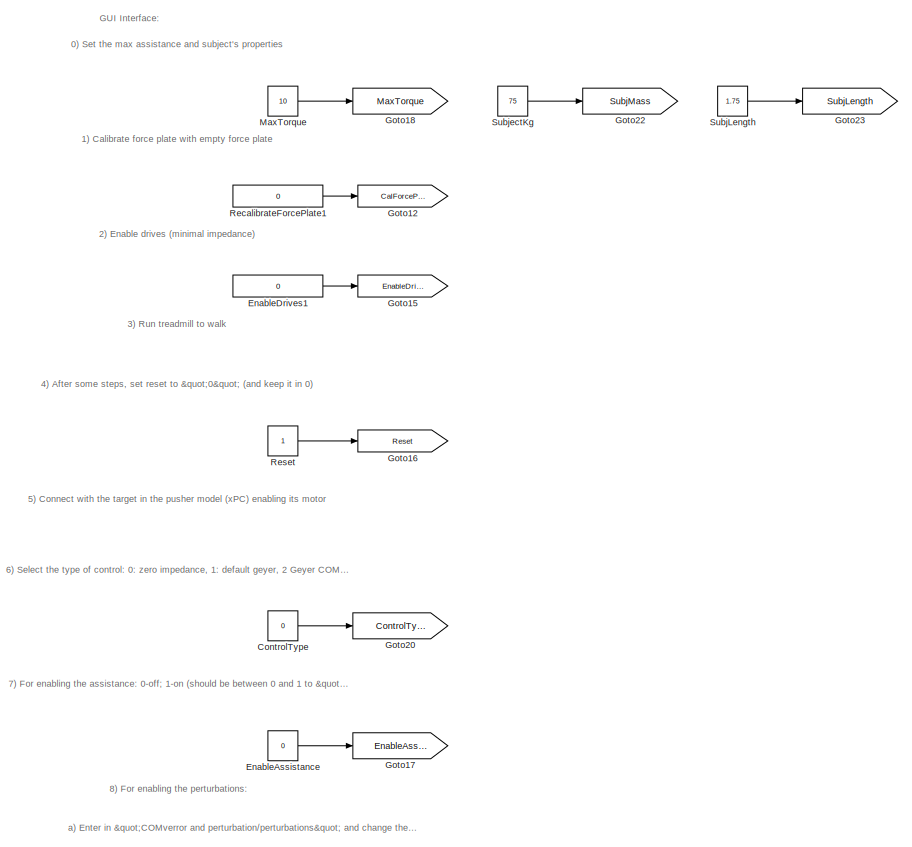
[diagram: root canvas - part 1/9, top center region]
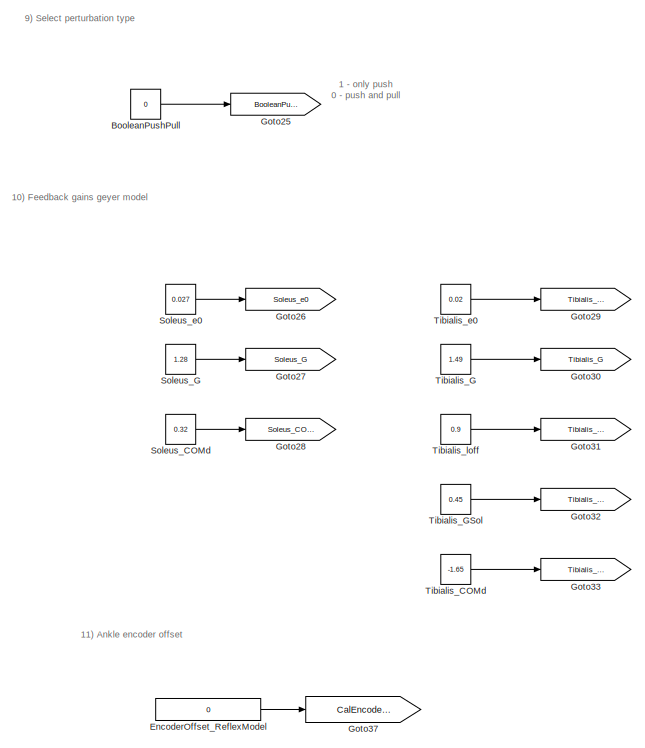
[diagram: root canvas - part 2/9, top right region]
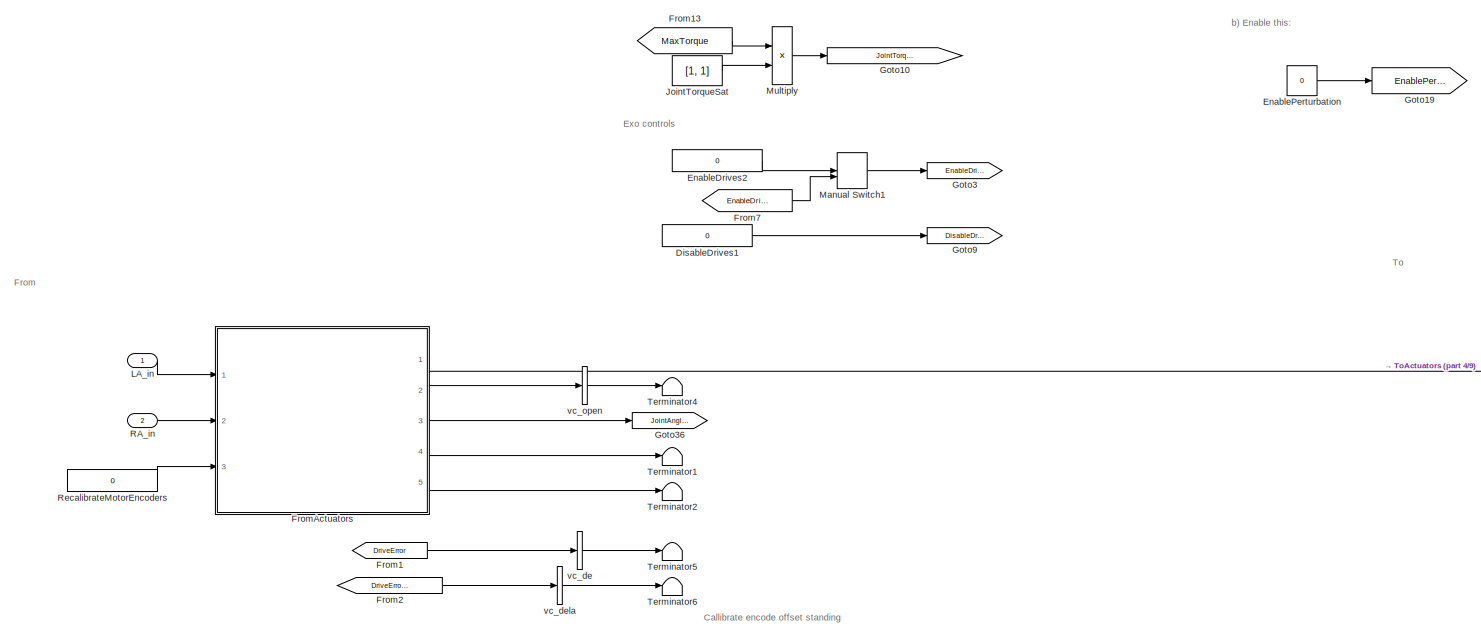
[diagram: root canvas - part 3/9, middle left region]
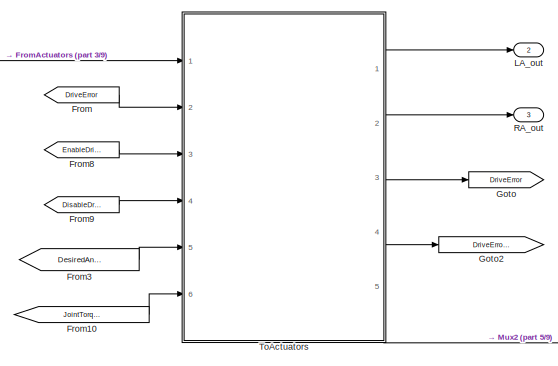
[diagram: root canvas - part 4/9, central region]
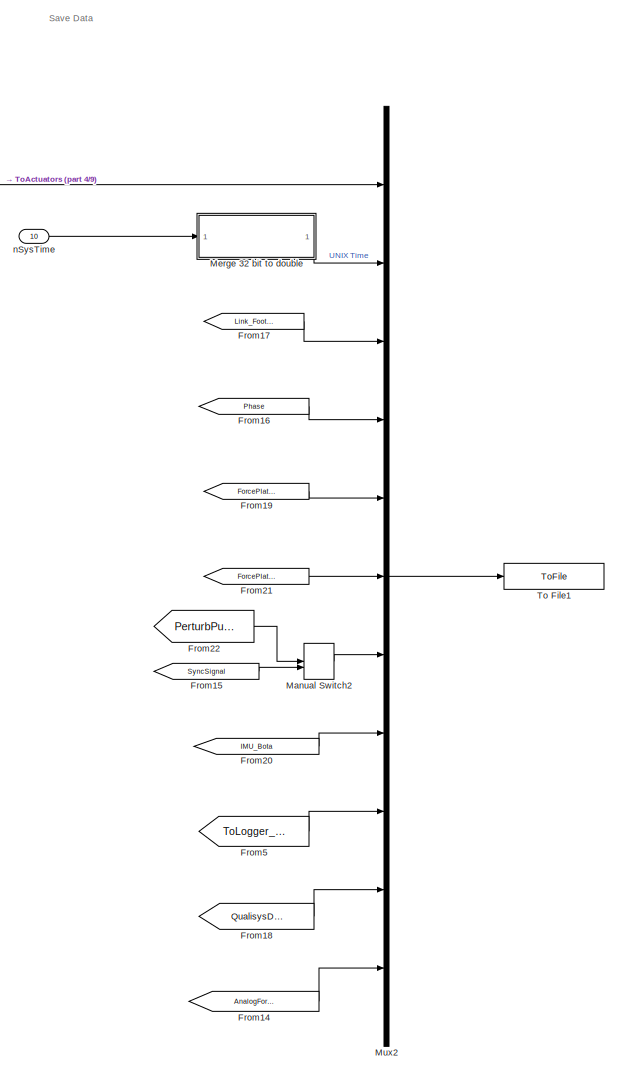
[diagram: root canvas - part 5/9, bottom right region]
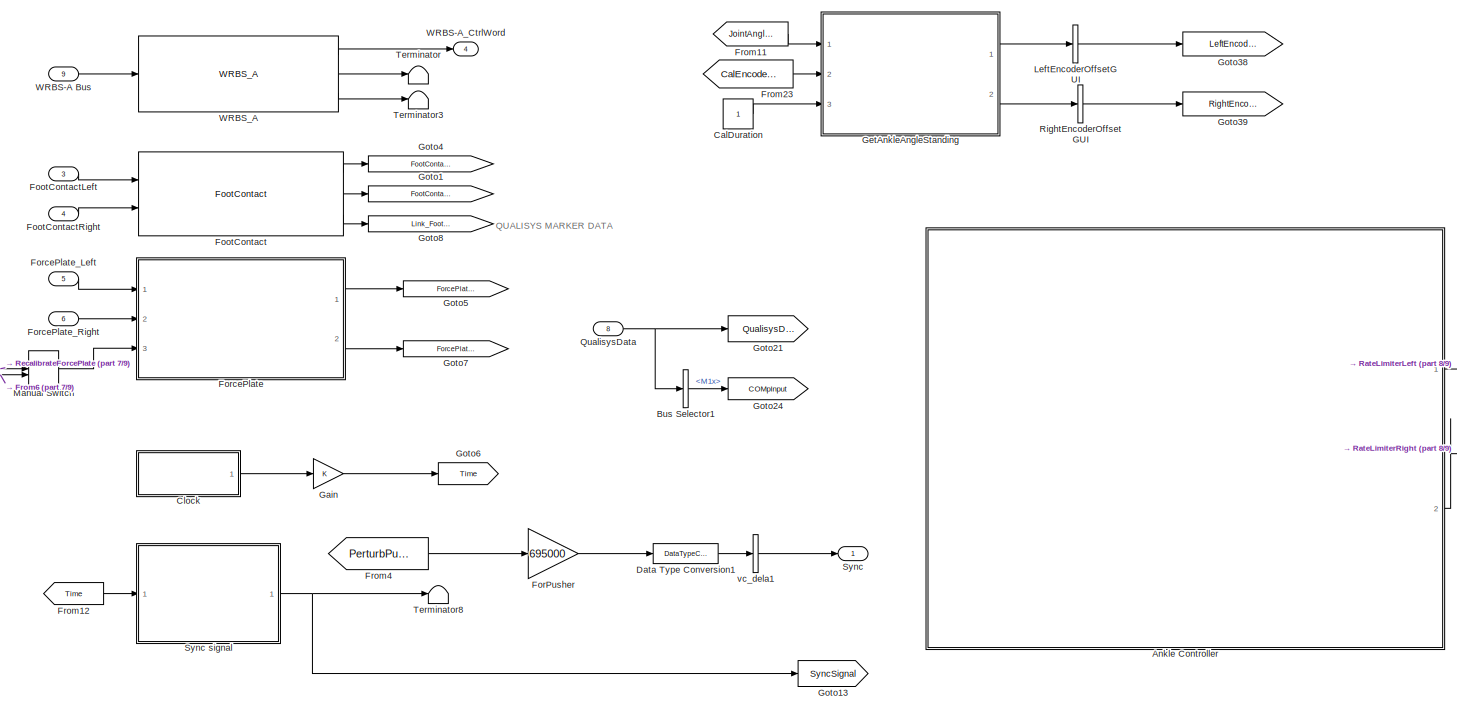
[diagram: root canvas - part 6/9, bottom left region]
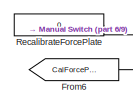
[diagram: root canvas - part 7/9, bottom left region]
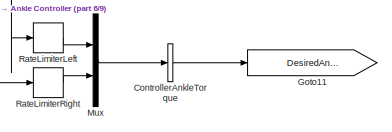
[diagram: root canvas - part 8/9, bottom center region]
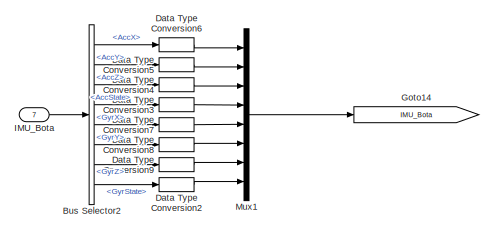
[diagram: root canvas - part 9/9, bottom left region]
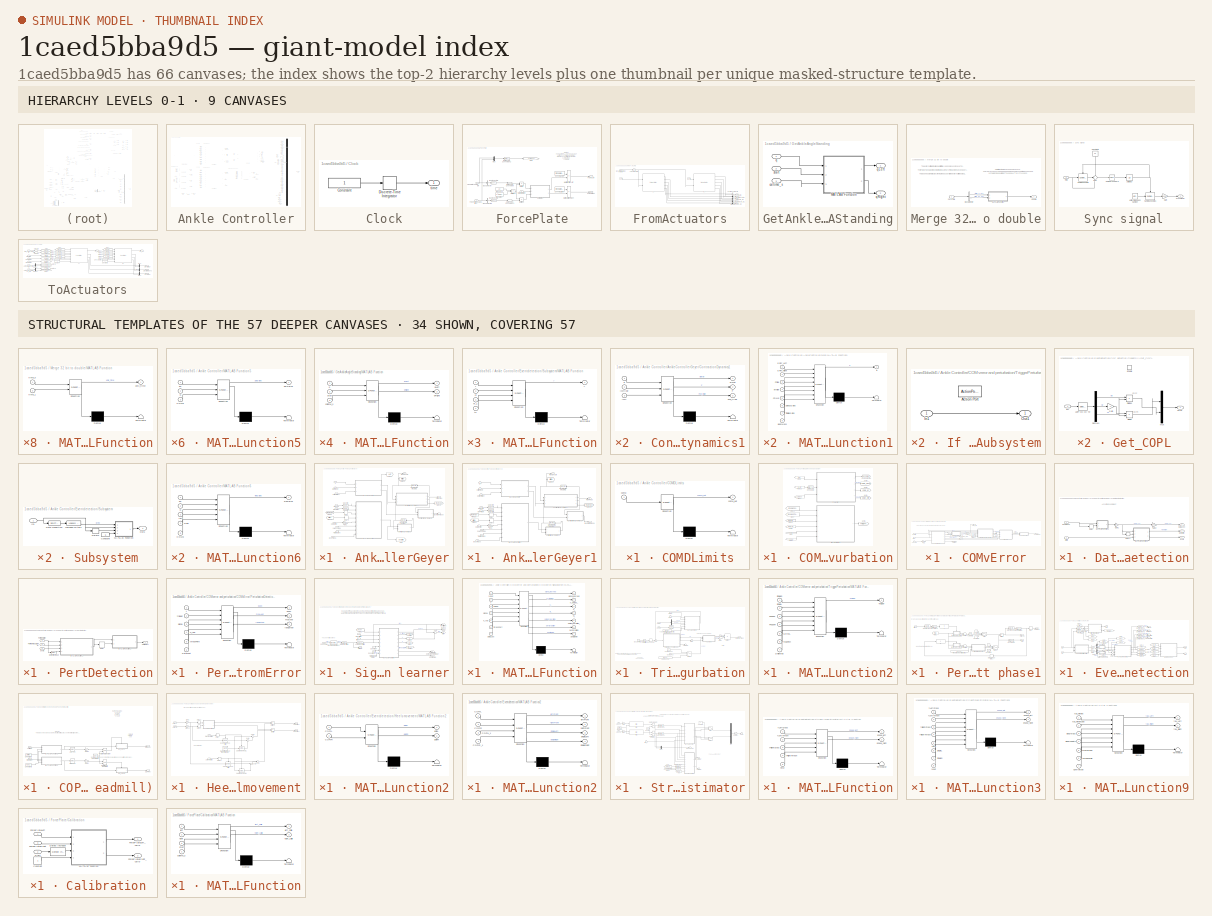
[diagram: thumbnail index - top-2 hierarchy levels (9 canvases) + 34 structural-template representatives of the remaining 57 canvases]
MODEL slx_1caed5bba9d5
KIND model
CONFIG AbsTol = auto
CONFIG EnableMultiTasking = off
CONFIG FixedStep = sampleTime
CONFIG MaxStep = auto
CONFIG MinStep = auto
CONFIG RelTol = 1e-3
CONFIG SampleTimeConstraint = Unconstrained
CONFIG Solver = FixedStepDiscrete
CONFIG SolverName = FixedStepDiscrete
CONFIG StartTime = 0.0
CONFIG StopTime = inf
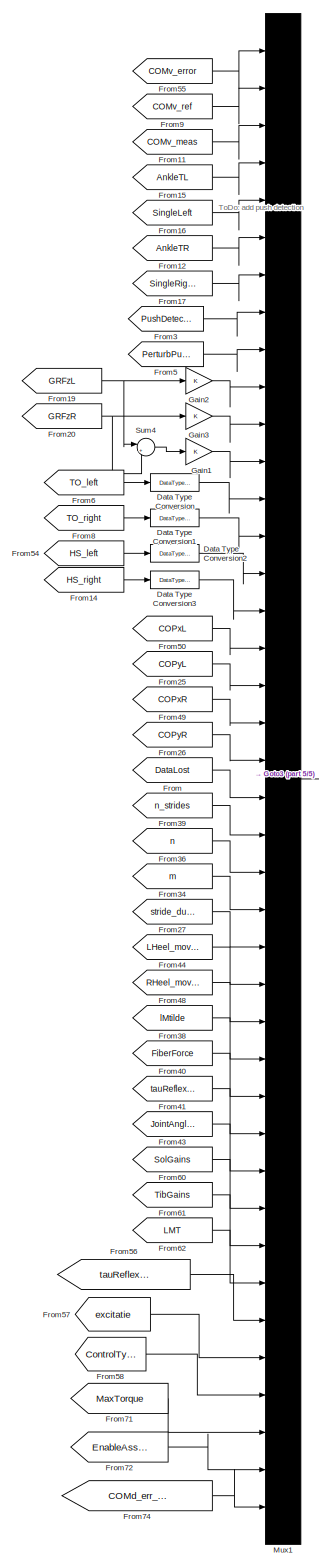
[diagram: Ankle Controller - part 1/5, right side, full height]
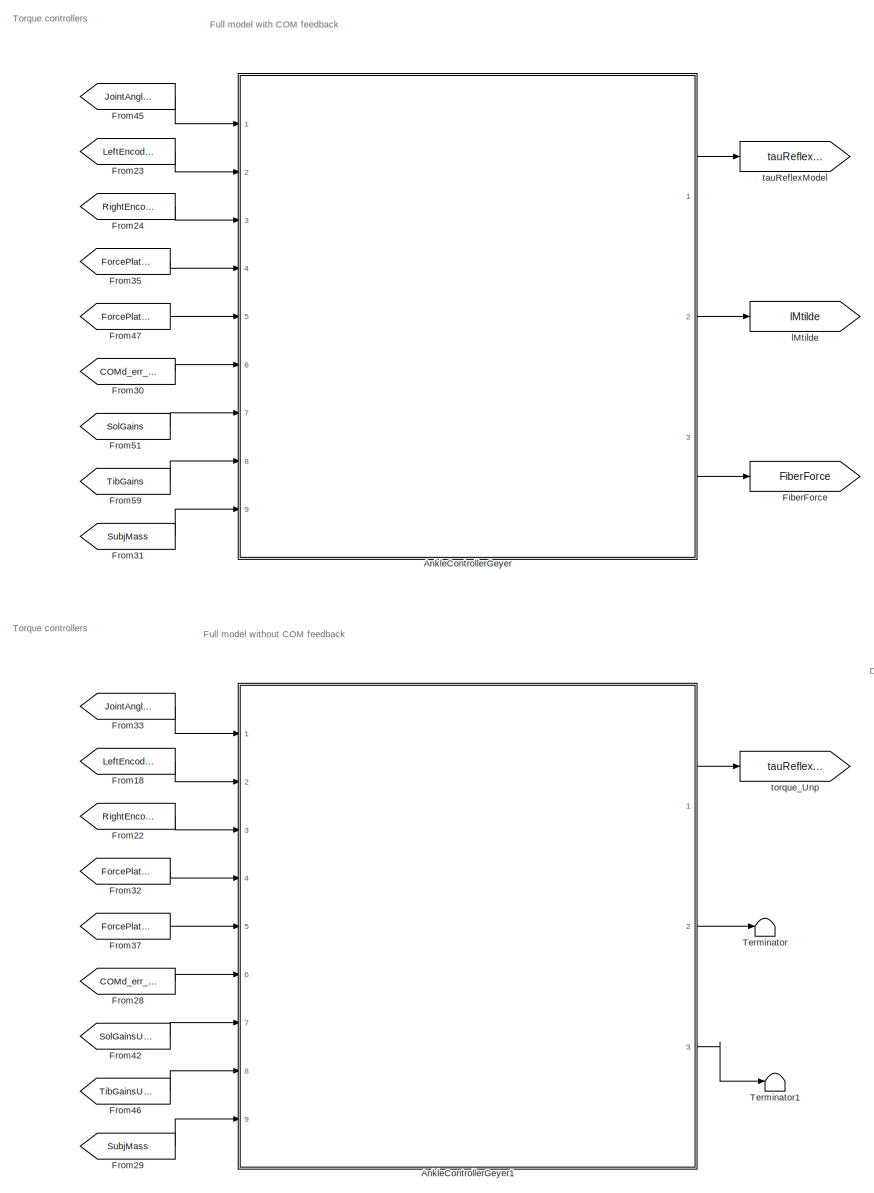
[diagram: Ankle Controller - part 2/5, middle left region]
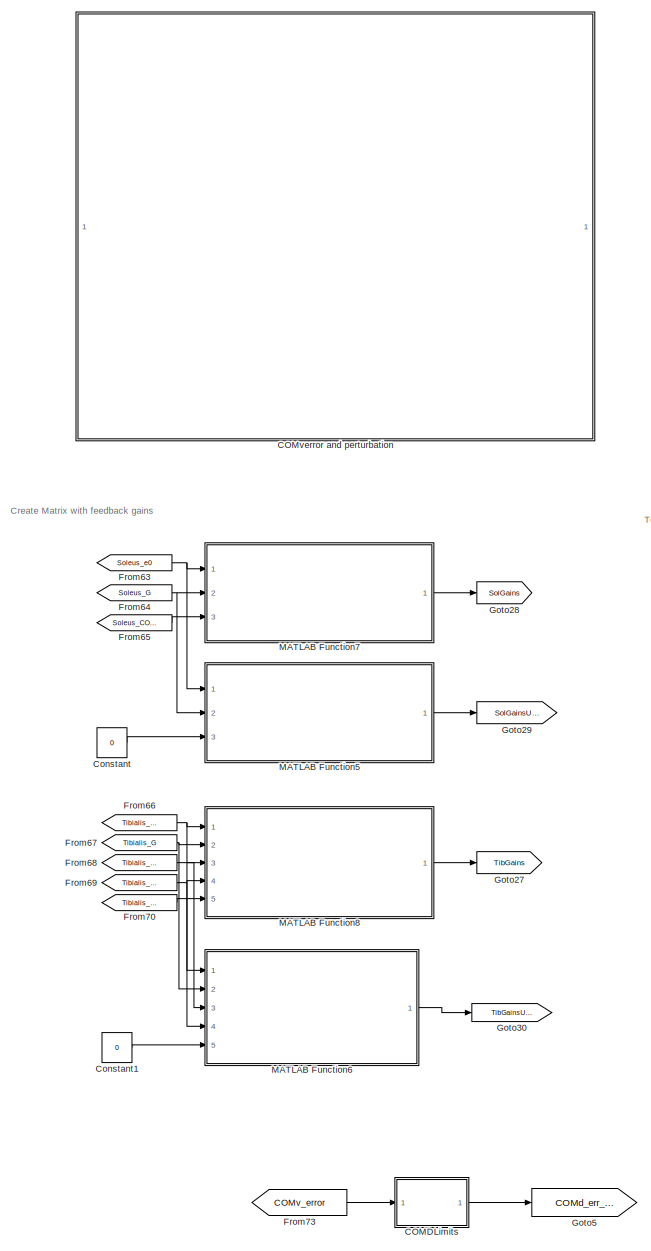
[diagram: Ankle Controller - part 3/5, middle left region]
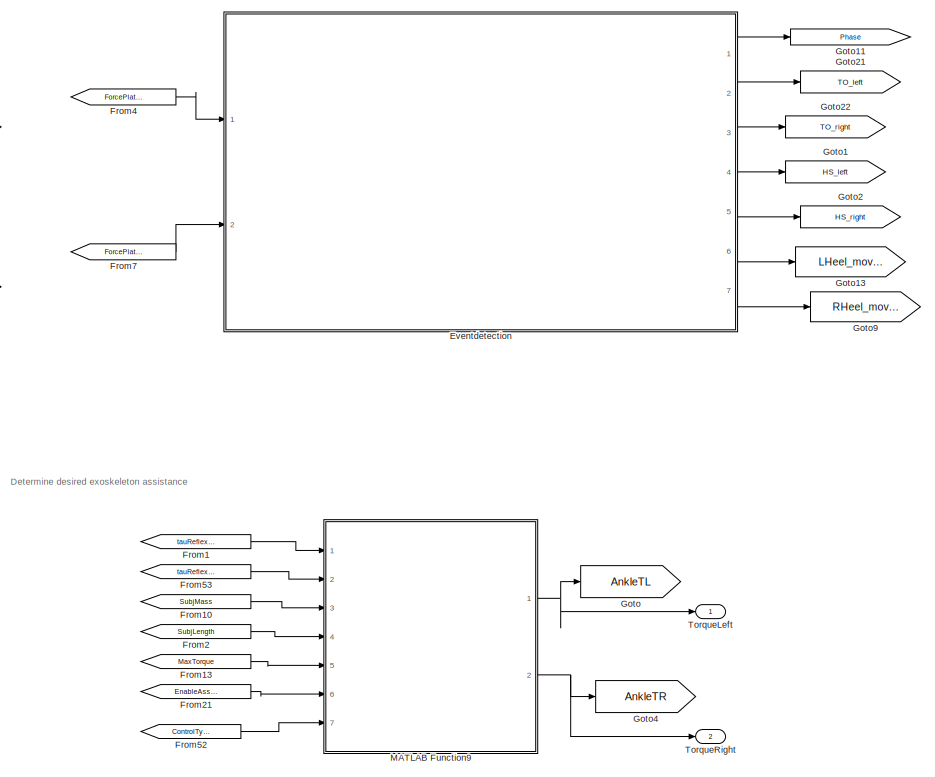
[diagram: Ankle Controller - part 4/5, central region]
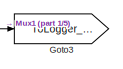
[diagram: Ankle Controller - part 5/5, middle right region]
BLOCK [SubSystem] Ankle Controller
  Ports = [0, 2]
  RequestExecContextInheritance = off
BLOCK [SubSystem] Ankle Controller/AnkleControllerGeyer
  Ports = [9, 3]
  RequestExecContextInheritance = off
BLOCK [SubSystem] Ankle Controller/AnkleControllerGeyer/ActivationDynamics1
  ErrorFcn = Stateflow.Translate.translate
  PermitHierarchicalResolution = ExplicitOnly
  Ports = [2, 1]
  RequestExecContextInheritance = off
  SFBlockType = MATLAB Function
  TreatAsAtomicUnit = on
BLOCK [Demux] Ankle Controller/AnkleControllerGeyer/ActivationDynamics1/ Demux 
  DisplayOption = bar
  Outputs = 1
  Ports = [1, 1]
BLOCK [S-Function] Ankle Controller/AnkleControllerGeyer/ActivationDynamics1/ SFunction 
  EnableBusSupport = on
  FunctionName = sf_sfun
  PortCounts = [2 2]
  Ports = [2, 2]
  SFcnIsStateOwnerBlock = off
  SFunctionDeploymentMode = off
  Tag = Stateflow S-Function WEankle_controllerMaarten 43
BLOCK [Terminator] Ankle Controller/AnkleControllerGeyer/ActivationDynamics1/ Terminator 
BLOCK [Inport] Ankle Controller/AnkleControllerGeyer/ActivationDynamics1/a
  IconDisplay = Port number
  Port = 2
BLOCK [Outport] Ankle Controller/AnkleControllerGeyer/ActivationDynamics1/dadt
  IconDisplay = Port number
  VectorParamsAs1DForOutWhenUnconnected = on
BLOCK [Inport] Ankle Controller/AnkleControllerGeyer/ActivationDynamics1/e
  IconDisplay = Port number
BLOCK [Inport] Ankle Controller/AnkleControllerGeyer/BodyMass
  IconDisplay = Port number
  Port = 9
BLOCK [Inport] Ankle Controller/AnkleControllerGeyer/COMd error
  IconDisplay = Port number
  Port = 6
BLOCK [SubSystem] Ankle Controller/AnkleControllerGeyer/ContractionDynamics1
  ErrorFcn = Stateflow.Translate.translate
  PermitHierarchicalResolution = ExplicitOnly
  Ports = [3, 3]
  RequestExecContextInheritance = off
  SFBlockType = MATLAB Function
  TreatAsAtomicUnit = on
BLOCK [Demux] Ankle Controller/AnkleControllerGeyer/ContractionDynamics1/ Demux 
  DisplayOption = bar
  Outputs = 1
  Ports = [1, 1]
BLOCK [S-Function] Ankle Controller/AnkleControllerGeyer/ContractionDynamics1/ SFunction 
  EnableBusSupport = on
  FunctionName = sf_sfun
  PortCounts = [3 4]
  Ports = [3, 4]
  SFcnIsStateOwnerBlock = off
  SFunctionDeploymentMode = off
  Tag = Stateflow S-Function WEankle_controllerMaarten 44
BLOCK [Terminator] Ankle Controller/AnkleControllerGeyer/ContractionDynamics1/ Terminator 
BLOCK [Outport] Ankle Controller/AnkleControllerGeyer/ContractionDynamics1/F
  IconDisplay = Port number
  Port = 2
  VectorParamsAs1DForOutWhenUnconnected = on
BLOCK [Outport] Ankle Controller/AnkleControllerGeyer/ContractionDynamics1/Fce_tilde
  IconDisplay = Port number
  Port = 3
  VectorParamsAs1DForOutWhenUnconnected = on
BLOCK [Inport] Ankle Controller/AnkleControllerGeyer/ContractionDynamics1/a
  IconDisplay = Port number
BLOCK [Outport] Ankle Controller/AnkleControllerGeyer/ContractionDynamics1/dlMdt
  IconDisplay = Port number
  VectorParamsAs1DForOutWhenUnconnected = on
BLOCK [Inport] Ankle Controller/AnkleControllerGeyer/ContractionDynamics1/lMT
  IconDisplay = Port number
  Port = 3
BLOCK [Inport] Ankle Controller/AnkleControllerGeyer/ContractionDynamics1/lMtilde
  IconDisplay = Port number
  Port = 2
BLOCK [SubSystem] Ankle Controller/AnkleControllerGeyer/ContractionDynamics2
  ErrorFcn = Stateflow.Translate.translate
  PermitHierarchicalResolution = ExplicitOnly
  Ports = [2, 1]
  RequestExecContextInheritance = off
  SFBlockType = MATLAB Function
  TreatAsAtomicUnit = on
BLOCK [Demux] Ankle Controller/AnkleControllerGeyer/ContractionDynamics2/ Demux 
  DisplayOption = bar
  Outputs = 1
  Ports = [1, 1]
BLOCK [S-Function] Ankle Controller/AnkleControllerGeyer/ContractionDynamics2/ SFunction 
  EnableBusSupport = on
  FunctionName = sf_sfun
  PortCounts = [2 2]
  Ports = [2, 2]
  SFcnIsStateOwnerBlock = off
  SFunctionDeploymentMode = off
  Tag = Stateflow S-Function WEankle_controllerMaarten 45
BLOCK [Terminator] Ankle Controller/AnkleControllerGeyer/ContractionDynamics2/ Terminator 
BLOCK [Inport] Ankle Controller/AnkleControllerGeyer/ContractionDynamics2/F
  IconDisplay = Port number
BLOCK [Inport] Ankle Controller/AnkleControllerGeyer/ContractionDynamics2/dM
  IconDisplay = Port number
  Port = 2
BLOCK [Outport] Ankle Controller/AnkleControllerGeyer/ContractionDynamics2/tauModel
  IconDisplay = Port number
  VectorParamsAs1DForOutWhenUnconnected = on
BLOCK [Delay] Ankle Controller/AnkleControllerGeyer/Delay
  DelayLength = 30
  InitialCondition = 0
  InputPortMap = u0
  Ports = [1, 1]
BLOCK [Delay] Ankle Controller/AnkleControllerGeyer/Delay3
  DelayLength = 30
  InitialCondition = 1
  InputPortMap = u0
  Ports = [1, 1]
BLOCK [DiscreteIntegrator] Ankle Controller/AnkleControllerGeyer/Discrete-Time Integrator
  ICPrevOutput = DiscIntNeverNeededParam
  ICPrevScaledInput = DiscIntNeverNeededParam
  InitialCondition = [0.2; 0.2; 0.2; 0.2]
  InitialConditionSetting = Auto
  Ports = [1, 1]
  SampleTime = -1
BLOCK [DiscreteIntegrator] Ankle Controller/AnkleControllerGeyer/Discrete-Time Integrator1
  ICPrevOutput = DiscIntNeverNeededParam
  ICPrevScaledInput = DiscIntNeverNeededParam
  InitialCondition = [0.7; 1; 0.7; 1]
  InitialConditionSetting = Auto
  LimitOutput = on
  LowerSaturationLimit = [0.5; 0.5; 0.5; 0.5]
  Ports = [1, 1]
  SampleTime = -1
  UpperSaturationLimit = [1.3; 1.3; 1.3; 1.3]
BLOCK [Outport] Ankle Controller/AnkleControllerGeyer/FiberForce
  IconDisplay = Port number
  Port = 3
BLOCK [Outport] Ankle Controller/AnkleControllerGeyer/FiberLength
  IconDisplay = Port number
  Port = 2
BLOCK [From] Ankle Controller/AnkleControllerGeyer/From28
  GotoTag = FiberForce
BLOCK [From] Ankle Controller/AnkleControllerGeyer/From29
  GotoTag = lMtilde
BLOCK [Inport] Ankle Controller/AnkleControllerGeyer/GRF Left
  IconDisplay = Port number
  Port = 4
BLOCK [Inport] Ankle Controller/AnkleControllerGeyer/GRF Right
  IconDisplay = Port number
  Port = 5
BLOCK [Goto] Ankle Controller/AnkleControllerGeyer/Goto
  GotoTag = excitatie
  TagVisibility = global
BLOCK [Goto] Ankle Controller/AnkleControllerGeyer/Goto19
  GotoTag = FiberForce
BLOCK [Goto] Ankle Controller/AnkleControllerGeyer/Goto20
  GotoTag = lMtilde
BLOCK [Goto] Ankle Controller/AnkleControllerGeyer/Goto26
  GotoTag = LMT
  TagVisibility = global
BLOCK [SubSystem] Ankle Controller/AnkleControllerGeyer/MATLAB Function1
  ErrorFcn = Stateflow.Translate.translate
  PermitHierarchicalResolution = ExplicitOnly
  Ports = [8, 1]
  RequestExecContextInheritance = off
  SFBlockType = MATLAB Function
  TreatAsAtomicUnit = on
BLOCK [Demux] Ankle Controller/AnkleControllerGeyer/MATLAB Function1/ Demux 
  DisplayOption = bar
  Outputs = 1
  Ports = [1, 1]
BLOCK [S-Function] Ankle Controller/AnkleControllerGeyer/MATLAB Function1/ SFunction 
  EnableBusSupport = on
  FunctionName = sf_sfun
  PortCounts = [8 2]
  Ports = [8, 2]
  SFcnIsStateOwnerBlock = off
  SFunctionDeploymentMode = off
  Tag = Stateflow S-Function WEankle_controllerMaarten 42
BLOCK [Terminator] Ankle Controller/AnkleControllerGeyer/MATLAB Function1/ Terminator 
BLOCK [Inport] Ankle Controller/AnkleControllerGeyer/MATLAB Function1/BodyMass
  IconDisplay = Port number
  Port = 8
BLOCK [Inport] Ankle Controller/AnkleControllerGeyer/MATLAB Function1/COMd
  IconDisplay = Port number
  Port = 5
BLOCK [Inport] Ankle Controller/AnkleControllerGeyer/MATLAB Function1/Ftilde
  IconDisplay = Port number
  Port = 3
BLOCK [Inport] Ankle Controller/AnkleControllerGeyer/MATLAB Function1/GRFy_Left
  IconDisplay = Port number
BLOCK [Inport] Ankle Controller/AnkleControllerGeyer/MATLAB Function1/GRFy_Right
  IconDisplay = Port number
  Port = 2
BLOCK [Inport] Ankle Controller/AnkleControllerGeyer/MATLAB Function1/SoleusGains
  IconDisplay = Port number
  Port = 6
BLOCK [Inport] Ankle Controller/AnkleControllerGeyer/MATLAB Function1/TibialisGains
  IconDisplay = Port number
  Port = 7
BLOCK [Outport] Ankle Controller/AnkleControllerGeyer/MATLAB Function1/e
  IconDisplay = Port number
  VectorParamsAs1DForOutWhenUnconnected = on
BLOCK [Inport] Ankle Controller/AnkleControllerGeyer/MATLAB Function1/lMtilde
  IconDisplay = Port number
  Port = 4
BLOCK [SubSystem] Ankle Controller/AnkleControllerGeyer/Muscle Geometry
  ErrorFcn = Stateflow.Translate.translate
  PermitHierarchicalResolution = ExplicitOnly
  Ports = [3, 2]
  RequestExecContextInheritance = off
  SFBlockType = MATLAB Function
  TreatAsAtomicUnit = on
BLOCK [Demux] Ankle Controller/AnkleControllerGeyer/Muscle Geometry/ Demux 
  DisplayOption = bar
  Outputs = 1
  Ports = [1, 1]
BLOCK [S-Function] Ankle Controller/AnkleControllerGeyer/Muscle Geometry/ SFunction 
  EnableBusSupport = on
  FunctionName = sf_sfun
  PortCounts = [3 3]
  Ports = [3, 3]
  SFcnIsStateOwnerBlock = off
  SFunctionDeploymentMode = off
  Tag = Stateflow S-Function WEankle_controllerMaarten 41
BLOCK [Terminator] Ankle Controller/AnkleControllerGeyer/Muscle Geometry/ Terminator 
BLOCK [Outport] Ankle Controller/AnkleControllerGeyer/Muscle Geometry/dM
  IconDisplay = Port number
  Port = 2
  VectorParamsAs1DForOutWhenUnconnected = on
BLOCK [Outport] Ankle Controller/AnkleControllerGeyer/Muscle Geometry/lMT
  IconDisplay = Port number
  VectorParamsAs1DForOutWhenUnconnected = on
BLOCK [Inport] Ankle Controller/AnkleControllerGeyer/Muscle Geometry/q
  IconDisplay = Port number
BLOCK [Inport] Ankle Controller/AnkleControllerGeyer/Muscle Geometry/qOffsetLeft
  IconDisplay = Port number
  Port = 2
BLOCK [Inport] Ankle Controller/AnkleControllerGeyer/Muscle Geometry/qOffsetRight
  IconDisplay = Port number
  Port = 3
BLOCK [Selector] Ankle Controller/AnkleControllerGeyer/Selector4
  IndexOptions = Index vector (dialog)
  Indices = 3
  InputPortWidth = 6
  OutputSizes = 1
  Ports = [1, 1]
BLOCK [Selector] Ankle Controller/AnkleControllerGeyer/Selector5
  IndexOptions = Index vector (dialog)
  Indices = 3
  InputPortWidth = 6
  OutputSizes = 1
  Ports = [1, 1]
BLOCK [Inport] Ankle Controller/AnkleControllerGeyer/SoleusGains
  IconDisplay = Port number
  Port = 7
BLOCK [Inport] Ankle Controller/AnkleControllerGeyer/TibialisGains
  IconDisplay = Port number
  Port = 8
BLOCK [Inport] Ankle Controller/AnkleControllerGeyer/q
  IconDisplay = Port number
BLOCK [Inport] Ankle Controller/AnkleControllerGeyer/qOffsetLeft
  IconDisplay = Port number
  Port = 2
BLOCK [Inport] Ankle Controller/AnkleControllerGeyer/qOffsetRight
  IconDisplay = Port number
  Port = 3
BLOCK [Outport] Ankle Controller/AnkleControllerGeyer/tauReflexModel
  IconDisplay = Port number
BLOCK [Gain] Ankle Controller/AnkleControllerGeyer/to m1
  Gain = 0.001
  OutDataTypeStr = Inherit: Inherit via internal rule
  ParamDataTypeStr = Inherit: Inherit via internal rule
  SaturateOnIntegerOverflow = off
BLOCK [SubSystem] Ankle Controller/AnkleControllerGeyer1
  Ports = [9, 3]
  RequestExecContextInheritance = off
BLOCK [SubSystem] Ankle Controller/AnkleControllerGeyer1/ActivationDynamics1
  ErrorFcn = Stateflow.Translate.translate
  PermitHierarchicalResolution = ExplicitOnly
  Ports = [2, 1]
  RequestExecContextInheritance = off
  SFBlockType = MATLAB Function
  TreatAsAtomicUnit = on
BLOCK [Demux] Ankle Controller/AnkleControllerGeyer1/ActivationDynamics1/ Demux 
  DisplayOption = bar
  Outputs = 1
  Ports = [1, 1]
BLOCK [S-Function] Ankle Controller/AnkleControllerGeyer1/ActivationDynamics1/ SFunction 
  EnableBusSupport = on
  FunctionName = sf_sfun
  PortCounts = [2 2]
  Ports = [2, 2]
  SFcnIsStateOwnerBlock = off
  SFunctionDeploymentMode = off
  Tag = Stateflow S-Function WEankle_controllerMaarten 39
BLOCK [Terminator] Ankle Controller/AnkleControllerGeyer1/ActivationDynamics1/ Terminator 
BLOCK [Inport] Ankle Controller/AnkleControllerGeyer1/ActivationDynamics1/a
  IconDisplay = Port number
  Port = 2
BLOCK [Outport] Ankle Controller/AnkleControllerGeyer1/ActivationDynamics1/dadt
  IconDisplay = Port number
  VectorParamsAs1DForOutWhenUnconnected = on
BLOCK [Inport] Ankle Controller/AnkleControllerGeyer1/ActivationDynamics1/e
  IconDisplay = Port number
BLOCK [Inport] Ankle Controller/AnkleControllerGeyer1/BodyMass
  IconDisplay = Port number
  Port = 9
BLOCK [Inport] Ankle Controller/AnkleControllerGeyer1/COMd error
  IconDisplay = Port number
  Port = 6
BLOCK [SubSystem] Ankle Controller/AnkleControllerGeyer1/ContractionDynamics1
  ErrorFcn = Stateflow.Translate.translate
  PermitHierarchicalResolution = ExplicitOnly
  Ports = [3, 3]
  RequestExecContextInheritance = off
  SFBlockType = MATLAB Function
  TreatAsAtomicUnit = on
BLOCK [Demux] Ankle Controller/AnkleControllerGeyer1/ContractionDynamics1/ Demux 
  DisplayOption = bar
  Outputs = 1
  Ports = [1, 1]
BLOCK [S-Function] Ankle Controller/AnkleControllerGeyer1/ContractionDynamics1/ SFunction 
  EnableBusSupport = on
  FunctionName = sf_sfun
  PortCounts = [3 4]
  Ports = [3, 4]
  SFcnIsStateOwnerBlock = off
  SFunctionDeploymentMode = off
  Tag = Stateflow S-Function WEankle_controllerMaarten 40
BLOCK [Terminator] Ankle Controller/AnkleControllerGeyer1/ContractionDynamics1/ Terminator 
BLOCK [Outport] Ankle Controller/AnkleControllerGeyer1/ContractionDynamics1/F
  IconDisplay = Port number
  Port = 2
  VectorParamsAs1DForOutWhenUnconnected = on
BLOCK [Outport] Ankle Controller/AnkleControllerGeyer1/ContractionDynamics1/Fce_tilde
  IconDisplay = Port number
  Port = 3
  VectorParamsAs1DForOutWhenUnconnected = on
BLOCK [Inport] Ankle Controller/AnkleControllerGeyer1/ContractionDynamics1/a
  IconDisplay = Port number
BLOCK [Outport] Ankle Controller/AnkleControllerGeyer1/ContractionDynamics1/dlMdt
  IconDisplay = Port number
  VectorParamsAs1DForOutWhenUnconnected = on
BLOCK [Inport] Ankle Controller/AnkleControllerGeyer1/ContractionDynamics1/lMT
  IconDisplay = Port number
  Port = 3
BLOCK [Inport] Ankle Controller/AnkleControllerGeyer1/ContractionDynamics1/lMtilde
  IconDisplay = Port number
  Port = 2
BLOCK [SubSystem] Ankle Controller/AnkleControllerGeyer1/ContractionDynamics2
  ErrorFcn = Stateflow.Translate.translate
  PermitHierarchicalResolution = ExplicitOnly
  Ports = [2, 1]
  RequestExecContextInheritance = off
  SFBlockType = MATLAB Function
  TreatAsAtomicUnit = on
BLOCK [Demux] Ankle Controller/AnkleControllerGeyer1/ContractionDynamics2/ Demux 
  DisplayOption = bar
  Outputs = 1
  Ports = [1, 1]
BLOCK [S-Function] Ankle Controller/AnkleControllerGeyer1/ContractionDynamics2/ SFunction 
  EnableBusSupport = on
  FunctionName = sf_sfun
  PortCounts = [2 2]
  Ports = [2, 2]
  SFcnIsStateOwnerBlock = off
  SFunctionDeploymentMode = off
  Tag = Stateflow S-Function WEankle_controllerMaarten 46
BLOCK [Terminator] Ankle Controller/AnkleControllerGeyer1/ContractionDynamics2/ Terminator 
BLOCK [Inport] Ankle Controller/AnkleControllerGeyer1/ContractionDynamics2/F
  IconDisplay = Port number
BLOCK [Inport] Ankle Controller/AnkleControllerGeyer1/ContractionDynamics2/dM
  IconDisplay = Port number
  Port = 2
BLOCK [Outport] Ankle Controller/AnkleControllerGeyer1/ContractionDynamics2/tauModel
  IconDisplay = Port number
  VectorParamsAs1DForOutWhenUnconnected = on
BLOCK [Delay] Ankle Controller/AnkleControllerGeyer1/Delay
  DelayLength = 30
  InitialCondition = 0
  InputPortMap = u0
  Ports = [1, 1]
BLOCK [Delay] Ankle Controller/AnkleControllerGeyer1/Delay3
  DelayLength = 30
  InitialCondition = 1
  InputPortMap = u0
  Ports = [1, 1]
BLOCK [DiscreteIntegrator] Ankle Controller/AnkleControllerGeyer1/Discrete-Time Integrator
  ICPrevOutput = DiscIntNeverNeededParam
  ICPrevScaledInput = DiscIntNeverNeededParam
  InitialCondition = [0.2; 0.2; 0.2; 0.2]
  InitialConditionSetting = Auto
  Ports = [1, 1]
  SampleTime = -1
BLOCK [DiscreteIntegrator] Ankle Controller/AnkleControllerGeyer1/Discrete-Time Integrator1
  ICPrevOutput = DiscIntNeverNeededParam
  ICPrevScaledInput = DiscIntNeverNeededParam
  InitialCondition = [0.7; 1; 0.7; 1]
  InitialConditionSetting = Auto
  LimitOutput = on
  LowerSaturationLimit = [0.5; 0.5; 0.5; 0.5]
  Ports = [1, 1]
  SampleTime = -1
  UpperSaturationLimit = [1.3; 1.3; 1.3; 1.3]
BLOCK [Outport] Ankle Controller/AnkleControllerGeyer1/FiberForce
  IconDisplay = Port number
  Port = 3
BLOCK [Outport] Ankle Controller/AnkleControllerGeyer1/FiberLength
  IconDisplay = Port number
  Port = 2
BLOCK [From] Ankle Controller/AnkleControllerGeyer1/From28
  GotoTag = FiberForce
BLOCK [From] Ankle Controller/AnkleControllerGeyer1/From29
  GotoTag = lMtilde
BLOCK [Inport] Ankle Controller/AnkleControllerGeyer1/GRF Left
  IconDisplay = Port number
  Port = 4
BLOCK [Inport] Ankle Controller/AnkleControllerGeyer1/GRF Right
  IconDisplay = Port number
  Port = 5
BLOCK [Goto] Ankle Controller/AnkleControllerGeyer1/Goto19
  GotoTag = FiberForce
BLOCK [Goto] Ankle Controller/AnkleControllerGeyer1/Goto20
  GotoTag = lMtilde
BLOCK [SubSystem] Ankle Controller/AnkleControllerGeyer1/MATLAB Function1
  ErrorFcn = Stateflow.Translate.translate
  PermitHierarchicalResolution = ExplicitOnly
  Ports = [8, 1]
  RequestExecContextInheritance = off
  SFBlockType = MATLAB Function
  TreatAsAtomicUnit = on
BLOCK [Demux] Ankle Controller/AnkleControllerGeyer1/MATLAB Function1/ Demux 
  DisplayOption = bar
  Outputs = 1
  Ports = [1, 1]
BLOCK [S-Function] Ankle Controller/AnkleControllerGeyer1/MATLAB Function1/ SFunction 
  EnableBusSupport = on
  FunctionName = sf_sfun
  PortCounts = [8 2]
  Ports = [8, 2]
  SFcnIsStateOwnerBlock = off
  SFunctionDeploymentMode = off
  Tag = Stateflow S-Function WEankle_controllerMaarten 47
BLOCK [Terminator] Ankle Controller/AnkleControllerGeyer1/MATLAB Function1/ Terminator 
BLOCK [Inport] Ankle Controller/AnkleControllerGeyer1/MATLAB Function1/BodyMass
  IconDisplay = Port number
  Port = 8
BLOCK [Inport] Ankle Controller/AnkleControllerGeyer1/MATLAB Function1/COMd
  IconDisplay = Port number
  Port = 5
BLOCK [Inport] Ankle Controller/AnkleControllerGeyer1/MATLAB Function1/Ftilde
  IconDisplay = Port number
  Port = 3
BLOCK [Inport] Ankle Controller/AnkleControllerGeyer1/MATLAB Function1/GRFy_Left
  IconDisplay = Port number
BLOCK [Inport] Ankle Controller/AnkleControllerGeyer1/MATLAB Function1/GRFy_Right
  IconDisplay = Port number
  Port = 2
BLOCK [Inport] Ankle Controller/AnkleControllerGeyer1/MATLAB Function1/SoleusGains
  IconDisplay = Port number
  Port = 6
BLOCK [Inport] Ankle Controller/AnkleControllerGeyer1/MATLAB Function1/TibialisGains
  IconDisplay = Port number
  Port = 7
BLOCK [Outport] Ankle Controller/AnkleControllerGeyer1/MATLAB Function1/e
  IconDisplay = Port number
  VectorParamsAs1DForOutWhenUnconnected = on
BLOCK [Inport] Ankle Controller/AnkleControllerGeyer1/MATLAB Function1/lMtilde
  IconDisplay = Port number
  Port = 4
BLOCK [SubSystem] Ankle Controller/AnkleControllerGeyer1/Muscle Geometry
  ErrorFcn = Stateflow.Translate.translate
  PermitHierarchicalResolution = ExplicitOnly
  Ports = [3, 2]
  RequestExecContextInheritance = off
  SFBlockType = MATLAB Function
  TreatAsAtomicUnit = on
BLOCK [Demux] Ankle Controller/AnkleControllerGeyer1/Muscle Geometry/ Demux 
  DisplayOption = bar
  Outputs = 1
  Ports = [1, 1]
BLOCK [S-Function] Ankle Controller/AnkleControllerGeyer1/Muscle Geometry/ SFunction 
  EnableBusSupport = on
  FunctionName = sf_sfun
  PortCounts = [3 3]
  Ports = [3, 3]
  SFcnIsStateOwnerBlock = off
  SFunctionDeploymentMode = off
  Tag = Stateflow S-Function WEankle_controllerMaarten 48
BLOCK [Terminator] Ankle Controller/AnkleControllerGeyer1/Muscle Geometry/ Terminator 
BLOCK [Outport] Ankle Controller/AnkleControllerGeyer1/Muscle Geometry/dM
  IconDisplay = Port number
  Port = 2
  VectorParamsAs1DForOutWhenUnconnected = on
BLOCK [Outport] Ankle Controller/AnkleControllerGeyer1/Muscle Geometry/lMT
  IconDisplay = Port number
  VectorParamsAs1DForOutWhenUnconnected = on
BLOCK [Inport] Ankle Controller/AnkleControllerGeyer1/Muscle Geometry/q
  IconDisplay = Port number
BLOCK [Inport] Ankle Controller/AnkleControllerGeyer1/Muscle Geometry/qOffsetLeft
  IconDisplay = Port number
  Port = 2
BLOCK [Inport] Ankle Controller/AnkleControllerGeyer1/Muscle Geometry/qOffsetRight
  IconDisplay = Port number
  Port = 3
BLOCK [Selector] Ankle Controller/AnkleControllerGeyer1/Selector4
  IndexOptions = Index vector (dialog)
  Indices = 3
  InputPortWidth = 6
  OutputSizes = 1
  Ports = [1, 1]
BLOCK [Selector] Ankle Controller/AnkleControllerGeyer1/Selector5
  IndexOptions = Index vector (dialog)
  Indices = 3
  InputPortWidth = 6
  OutputSizes = 1
  Ports = [1, 1]
BLOCK [Inport] Ankle Controller/AnkleControllerGeyer1/SoleusGains
  IconDisplay = Port number
  Port = 7
BLOCK [Inport] Ankle Controller/AnkleControllerGeyer1/TibialisGains
  IconDisplay = Port number
  Port = 8
BLOCK [Inport] Ankle Controller/AnkleControllerGeyer1/q
  IconDisplay = Port number
BLOCK [Inport] Ankle Controller/AnkleControllerGeyer1/qOffsetLeft
  IconDisplay = Port number
  Port = 2
BLOCK [Inport] Ankle Controller/AnkleControllerGeyer1/qOffsetRight
  IconDisplay = Port number
  Port = 3
BLOCK [Outport] Ankle Controller/AnkleControllerGeyer1/tauReflexModel
  IconDisplay = Port number
BLOCK [Gain] Ankle Controller/AnkleControllerGeyer1/to m1
  Gain = 0.001
  OutDataTypeStr = Inherit: Inherit via internal rule
  ParamDataTypeStr = Inherit: Inherit via internal rule
  SaturateOnIntegerOverflow = off
BLOCK [SubSystem] Ankle Controller/COMDLimits
  ErrorFcn = Stateflow.Translate.translate
  PermitHierarchicalResolution = ExplicitOnly
  Ports = [1, 1]
  RequestExecContextInheritance = off
  SFBlockType = MATLAB Function
  TreatAsAtomicUnit = on
BLOCK [Demux] Ankle Controller/COMDLimits/ Demux 
  Outputs = 1
  Ports = [1, 1]
BLOCK [S-Function] Ankle Controller/COMDLimits/ SFunction 
  EnableBusSupport = on
  FunctionName = sf_sfun
  PortCounts = [1 2]
  Ports = [1, 2]
  SFcnIsStateOwnerBlock = off
  SFunctionDeploymentMode = off
  Tag = Stateflow S-Function WEankle_controllerMaarten 11
BLOCK [Terminator] Ankle Controller/COMDLimits/ Terminator 
BLOCK [Inport] Ankle Controller/COMDLimits/comd
  IconDisplay = Port number
BLOCK [Outport] Ankle Controller/COMDLimits/comd_out
  IconDisplay = Port number
BLOCK [SubSystem] Ankle Controller/COMverror and perturbation
  Ports = []
  RequestExecContextInheritance = off
BLOCK [SubSystem] Ankle Controller/COMverror and perturbation/COMvError
  Ports = [3, 4]
  RequestExecContextInheritance = off
BLOCK [Outport] Ankle Controller/COMverror and perturbation/COMvError/COMv_error
  IconDisplay = Port number
  Port = 4
BLOCK [Outport] Ankle Controller/COMverror and perturbation/COMvError/COMv_meas
  IconDisplay = Port number
  Port = 2
BLOCK [Outport] Ankle Controller/COMverror and perturbation/COMvError/COMv_ref
  IconDisplay = Port number
  Port = 3
BLOCK [Constant] Ankle Controller/COMverror and perturbation/COMvError/Constant
  Value = 5
BLOCK [Constant] Ankle Controller/COMverror and perturbation/COMvError/Constant1
  Value = 1.5
BLOCK [SubSystem] Ankle Controller/COMverror and perturbation/COMvError/Data lost detection
  Ports = [2, 3]
  RequestExecContextInheritance = off
BLOCK [Outport] Ankle Controller/COMverror and perturbation/COMvError/Data lost detection/DataLost
  IconDisplay = Port number
  Port = 2
BLOCK [Delay] Ankle Controller/COMverror and perturbation/COMvError/Data lost detection/Delay
  DelayLength = 1
  InputPortMap = u0
  Ports = [1, 1]
BLOCK [Delay] Ankle Controller/COMverror and perturbation/COMvError/Data lost detection/Delay1
  DelayLength = 1
  InputPortMap = u0
  Ports = [1, 1]
BLOCK [Inport] Ankle Controller/COMverror and perturbation/COMvError/Data lost detection/ErrorIn
  IconDisplay = Port number
  Port = 2
BLOCK [Gain] Ankle Controller/COMverror and perturbation/COMvError/Data lost detection/Gain1
  Gain = 0
  OutDataTypeStr = Inherit: Inherit via internal rule
  ParamDataTypeStr = Inherit: Inherit via internal rule
  SaturateOnIntegerOverflow = off
BLOCK [Gain] Ankle Controller/COMverror and perturbation/COMvError/Data lost detection/Gain2
  Gain = 100
  OutDataTypeStr = Inherit: Inherit via internal rule
  ParamDataTypeStr = Inherit: Inherit via internal rule
  SaturateOnIntegerOverflow = off
BLOCK [Inport] Ankle Controller/COMverror and perturbation/COMvError/Data lost detection/Input signal
  IconDisplay = Port number
BLOCK [SubSystem] Ankle Controller/COMverror and perturbation/COMvError/Data lost detection/MATLAB Function1
  ErrorFcn = Stateflow.Translate.translate
  PermitHierarchicalResolution = ExplicitOnly
  Ports = [2, 1]
  RequestExecContextInheritance = off
  SFBlockType = MATLAB Function
  TreatAsAtomicUnit = on
BLOCK [Demux] Ankle Controller/COMverror and perturbation/COMvError/Data lost detection/MATLAB Function1/ Demux 
  DisplayOption = bar
  Outputs = 1
  Ports = [1, 1]
BLOCK [S-Function] Ankle Controller/COMverror and perturbation/COMvError/Data lost detection/MATLAB Function1/ SFunction 
  EnableBusSupport = on
  FunctionName = sf_sfun
  PortCounts = [2 2]
  Ports = [2, 2]
  SFcnIsStateOwnerBlock = off
  SFunctionDeploymentMode = off
  Tag = Stateflow S-Function WEankle_controllerMaarten 17
BLOCK [Terminator] Ankle Controller/COMverror and perturbation/COMvError/Data lost detection/MATLAB Function1/ Terminator 
BLOCK [Inport] Ankle Controller/COMverror and perturbation/COMvError/Data lost detection/MATLAB Function1/u
  IconDisplay = Port number
BLOCK [Inport] Ankle Controller/COMverror and perturbation/COMvError/Data lost detection/MATLAB Function1/u_1
  IconDisplay = Port number
  Port = 2
BLOCK [Outport] Ankle Controller/COMverror and perturbation/COMvError/Data lost detection/MATLAB Function1/y
  IconDisplay = Port number
BLOCK [SubSystem] Ankle Controller/COMverror and perturbation/COMvError/Data lost detection/MATLAB Function2
  ErrorFcn = Stateflow.Translate.translate
  PermitHierarchicalResolution = ExplicitOnly
  Ports = [3, 2]
  RequestExecContextInheritance = off
  SFBlockType = MATLAB Function
  TreatAsAtomicUnit = on
BLOCK [Demux] Ankle Controller/COMverror and perturbation/COMvError/Data lost detection/MATLAB Function2/ Demux 
  DisplayOption = bar
  Outputs = 1
  Ports = [1, 1]
BLOCK [S-Function] Ankle Controller/COMverror and perturbation/COMvError/Data lost detection/MATLAB Function2/ SFunction 
  EnableBusSupport = on
  FunctionName = sf_sfun
  PortCounts = [3 3]
  Ports = [3, 3]
  SFcnIsStateOwnerBlock = off
  SFunctionDeploymentMode = off
  Tag = Stateflow S-Function WEankle_controllerMaarten 18
BLOCK [Terminator] Ankle Controller/COMverror and perturbation/COMvError/Data lost detection/MATLAB Function2/ Terminator 
BLOCK [Inport] Ankle Controller/COMverror and perturbation/COMvError/Data lost detection/MATLAB Function2/DataLost
  IconDisplay = Port number
BLOCK [Inport] Ankle Controller/COMverror and perturbation/COMvError/Data lost detection/MATLAB Function2/DataLost_1
  IconDisplay = Port number
  Port = 2
BLOCK [Inport] Ankle Controller/COMverror and perturbation/COMvError/Data lost detection/MATLAB Function2/ErrorIn
  IconDisplay = Port number
  Port = 3
BLOCK [Outport] Ankle Controller/COMverror and perturbation/COMvError/Data lost detection/MATLAB Function2/ErrorOut
  IconDisplay = Port number
BLOCK [Outport] Ankle Controller/COMverror and perturbation/COMvError/Data lost detection/MATLAB Function2/avoid
  IconDisplay = Port number
  Port = 2
BLOCK [Outport] Ankle Controller/COMverror and perturbation/COMvError/Data lost detection/New error
  IconDisplay = Port number
BLOCK [Outport] Ankle Controller/COMverror and perturbation/COMvError/Data lost detection/avoid
  IconDisplay = Port number
  Port = 3
BLOCK [From] Ankle Controller/COMverror and perturbation/COMvError/From1
  GotoTag = DataLost
  TagVisibility = global
BLOCK [From] Ankle Controller/COMverror and perturbation/COMvError/From2
  GotoTag = ShutDown
  TagVisibility = global
BLOCK [Goto] Ankle Controller/COMverror and perturbation/COMvError/Goto
  GotoTag = DataLost
  TagVisibility = global
BLOCK [Goto] Ankle Controller/COMverror and perturbation/COMvError/Goto1
  GotoTag = ShutDown
  TagVisibility = global
BLOCK [SubSystem] Ankle Controller/COMverror and perturbation/COMvError/MATLAB Function1
  ErrorFcn = Stateflow.Translate.translate
  PermitHierarchicalResolution = ExplicitOnly
  Ports = [2, 1]
  RequestExecContextInheritance = off
  SFBlockType = MATLAB Function
  TreatAsAtomicUnit = on
BLOCK [Demux] Ankle Controller/COMverror and perturbation/COMvError/MATLAB Function1/ Demux 
  DisplayOption = bar
  Outputs = 1
  Ports = [1, 1]
BLOCK [S-Function] Ankle Controller/COMverror and perturbation/COMvError/MATLAB Function1/ SFunction 
  EnableBusSupport = on
  FunctionName = sf_sfun
  PortCounts = [2 2]
  Ports = [2, 2]
  SFcnIsStateOwnerBlock = off
  SFunctionDeploymentMode = off
  Tag = Stateflow S-Function WEankle_controllerMaarten 15
BLOCK [Terminator] Ankle Controller/COMverror and perturbation/COMvError/MATLAB Function1/ Terminator 
BLOCK [Inport] Ankle Controller/COMverror and perturbation/COMvError/MATLAB Function1/PertDetect
  IconDisplay = Port number
  Port = 2
BLOCK [Inport] Ankle Controller/COMverror and perturbation/COMvError/MATLAB Function1/ShutDown
  IconDisplay = Port number
BLOCK [Outport] Ankle Controller/COMverror and perturbation/COMvError/MATLAB Function1/TriggerPush
  IconDisplay = Port number
BLOCK [SubSystem] Ankle Controller/COMverror and perturbation/COMvError/PertDetection
  Ports = [3, 1]
  RequestExecContextInheritance = off
BLOCK [Delay] Ankle Controller/COMverror and perturbation/COMvError/PertDetection/Delay
  DelayLength = 1
  InputPortMap = u0
  Ports = [1, 1]
BLOCK [Reference] Ankle Controller/COMverror and perturbation/COMvError/PertDetection/Detect Increase  REF=simulink/Logic and Bit
Operations/Detect
Increase
  Ports = [1, 1]
  SourceBlock = simulink/Logic and Bit\nOperations/Detect\nIncrease
  SourceProductBaseCode = SL
  SourceType = Detect Increase
BLOCK [SubSystem] Ankle Controller/COMverror and perturbation/COMvError/PertDetection/MATLAB Function1
  ErrorFcn = Stateflow.Translate.translate
  PermitHierarchicalResolution = ExplicitOnly
  Ports = [4, 1]
  RequestExecContextInheritance = off
  SFBlockType = MATLAB Function
  TreatAsAtomicUnit = on
BLOCK [Demux] Ankle Controller/COMverror and perturbation/COMvError/PertDetection/MATLAB Function1/ Demux 
  DisplayOption = bar
  Outputs = 1
  Ports = [1, 1]
BLOCK [S-Function] Ankle Controller/COMverror and perturbation/COMvError/PertDetection/MATLAB Function1/ SFunction 
  EnableBusSupport = on
  FunctionName = sf_sfun
  PortCounts = [4 2]
  Ports = [4, 2]
  SFcnIsStateOwnerBlock = off
  SFunctionDeploymentMode = off
  Tag = Stateflow S-Function WEankle_controllerMaarten 20
BLOCK [Terminator] Ankle Controller/COMverror and perturbation/COMvError/PertDetection/MATLAB Function1/ Terminator 
BLOCK [Outport] Ankle Controller/COMverror and perturbation/COMvError/PertDetection/MATLAB Function1/PertDetect
  IconDisplay = Port number
BLOCK [Inport] Ankle Controller/COMverror and perturbation/COMvError/PertDetection/MATLAB Function1/PertFromError
  IconDisplay = Port number
BLOCK [Inport] Ankle Controller/COMverror and perturbation/COMvError/PertDetection/MATLAB Function1/PertFromInput
  IconDisplay = Port number
  Port = 2
BLOCK [Inport] Ankle Controller/COMverror and perturbation/COMvError/PertDetection/MATLAB Function1/StartPertFromError
  IconDisplay = Port number
  Port = 4
BLOCK [Inport] Ankle Controller/COMverror and perturbation/COMvError/PertDetection/MATLAB Function1/avoid
  IconDisplay = Port number
  Port = 3
BLOCK [SubSystem] Ankle Controller/COMverror and perturbation/COMvError/PertDetection/MATLAB Function2
  ErrorFcn = Stateflow.Translate.translate
  PermitHierarchicalResolution = ExplicitOnly
  Ports = [2, 1]
  RequestExecContextInheritance = off
  SFBlockType = MATLAB Function
  TreatAsAtomicUnit = on
BLOCK [Demux] Ankle Controller/COMverror and perturbation/COMvError/PertDetection/MATLAB Function2/ Demux 
  DisplayOption = bar
  Outputs = 1
  Ports = [1, 1]
BLOCK [S-Function] Ankle Controller/COMverror and perturbation/COMvError/PertDetection/MATLAB Function2/ SFunction 
  EnableBusSupport = on
  FunctionName = sf_sfun
  PortCounts = [2 2]
  Ports = [2, 2]
  SFcnIsStateOwnerBlock = off
  SFunctionDeploymentMode = off
  Tag = Stateflow S-Function WEankle_controllerMaarten 21
BLOCK [Terminator] Ankle Controller/COMverror and perturbation/COMvError/PertDetection/MATLAB Function2/ Terminator 
BLOCK [Inport] Ankle Controller/COMverror and perturbation/COMvError/PertDetection/MATLAB Function2/Pert
  IconDisplay = Port number
BLOCK [Outport] Ankle Controller/COMverror and perturbation/COMvError/PertDetection/MATLAB Function2/PertDetect
  IconDisplay = Port number
BLOCK [Inport] Ankle Controller/COMverror and perturbation/COMvError/PertDetection/MATLAB Function2/Pert_1
  IconDisplay = Port number
  Port = 2
BLOCK [Outport] Ankle Controller/COMverror and perturbation/COMvError/PertDetection/PertDetect
  IconDisplay = Port number
BLOCK [Inport] Ankle Controller/COMverror and perturbation/COMvError/PertDetection/PertFromError
  IconDisplay = Port number
BLOCK [Inport] Ankle Controller/COMverror and perturbation/COMvError/PertDetection/PertFromInputSignal
  IconDisplay = Port number
  Port = 2
BLOCK [Inport] Ankle Controller/COMverror and perturbation/COMvError/PertDetection/avoid
  IconDisplay = Port number
  Port = 3
BLOCK [SubSystem] Ankle Controller/COMverror and perturbation/COMvError/PerturbationDetectionFromError
  ErrorFcn = Stateflow.Translate.translate
  PermitHierarchicalResolution = ExplicitOnly
  Ports = [6, 3]
  RequestExecContextInheritance = off
  SFBlockType = MATLAB Function
  TreatAsAtomicUnit = on
BLOCK [Demux] Ankle Controller/COMverror and perturbation/COMvError/PerturbationDetectionFromError/ Demux 
  DisplayOption = bar
  Outputs = 1
  Ports = [1, 1]
BLOCK [S-Function] Ankle Controller/COMverror and perturbation/COMvError/PerturbationDetectionFromError/ SFunction 
  EnableBusSupport = on
  FunctionName = sf_sfun
  PortCounts = [6 4]
  Ports = [6, 4]
  SFcnIsStateOwnerBlock = off
  SFunctionDeploymentMode = off
  Tag = Stateflow S-Function WEankle_controllerMaarten 19
BLOCK [Terminator] Ankle Controller/COMverror and perturbation/COMvError/PerturbationDetectionFromError/ Terminator 
BLOCK [Inport] Ankle Controller/COMverror and perturbation/COMvError/PerturbationDetectionFromError/DataLost
  IconDisplay = Port number
  Port = 6
BLOCK [Outport] Ankle Controller/COMverror and perturbation/COMvError/PerturbationDetectionFromError/maxAver
  IconDisplay = Port number
  Port = 2
BLOCK [Inport] Ankle Controller/COMverror and perturbation/COMvError/PerturbationDetectionFromError/n_rep
  IconDisplay = Port number
  Port = 4
BLOCK [Outport] Ankle Controller/COMverror and perturbation/COMvError/PerturbationDetectionFromError/push
  IconDisplay = Port number
BLOCK [Outport] Ankle Controller/COMverror and perturbation/COMvError/PerturbationDetectionFromError/rangeAver
  IconDisplay = Port number
  Port = 3
BLOCK [Inport] Ankle Controller/COMverror and perturbation/COMvError/PerturbationDetectionFromError/signal
  IconDisplay = Port number
  Port = 3
BLOCK [Inport] Ankle Controller/COMverror and perturbation/COMvError/PerturbationDetectionFromError/t
  IconDisplay = Port number
BLOCK [Inport] Ankle Controller/COMverror and perturbation/COMvError/PerturbationDetectionFromError/threshPert
  IconDisplay = Port number
  Port = 5
BLOCK [Inport] Ankle Controller/COMverror and perturbation/COMvError/PerturbationDetectionFromError/trigger
  IconDisplay = Port number
  Port = 2
BLOCK [Outport] Ankle Controller/COMverror and perturbation/COMvError/PushDetected
  IconDisplay = Port number
BLOCK [SubSystem] Ankle Controller/COMverror and perturbation/COMvError/Signal learner
  Ports = [3, 6]
  RequestExecContextInheritance = off
BLOCK [Constant] Ankle Controller/COMverror and perturbation/COMvError/Signal learner/Constant
  Value = 6
BLOCK [Constant] Ankle Controller/COMverror and perturbation/COMvError/Signal learner/Constant1
  Value = 1.5
BLOCK [Reference] Ankle Controller/COMverror and perturbation/COMvError/Signal learner/Discrete Derivative1  REF=simulink/Discrete/Discrete Derivative
  Ports = [1, 1]
  SourceBlock = simulink/Discrete/Discrete Derivative
  SourceProductBaseCode = SL
  SourceType = Discrete Derivative
BLOCK [From] Ankle Controller/COMverror and perturbation/COMvError/Signal learner/From1
  GotoTag = DataLost
  TagVisibility = global
BLOCK [From] Ankle Controller/COMverror and perturbation/COMvError/Signal learner/From2
  GotoTag = Reset
  TagVisibility = global
BLOCK [Goto] Ankle Controller/COMverror and perturbation/COMvError/Signal learner/Goto
  GotoTag = n_strides
  TagVisibility = global
BLOCK [Goto] Ankle Controller/COMverror and perturbation/COMvError/Signal learner/Goto1
  GotoTag = n
  TagVisibility = global
BLOCK [Goto] Ankle Controller/COMverror and perturbation/COMvError/Signal learner/Goto2
  GotoTag = m
  TagVisibility = global
BLOCK [Goto] Ankle Controller/COMverror and perturbation/COMvError/Signal learner/Goto3
  GotoTag = stride_duration
  TagVisibility = global
BLOCK [Outport] Ankle Controller/COMverror and perturbation/COMvError/Signal learner/Input filtered
  IconDisplay = Port number
  Port = 3
BLOCK [Reference] Ankle Controller/COMverror and perturbation/COMvError/Signal learner/Lowpass Filter2  REF=dspfdesign/Lowpass Filter
  Ports = [1, 1]
  SourceBlock = dspfdesign/Lowpass Filter
  SourceProductBaseCode = DS
  SourceType = dsp.LowpassFilter
BLOCK [SubSystem] Ankle Controller/COMverror and perturbation/COMvError/Signal learner/MATLAB Function
  ErrorFcn = Stateflow.Translate.translate
  PermitHierarchicalResolution = ExplicitOnly
  Ports = [7, 7]
  RequestExecContextInheritance = off
  SFBlockType = MATLAB Function
  TreatAsAtomicUnit = on
BLOCK [Demux] Ankle Controller/COMverror and perturbation/COMvError/Signal learner/MATLAB Function/ Demux 
  DisplayOption = bar
  Outputs = 1
  Ports = [1, 1]
BLOCK [S-Function] Ankle Controller/COMverror and perturbation/COMvError/Signal learner/MATLAB Function/ SFunction 
  EnableBusSupport = on
  FunctionName = sf_sfun
  PortCounts = [7 8]
  Ports = [7, 8]
  SFcnIsStateOwnerBlock = off
  SFunctionDeploymentMode = off
  Tag = Stateflow S-Function WEankle_controllerMaarten 16
BLOCK [Terminator] Ankle Controller/COMverror and perturbation/COMvError/Signal learner/MATLAB Function/ Terminator 
BLOCK [Inport] Ankle Controller/COMverror and perturbation/COMvError/Signal learner/MATLAB Function/DataLost
  IconDisplay = Port number
  Port = 7
BLOCK [Outport] Ankle Controller/COMverror and perturbation/COMvError/Signal learner/MATLAB Function/ShutDown
  IconDisplay = Port number
  Port = 7
BLOCK [Outport] Ankle Controller/COMverror and perturbation/COMvError/Signal learner/MATLAB Function/m_
  IconDisplay = Port number
  Port = 4
BLOCK [Outport] Ankle Controller/COMverror and perturbation/COMvError/Signal learner/MATLAB Function/n_
  IconDisplay = Port number
  Port = 3
BLOCK [Inport] Ankle Controller/COMverror and perturbation/COMvError/Signal learner/MATLAB Function/n_rep
  IconDisplay = Port number
  Port = 5
BLOCK [Outport] Ankle Controller/COMverror and perturbation/COMvError/Signal learner/MATLAB Function/n_strides_
  IconDisplay = Port number
  Port = 2
BLOCK [Outport] Ankle Controller/COMverror and perturbation/COMvError/Signal learner/MATLAB Function/output_duration_
  IconDisplay = Port number
  Port = 5
BLOCK [Outport] Ankle Controller/COMverror and perturbation/COMvError/Signal learner/MATLAB Function/perturbation
  IconDisplay = Port number
  Port = 6
BLOCK [Inport] Ankle Controller/COMverror and perturbation/COMvError/Signal learner/MATLAB Function/reset
  IconDisplay = Port number
BLOCK [Inport] Ankle Controller/COMverror and perturbation/COMvError/Signal learner/MATLAB Function/signal
  IconDisplay = Port number
  Port = 4
BLOCK [Outport] Ankle Controller/COMverror and perturbation/COMvError/Signal learner/MATLAB Function/signal_learned
  IconDisplay = Port number
BLOCK [Inport] Ankle Controller/COMverror and perturbation/COMvError/Signal learner/MATLAB Function/t
  IconDisplay = Port number
  Port = 2
BLOCK [Inport] Ankle Controller/COMverror and perturbation/COMvError/Signal learner/MATLAB Function/threshPert
  IconDisplay = Port number
  Port = 6
BLOCK [Inport] Ankle Controller/COMverror and perturbation/COMvError/Signal learner/MATLAB Function/trigger
  IconDisplay = Port number
  Port = 3
BLOCK [Outport] Ankle Controller/COMverror and perturbation/COMvError/Signal learner/Perturbation detected FromInput
  IconDisplay = Port number
  Port = 5
BLOCK [RateTransition] Ankle Controller/COMverror and perturbation/COMvError/Signal learner/Rate Transition
BLOCK [Outport] Ankle Controller/COMverror and perturbation/COMvError/Signal learner/ShutDown
  IconDisplay = Port number
  Port = 6
BLOCK [Inport] Ankle Controller/COMverror and perturbation/COMvError/Signal learner/Signaltime
  IconDisplay = Port number
BLOCK [Sum] Ankle Controller/COMverror and perturbation/COMvError/Signal learner/Sum
  IconShape = round
  InputSameDT = off
  Inputs = |+-
  OutDataTypeStr = Inherit: Inherit via internal rule
  Ports = [2, 1]
  SaturateOnIntegerOverflow = off
BLOCK [Outport] Ankle Controller/COMverror and perturbation/COMvError/Signal learner/error
  IconDisplay = Port number
  Port = 2
BLOCK [Outport] Ankle Controller/COMverror and perturbation/COMvError/Signal learner/learned
  IconDisplay = Port number
  Port = 4
BLOCK [Outport] Ankle Controller/COMverror and perturbation/COMvError/Signal learner/original
  IconDisplay = Port number
BLOCK [Inport] Ankle Controller/COMverror and perturbation/COMvError/Signal learner/trigger
  IconDisplay = Port number
  Port = 2
BLOCK [Inport] Ankle Controller/COMverror and perturbation/COMvError/Signal learner/xPosCOM
  IconDisplay = Port number
  Port = 3
BLOCK [Inport] Ankle Controller/COMverror and perturbation/COMvError/Signaltime
  IconDisplay = Port number
BLOCK [Terminator] Ankle Controller/COMverror and perturbation/COMvError/Terminator
BLOCK [Terminator] Ankle Controller/COMverror and perturbation/COMvError/Terminator1
BLOCK [Terminator] Ankle Controller/COMverror and perturbation/COMvError/Terminator8
BLOCK [Gain] Ankle Controller/COMverror and perturbation/COMvError/to mm
  Gain = 1000
  OutDataTypeStr = Inherit: Inherit via internal rule
  ParamDataTypeStr = Inherit: Inherit via internal rule
  SaturateOnIntegerOverflow = off
BLOCK [Inport] Ankle Controller/COMverror and perturbation/COMvError/trigger
  IconDisplay = Port number
  Port = 2
BLOCK [Inport] Ankle Controller/COMverror and perturbation/COMvError/xPosCOM
  IconDisplay = Port number
  Port = 3
BLOCK [DataTypeConversion] Ankle Controller/COMverror and perturbation/Data Type Conversion
  RndMeth = Floor
  SaturateOnIntegerOverflow = off
BLOCK [From] Ankle Controller/COMverror and perturbation/From
  GotoTag = Phase
  TagVisibility = global
BLOCK [From] Ankle Controller/COMverror and perturbation/From1
  GotoTag = COMpInput
  TagVisibility = global
BLOCK [From] Ankle Controller/COMverror and perturbation/From10
  GotoTag = SingleRight
  TagVisibility = global
BLOCK [From] Ankle Controller/COMverror and perturbation/From14
  GotoTag = EnablePerturbation
  TagVisibility = global
BLOCK [From] Ankle Controller/COMverror and perturbation/From3
  GotoTag = Time
  TagVisibility = global
BLOCK [From] Ankle Controller/COMverror and perturbation/From33
  GotoTag = TO_left
  TagVisibility = global
BLOCK [From] Ankle Controller/COMverror and perturbation/From4
  GotoTag = ForcePlate_Left
  TagVisibility = global
BLOCK [From] Ankle Controller/COMverror and perturbation/From7
  GotoTag = BooleanPushPull
  TagVisibility = global
BLOCK [From] Ankle Controller/COMverror and perturbation/From8
  GotoTag = SingleLeft
  TagVisibility = global
BLOCK [Goto] Ankle Controller/COMverror and perturbation/Goto1
  GotoTag = COMv_error
  TagVisibility = global
BLOCK [Goto] Ankle Controller/COMverror and perturbation/Goto2
  GotoTag = COMv_ref
  TagVisibility = global
BLOCK [Goto] Ankle Controller/COMverror and perturbation/Goto5
  GotoTag = COMv_meas
  TagVisibility = global
BLOCK [Goto] Ankle Controller/COMverror and perturbation/Goto6
  GotoTag = PerturbPusher
  TagVisibility = global
BLOCK [SubSystem] Ankle Controller/COMverror and perturbation/TriggerPerturbation
  Ports = [6, 1]
  RequestExecContextInheritance = off
BLOCK [Inport] Ankle Controller/COMverror and perturbation/TriggerPerturbation/BooleanPull
  IconDisplay = Port number
  Port = 2
BLOCK [DataTypeConversion] Ankle Controller/COMverror and perturbation/TriggerPerturbation/Cast To Double
  OutDataTypeStr = double
  RndMeth = Floor
  SaturateOnIntegerOverflow = off
BLOCK [Delay] Ankle Controller/COMverror and perturbation/TriggerPerturbation/Delay
  DelayLength = 200
  InputPortMap = u0
  Ports = [1, 1]
BLOCK [Demux] Ankle Controller/COMverror and perturbation/TriggerPerturbation/Demux2
  DisplayOption = bar
  Outputs = 2
  Ports = [1, 2]
BLOCK [Reference] Ankle Controller/COMverror and perturbation/TriggerPerturbation/Detect Rise Positive  REF=simulink/Logic and Bit
Operations/Detect Rise
Positive
  Ports = [1, 1]
  SourceBlock = simulink/Logic and Bit\nOperations/Detect Rise\nPositive
  SourceProductBaseCode = SL
  SourceProductName = Simulink
  SourceType = Detect Rise Positive
BLOCK [Inport] Ankle Controller/COMverror and perturbation/TriggerPerturbation/EnablePerturbation
  IconDisplay = Port number
BLOCK [Inport] Ankle Controller/COMverror and perturbation/TriggerPerturbation/FP_Left
  IconDisplay = Port number
  Port = 6
BLOCK [Gain] Ankle Controller/COMverror and perturbation/TriggerPerturbation/GainP
  Gain = 4
  OutDataTypeStr = Inherit: Inherit via internal rule
  ParamDataTypeStr = Inherit: Inherit via internal rule
  SaturateOnIntegerOverflow = off
BLOCK [SubSystem] Ankle Controller/COMverror and perturbation/TriggerPerturbation/MATLAB Function2
  ErrorFcn = Stateflow.Translate.translate
  PermitHierarchicalResolution = ExplicitOnly
  Ports = [7, 1]
  RequestExecContextInheritance = off
  SFBlockType = MATLAB Function
  TreatAsAtomicUnit = on
BLOCK [Demux] Ankle Controller/COMverror and perturbation/TriggerPerturbation/MATLAB Function2/ Demux 
  DisplayOption = bar
  Outputs = 1
  Ports = [1, 1]
BLOCK [S-Function] Ankle Controller/COMverror and perturbation/TriggerPerturbation/MATLAB Function2/ SFunction 
  EnableBusSupport = on
  FunctionName = sf_sfun
  PortCounts = [7 2]
  Ports = [7, 2]
  SFcnIsStateOwnerBlock = off
  SFunctionDeploymentMode = off
  Tag = Stateflow S-Function WEankle_controllerMaarten 26
BLOCK [Terminator] Ankle Controller/COMverror and perturbation/TriggerPerturbation/MATLAB Function2/ Terminator 
BLOCK [Inport] Ankle Controller/COMverror and perturbation/TriggerPerturbation/MATLAB Function2/Delivered
  IconDisplay = Port number
  Port = 7
BLOCK [Inport] Ankle Controller/COMverror and perturbation/TriggerPerturbation/MATLAB Function2/GRFzL
  IconDisplay = Port number
  Port = 5
BLOCK [Inport] Ankle Controller/COMverror and perturbation/TriggerPerturbation/MATLAB Function2/PhaseL
  IconDisplay = Port number
  Port = 3
BLOCK [Inport] Ankle Controller/COMverror and perturbation/TriggerPerturbation/MATLAB Function2/PhaseR
  IconDisplay = Port number
  Port = 4
BLOCK [Inport] Ankle Controller/COMverror and perturbation/TriggerPerturbation/MATLAB Function2/SingleL
  IconDisplay = Port number
  Port = 2
BLOCK [Inport] Ankle Controller/COMverror and perturbation/TriggerPerturbation/MATLAB Function2/SingleR
  IconDisplay = Port number
BLOCK [Outport] Ankle Controller/COMverror and perturbation/TriggerPerturbation/MATLAB Function2/Trigger
  IconDisplay = Port number
BLOCK [Inport] Ankle Controller/COMverror and perturbation/TriggerPerturbation/MATLAB Function2/TypePert
  IconDisplay = Port number
  Port = 6
BLOCK [Constant] Ankle Controller/COMverror and perturbation/TriggerPerturbation/ManualPertTrigger
  OutDataTypeStr = boolean
  Value = 0
BLOCK [Product] Ankle Controller/COMverror and perturbation/TriggerPerturbation/Multiply1
  InputSameDT = off
  OutDataTypeStr = Inherit: Inherit via internal rule
  Ports = [2, 1]
  RndMeth = Floor
  SaturateOnIntegerOverflow = off
BLOCK [SubSystem] Ankle Controller/COMverror and perturbation/TriggerPerturbation/Perturbation sync gait phase1
  Ports = [1, 3]
  RequestExecContextInheritance = off
BLOCK [Constant] Ankle Controller/COMverror and perturbation/TriggerPerturbation/Perturbation sync gait phase1/Constant2
BLOCK [Constant] Ankle Controller/COMverror and perturbation/TriggerPerturbation/Perturbation sync gait phase1/Constant3
  Value = 0
BLOCK [Constant] Ankle Controller/COMverror and perturbation/TriggerPerturbation/Perturbation sync gait phase1/Constant4
BLOCK [Constant] Ankle Controller/COMverror and perturbation/TriggerPerturbation/Perturbation sync gait phase1/Constant5
  Value = 0
BLOCK [DataTypeConversion] Ankle Controller/COMverror and perturbation/TriggerPerturbation/Perturbation sync gait phase1/Data Type Conversion1
  RndMeth = Floor
  SaturateOnIntegerOverflow = off
BLOCK [DataTypeConversion] Ankle Controller/COMverror and perturbation/TriggerPerturbation/Perturbation sync gait phase1/Data Type Conversion3
  RndMeth = Floor
  SaturateOnIntegerOverflow = off
BLOCK [DataTypeConversion] Ankle Controller/COMverror and perturbation/TriggerPerturbation/Perturbation sync gait phase1/Data Type Conversion4
  RndMeth = Floor
  SaturateOnIntegerOverflow = off
BLOCK [Delay] Ankle Controller/COMverror and perturbation/TriggerPerturbation/Perturbation sync gait phase1/Delay
  DelayLength = 1
  InputPortMap = u0
  Ports = [1, 1]
BLOCK [Delay] Ankle Controller/COMverror and perturbation/TriggerPerturbation/Perturbation sync gait phase1/Delay = push width1
  DelayLength = 200
  InitialCondition = 0
  InputPortMap = u0
  Ports = [1, 1]
BLOCK [Outport] Ankle Controller/COMverror and perturbation/TriggerPerturbation/Perturbation sync gait phase1/Delivered
  IconDisplay = Port number
  Port = 2
BLOCK [Reference] Ankle Controller/COMverror and perturbation/TriggerPerturbation/Perturbation sync gait phase1/Detect Increase1  REF=simulink/Logic and Bit
Operations/Detect
Increase
  Ports = [1, 1]
  SourceBlock = simulink/Logic and Bit\nOperations/Detect\nIncrease
  SourceProductBaseCode = SL
  SourceType = Detect Increase
BLOCK [Reference] Ankle Controller/COMverror and perturbation/TriggerPerturbation/Perturbation sync gait phase1/Detect Increase2  REF=simulink/Logic and Bit
Operations/Detect
Increase
  Ports = [1, 1]
  SourceBlock = simulink/Logic and Bit\nOperations/Detect\nIncrease
  SourceProductBaseCode = SL
  SourceType = Detect Increase
BLOCK [From] Ankle Controller/COMverror and perturbation/TriggerPerturbation/Perturbation sync gait phase1/From1
  GotoTag = Time
  TagVisibility = global
BLOCK [If] Ankle Controller/COMverror and perturbation/TriggerPerturbation/Perturbation sync gait phase1/If
  Ports = [1, 1]
  ShowElse = off
BLOCK [SubSystem] Ankle Controller/COMverror and perturbation/TriggerPerturbation/Perturbation sync gait phase1/If Action Subsystem
  Ports = [1, 1, 0, 0, 0, 0, 0, 1]
  RequestExecContextInheritance = off
  TreatAsAtomicUnit = on
BLOCK [ActionPort] Ankle Controller/COMverror and perturbation/TriggerPerturbation/Perturbation sync gait phase1/If Action Subsystem/Action Port
  ActionType = then
BLOCK [Inport] Ankle Controller/COMverror and perturbation/TriggerPerturbation/Perturbation sync gait phase1/If Action Subsystem/In1
  IconDisplay = Port number
BLOCK [Outport] Ankle Controller/COMverror and perturbation/TriggerPerturbation/Perturbation sync gait phase1/If Action Subsystem/Out1
  IconDisplay = Port number
BLOCK [SubSystem] Ankle Controller/COMverror and perturbation/TriggerPerturbation/Perturbation sync gait phase1/If Action Subsystem1
  Ports = [1, 1, 0, 0, 0, 0, 0, 1]
  RequestExecContextInheritance = off
  TreatAsAtomicUnit = on
BLOCK [ActionPort] Ankle Controller/COMverror and perturbation/TriggerPerturbation/Perturbation sync gait phase1/If Action Subsystem1/Action Port
  ActionType = then
BLOCK [Inport] Ankle Controller/COMverror and perturbation/TriggerPerturbation/Perturbation sync gait phase1/If Action Subsystem1/In1
  IconDisplay = Port number
BLOCK [Outport] Ankle Controller/COMverror and perturbation/TriggerPerturbation/Perturbation sync gait phase1/If Action Subsystem1/Out1
  IconDisplay = Port number
BLOCK [If] Ankle Controller/COMverror and perturbation/TriggerPerturbation/Perturbation sync gait phase1/If1
  Ports = [1, 1]
  ShowElse = off
BLOCK [Product] Ankle Controller/COMverror and perturbation/TriggerPerturbation/Perturbation sync gait phase1/Multiply
  InputSameDT = off
  OutDataTypeStr = Inherit: Inherit via internal rule
  Ports = [2, 1]
  RndMeth = Floor
  SaturateOnIntegerOverflow = off
BLOCK [Outport] Ankle Controller/COMverror and perturbation/TriggerPerturbation/Perturbation sync gait phase1/Pert sync
  IconDisplay = Port number
BLOCK [Reference] Ankle Controller/COMverror and perturbation/TriggerPerturbation/Perturbation sync gait phase1/Pulse width  REF=simulink/Logic and Bit
Operations/Compare
To Constant
  Ports = [1, 1]
  SourceBlock = simulink/Logic and Bit\nOperations/Compare\nTo Constant
  SourceProductBaseCode = SL
  SourceType = Compare To Constant
BLOCK [Sum] Ankle Controller/COMverror and perturbation/TriggerPerturbation/Perturbation sync gait phase1/Subtract
  InputSameDT = off
  Inputs = -+
  OutDataTypeStr = Inherit: Inherit via internal rule
  Ports = [2, 1]
  SaturateOnIntegerOverflow = off
BLOCK [Sum] Ankle Controller/COMverror and perturbation/TriggerPerturbation/Perturbation sync gait phase1/Subtract1
  InputSameDT = off
  Inputs = -+
  OutDataTypeStr = Inherit: Inherit via internal rule
  Ports = [2, 1]
  SaturateOnIntegerOverflow = off
BLOCK [Switch] Ankle Controller/COMverror and perturbation/TriggerPerturbation/Perturbation sync gait phase1/Switch
  Criteria = u2 > Threshold
  InputSameDT = off
  SaturateOnIntegerOverflow = off
BLOCK [Switch] Ankle Controller/COMverror and perturbation/TriggerPerturbation/Perturbation sync gait phase1/Switch1
  Criteria = u2 > Threshold
  InputSameDT = off
  SaturateOnIntegerOverflow = off
BLOCK [Constant] Ankle Controller/COMverror and perturbation/TriggerPerturbation/Perturbation sync gait phase1/Time between perturbations
  Value = [11 12 11 13 12 14 11 10 12 13 12 11]
BLOCK [SubSystem] Ankle Controller/COMverror and perturbation/TriggerPerturbation/Perturbation sync gait phase1/TimeBetweenPert
  ErrorFcn = Stateflow.Translate.translate
  PermitHierarchicalResolution = ExplicitOnly
  Ports = [3, 1]
  RequestExecContextInheritance = off
  SFBlockType = MATLAB Function
  TreatAsAtomicUnit = on
BLOCK [Demux] Ankle Controller/COMverror and perturbation/TriggerPerturbation/Perturbation sync gait phase1/TimeBetweenPert/ Demux 
  DisplayOption = bar
  Outputs = 1
  Ports = [1, 1]
BLOCK [S-Function] Ankle Controller/COMverror and perturbation/TriggerPerturbation/Perturbation sync gait phase1/TimeBetweenPert/ SFunction 
  EnableBusSupport = on
  FunctionName = sf_sfun
  PortCounts = [3 2]
  Ports = [3, 2]
  SFcnIsStateOwnerBlock = off
  SFunctionDeploymentMode = off
  Tag = Stateflow S-Function WEankle_controllerMaarten 6
BLOCK [Terminator] Ankle Controller/COMverror and perturbation/TriggerPerturbation/Perturbation sync gait phase1/TimeBetweenPert/ Terminator 
BLOCK [Outport] Ankle Controller/COMverror and perturbation/TriggerPerturbation/Perturbation sync gait phase1/TimeBetweenPert/Allow
  IconDisplay = Port number
BLOCK [Inport] Ankle Controller/COMverror and perturbation/TriggerPerturbation/Perturbation sync gait phase1/TimeBetweenPert/Delivered
  IconDisplay = Port number
  Port = 3
BLOCK [Inport] Ankle Controller/COMverror and perturbation/TriggerPerturbation/Perturbation sync gait phase1/TimeBetweenPert/TimeBetweenPert
  IconDisplay = Port number
BLOCK [Inport] Ankle Controller/COMverror and perturbation/TriggerPerturbation/Perturbation sync gait phase1/TimeBetweenPert/timesvector
  IconDisplay = Port number
  Port = 2
BLOCK [Outport] Ankle Controller/COMverror and perturbation/TriggerPerturbation/Perturbation sync gait phase1/allow
  IconDisplay = Port number
  Port = 3
BLOCK [Inport] Ankle Controller/COMverror and perturbation/TriggerPerturbation/Perturbation sync gait phase1/trigger
  IconDisplay = Port number
BLOCK [Outport] Ankle Controller/COMverror and perturbation/TriggerPerturbation/PerturbationTrigger
  IconDisplay = Port number
  VectorParamsAs1DForOutWhenUnconnected = on
BLOCK [Inport] Ankle Controller/COMverror and perturbation/TriggerPerturbation/Phase
  IconDisplay = Port number
  Port = 5
BLOCK [SubSystem] Ankle Controller/COMverror and perturbation/TriggerPerturbation/PushOrPull
  ErrorFcn = Stateflow.Translate.translate
  PermitHierarchicalResolution = ExplicitOnly
  Ports = [3, 1]
  RequestExecContextInheritance = off
  SFBlockType = MATLAB Function
  TreatAsAtomicUnit = on
BLOCK [Demux] Ankle Controller/COMverror and perturbation/TriggerPerturbation/PushOrPull/ Demux 
  DisplayOption = bar
  Outputs = 1
  Ports = [1, 1]
BLOCK [S-Function] Ankle Controller/COMverror and perturbation/TriggerPerturbation/PushOrPull/ SFunction 
  EnableBusSupport = on
  FunctionName = sf_sfun
  PortCounts = [3 2]
  Ports = [3, 2]
  SFcnIsStateOwnerBlock = off
  SFunctionDeploymentMode = off
  Tag = Stateflow S-Function WEankle_controllerMaarten 14
BLOCK [Terminator] Ankle Controller/COMverror and perturbation/TriggerPerturbation/PushOrPull/ Terminator 
BLOCK [Inport] Ankle Controller/COMverror and perturbation/TriggerPerturbation/PushOrPull/Delivered
  IconDisplay = Port number
  Port = 3
BLOCK [Outport] Ankle Controller/COMverror and perturbation/TriggerPerturbation/PushOrPull/NewPert
  IconDisplay = Port number
BLOCK [Inport] Ankle Controller/COMverror and perturbation/TriggerPerturbation/PushOrPull/Perturb
  IconDisplay = Port number
BLOCK [Inport] Ankle Controller/COMverror and perturbation/TriggerPerturbation/PushOrPull/vectorPushPull
  IconDisplay = Port number
  Port = 2
BLOCK [Selector] Ankle Controller/COMverror and perturbation/TriggerPerturbation/Selector4
  IndexOptions = Index vector (dialog)
  Indices = 3
  InputPortWidth = 6
  OutputSizes = 1
  Ports = [1, 1]
BLOCK [Inport] Ankle Controller/COMverror and perturbation/TriggerPerturbation/SingleL
  IconDisplay = Port number
  Port = 4
BLOCK [Inport] Ankle Controller/COMverror and perturbation/TriggerPerturbation/SingleR
  IconDisplay = Port number
  Port = 3
BLOCK [Sum] Ankle Controller/COMverror and perturbation/TriggerPerturbation/Sum
  IconShape = round
  InputSameDT = off
  Inputs = ++|
  OutDataTypeStr = Inherit: Inherit via internal rule
  Ports = [2, 1]
  SaturateOnIntegerOverflow = off
BLOCK [Switch] Ankle Controller/COMverror and perturbation/TriggerPerturbation/Switch2
  Criteria = u2 > Threshold
  InputSameDT = off
  SaturateOnIntegerOverflow = off
BLOCK [Terminator] Ankle Controller/COMverror and perturbation/TriggerPerturbation/Terminator1
BLOCK [Constant] Ankle Controller/COMverror and perturbation/TriggerPerturbation/Type of perturbations (1) DS right front, (2) Left midSwing
  Value = [1 1 1 1 1 1 1 1 1]
BLOCK [Constant] Ankle Controller/COMverror and perturbation/TriggerPerturbation/VectorOnlyPush
BLOCK [Constant] Ankle Controller/COMverror and perturbation/TriggerPerturbation/VectorPushPull
  Value = [1 -1 1 1 1 -1 -1 1 -1 -1 1 -1]
BLOCK [Goto] Ankle Controller/COMverror and perturbation/pushdetected
  GotoTag = PushDetected
  TagVisibility = global
BLOCK [Constant] Ankle Controller/Constant
  Value = 0
BLOCK [Constant] Ankle Controller/Constant1
  Value = 0
BLOCK [DataTypeConversion] Ankle Controller/Data Type Conversion
  RndMeth = Floor
  SaturateOnIntegerOverflow = off
BLOCK [DataTypeConversion] Ankle Controller/Data Type Conversion1
  RndMeth = Floor
  SaturateOnIntegerOverflow = off
BLOCK [DataTypeConversion] Ankle Controller/Data Type Conversion2
  RndMeth = Floor
  SaturateOnIntegerOverflow = off
BLOCK [DataTypeConversion] Ankle Controller/Data Type Conversion3
  RndMeth = Floor
  SaturateOnIntegerOverflow = off
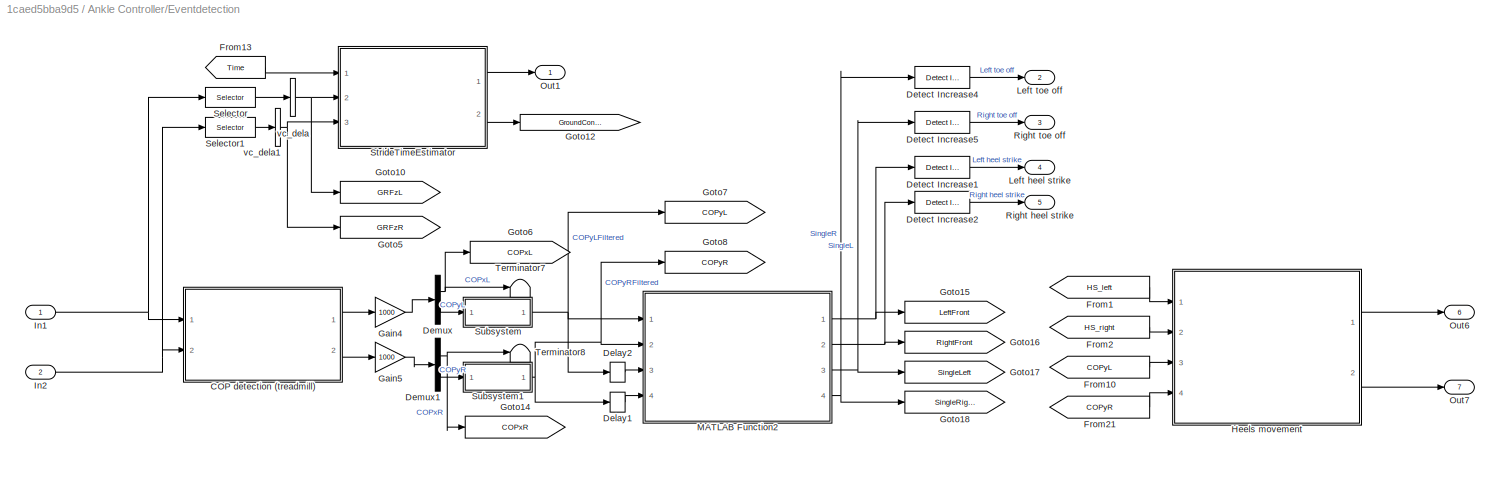
BLOCK [SubSystem] Ankle Controller/Eventdetection
  Ports = [2, 7]
  RequestExecContextInheritance = off
BLOCK [SubSystem] Ankle Controller/Eventdetection/COP detection (treadmill)
  Ports = [2, 2]
  RequestExecContextInheritance = off
BLOCK [Outport] Ankle Controller/Eventdetection/COP detection (treadmill)/COPLxy
  IconDisplay = Port number
BLOCK [Outport] Ankle Controller/Eventdetection/COP detection (treadmill)/COPRxy
  IconDisplay = Port number
  Port = 2
BLOCK [Constant] Ankle Controller/Eventdetection/COP detection (treadmill)/Constant1
  Value = 2*pi*50
BLOCK [Constant] Ankle Controller/Eventdetection/COP detection (treadmill)/Constant2
  Value = 200
BLOCK [Constant] Ankle Controller/Eventdetection/COP detection (treadmill)/Constant3
  Value = 0.001
BLOCK [Gain] Ankle Controller/Eventdetection/COP detection (treadmill)/Gain1
  OutDataTypeStr = Inherit: Inherit via internal rule
  ParamDataTypeStr = Inherit: Inherit via internal rule
  SaturateOnIntegerOverflow = off
BLOCK [Gain] Ankle Controller/Eventdetection/COP detection (treadmill)/Gain2
  OutDataTypeStr = Inherit: Inherit via internal rule
  ParamDataTypeStr = Inherit: Inherit via internal rule
  SaturateOnIntegerOverflow = off
BLOCK [SubSystem] Ankle Controller/Eventdetection/COP detection (treadmill)/Get_COPL
  Ports = [1, 1, 1]
  RequestExecContextInheritance = off
  TreatAsAtomicUnit = on
BLOCK [Outport] Ankle Controller/Eventdetection/COP detection (treadmill)/Get_COPL/COPL
  IconDisplay = Port number
  InitialOutput = 0
  OutputWhenDisabled = reset
BLOCK [Demux] Ankle Controller/Eventdetection/COP detection (treadmill)/Get_COPL/Demux1
  DisplayOption = bar
  Outputs = 3
  Ports = [1, 3]
BLOCK [Product] Ankle Controller/Eventdetection/COP detection (treadmill)/Get_COPL/Divide
  InputSameDT = off
  Inputs = */
  OutDataTypeStr = Inherit: Inherit via internal rule
  Ports = [2, 1]
  RndMeth = Floor
  SaturateOnIntegerOverflow = off
BLOCK [Product] Ankle Controller/Eventdetection/COP detection (treadmill)/Get_COPL/Divide1
  InputSameDT = off
  Inputs = */
  OutDataTypeStr = Inherit: Inherit via internal rule
  Ports = [2, 1]
  RndMeth = Floor
  SaturateOnIntegerOverflow = off
BLOCK [EnablePort] Ankle Controller/Eventdetection/COP detection (treadmill)/Get_COPL/Enable
  Ports = []
  StatesWhenEnabling = reset
BLOCK [Gain] Ankle Controller/Eventdetection/COP detection (treadmill)/Get_COPL/Gain
  Gain = -1
  OutDataTypeStr = Inherit: Inherit via internal rule
  ParamDataTypeStr = Inherit: Inherit via internal rule
  SaturateOnIntegerOverflow = off
BLOCK [Selector] Ankle Controller/Eventdetection/COP detection (treadmill)/Get_COPL/LEFT Mx My Fz
  IndexOptions = Index vector (dialog)
  Indices = [4 5 3]
  InputPortWidth = 6
  OutputSizes = 1
  Ports = [1, 1]
BLOCK [Mux] Ankle Controller/Eventdetection/COP detection (treadmill)/Get_COPL/Mux
  DisplayOption = bar
  Inputs = 2
  Ports = [2, 1]
BLOCK [Inport] Ankle Controller/Eventdetection/COP detection (treadmill)/Get_COPL/grf
  IconDisplay = Port number
BLOCK [SubSystem] Ankle Controller/Eventdetection/COP detection (treadmill)/Get_COPR
  Ports = [1, 1, 1]
  RequestExecContextInheritance = off
  TreatAsAtomicUnit = on
BLOCK [Outport] Ankle Controller/Eventdetection/COP detection (treadmill)/Get_COPR/COPR
  IconDisplay = Port number
  InitialOutput = 0
  OutputWhenDisabled = reset
BLOCK [Demux] Ankle Controller/Eventdetection/COP detection (treadmill)/Get_COPR/Demux1
  DisplayOption = bar
  Outputs = 3
  Ports = [1, 3]
BLOCK [Product] Ankle Controller/Eventdetection/COP detection (treadmill)/Get_COPR/Divide
  InputSameDT = off
  Inputs = */
  OutDataTypeStr = Inherit: Inherit via internal rule
  Ports = [2, 1]
  RndMeth = Floor
  SaturateOnIntegerOverflow = off
BLOCK [Product] Ankle Controller/Eventdetection/COP detection (treadmill)/Get_COPR/Divide1
  InputSameDT = off
  Inputs = */
  OutDataTypeStr = Inherit: Inherit via internal rule
  Ports = [2, 1]
  RndMeth = Floor
  SaturateOnIntegerOverflow = off
BLOCK [EnablePort] Ankle Controller/Eventdetection/COP detection (treadmill)/Get_COPR/Enable
  Ports = []
  StatesWhenEnabling = reset
BLOCK [Gain] Ankle Controller/Eventdetection/COP detection (treadmill)/Get_COPR/Gain
  Gain = -1
  OutDataTypeStr = Inherit: Inherit via internal rule
  ParamDataTypeStr = Inherit: Inherit via internal rule
  SaturateOnIntegerOverflow = off
BLOCK [Mux] Ankle Controller/Eventdetection/COP detection (treadmill)/Get_COPR/Mux
  DisplayOption = bar
  Inputs = 2
  Ports = [2, 1]
BLOCK [Selector] Ankle Controller/Eventdetection/COP detection (treadmill)/Get_COPR/RIGHT Mx My Fz
  IndexOptions = Index vector (dialog)
  Indices = [4 5 3]
  InputPortWidth = 6
  OutputSizes = 1
  Ports = [1, 1]
BLOCK [Inport] Ankle Controller/Eventdetection/COP detection (treadmill)/Get_COPR/grf
  IconDisplay = Port number
BLOCK [Selector] Ankle Controller/Eventdetection/COP detection (treadmill)/LEFT Fz
  IndexOptions = Index vector (dialog)
  Indices = [3]
  InputPortWidth = 6
  OutputSizes = 1
  Ports = [1, 1]
BLOCK [Inport] Ankle Controller/Eventdetection/COP detection (treadmill)/Left GRF
  IconDisplay = Port number
BLOCK [SubSystem] Ankle Controller/Eventdetection/COP detection (treadmill)/MATLAB Function1
  ErrorFcn = Stateflow.Translate.translate
  PermitHierarchicalResolution = ExplicitOnly
  Ports = [3, 1]
  RequestExecContextInheritance = off
  SFBlockType = MATLAB Function
  TreatAsAtomicUnit = on
BLOCK [Demux] Ankle Controller/Eventdetection/COP detection (treadmill)/MATLAB Function1/ Demux 
  DisplayOption = bar
  Outputs = 1
  Ports = [1, 1]
BLOCK [S-Function] Ankle Controller/Eventdetection/COP detection (treadmill)/MATLAB Function1/ SFunction 
  EnableBusSupport = on
  FunctionName = sf_sfun
  PortCounts = [3 2]
  Ports = [3, 2]
  SFcnIsStateOwnerBlock = off
  SFunctionDeploymentMode = off
  Tag = Stateflow S-Function WEankle_controllerMaarten 2
BLOCK [Terminator] Ankle Controller/Eventdetection/COP detection (treadmill)/MATLAB Function1/ Terminator 
BLOCK [Inport] Ankle Controller/Eventdetection/COP detection (treadmill)/MATLAB Function1/OmegaFilter
  IconDisplay = Port number
  Port = 2
BLOCK [Inport] Ankle Controller/Eventdetection/COP detection (treadmill)/MATLAB Function1/sampleTime
  IconDisplay = Port number
  Port = 3
BLOCK [Inport] Ankle Controller/Eventdetection/COP detection (treadmill)/MATLAB Function1/x
  IconDisplay = Port number
BLOCK [Outport] Ankle Controller/Eventdetection/COP detection (treadmill)/MATLAB Function1/y
  IconDisplay = Port number
BLOCK [SubSystem] Ankle Controller/Eventdetection/COP detection (treadmill)/MATLAB Function2
  ErrorFcn = Stateflow.Translate.translate
  PermitHierarchicalResolution = ExplicitOnly
  Ports = [3, 1]
  RequestExecContextInheritance = off
  SFBlockType = MATLAB Function
  TreatAsAtomicUnit = on
BLOCK [Demux] Ankle Controller/Eventdetection/COP detection (treadmill)/MATLAB Function2/ Demux 
  DisplayOption = bar
  Outputs = 1
  Ports = [1, 1]
BLOCK [S-Function] Ankle Controller/Eventdetection/COP detection (treadmill)/MATLAB Function2/ SFunction 
  EnableBusSupport = on
  FunctionName = sf_sfun
  PortCounts = [3 2]
  Ports = [3, 2]
  SFcnIsStateOwnerBlock = off
  SFunctionDeploymentMode = off
  Tag = Stateflow S-Function WEankle_controllerMaarten 5
BLOCK [Terminator] Ankle Controller/Eventdetection/COP detection (treadmill)/MATLAB Function2/ Terminator 
BLOCK [Inport] Ankle Controller/Eventdetection/COP detection (treadmill)/MATLAB Function2/OmegaFilter
  IconDisplay = Port number
  Port = 2
BLOCK [Inport] Ankle Controller/Eventdetection/COP detection (treadmill)/MATLAB Function2/sampleTime
  IconDisplay = Port number
  Port = 3
BLOCK [Inport] Ankle Controller/Eventdetection/COP detection (treadmill)/MATLAB Function2/x
  IconDisplay = Port number
BLOCK [Outport] Ankle Controller/Eventdetection/COP detection (treadmill)/MATLAB Function2/y
  IconDisplay = Port number
BLOCK [Selector] Ankle Controller/Eventdetection/COP detection (treadmill)/RIGHT Fz
  IndexOptions = Index vector (dialog)
  Indices = [3]
  InputPortWidth = 6
  OutputSizes = 1
  Ports = [1, 1]
BLOCK [RelationalOperator] Ankle Controller/Eventdetection/COP detection (treadmill)/Relational Operator
  InputSameDT = off
  OutDataTypeStr = boolean
  Ports = [2, 1]
  RndMeth = Simplest
BLOCK [RelationalOperator] Ankle Controller/Eventdetection/COP detection (treadmill)/Relational Operator1
  InputSameDT = off
  OutDataTypeStr = boolean
  Ports = [2, 1]
  RndMeth = Simplest
BLOCK [Inport] Ankle Controller/Eventdetection/COP detection (treadmill)/Right GRF
  IconDisplay = Port number
  Port = 2
BLOCK [Delay] Ankle Controller/Eventdetection/Delay1
  DelayLength = 1
  InputPortMap = u0
  Ports = [1, 1]
BLOCK [Delay] Ankle Controller/Eventdetection/Delay2
  DelayLength = 1
  InputPortMap = u0
  Ports = [1, 1]
BLOCK [Demux] Ankle Controller/Eventdetection/Demux
  DisplayOption = bar
  Outputs = 2
  Ports = [1, 2]
BLOCK [Demux] Ankle Controller/Eventdetection/Demux1
  DisplayOption = bar
  Outputs = 2
  Ports = [1, 2]
BLOCK [Reference] Ankle Controller/Eventdetection/Detect Increase1  REF=simulink/Logic and Bit
Operations/Detect
Increase
  Ports = [1, 1]
  SourceBlock = simulink/Logic and Bit\nOperations/Detect\nIncrease
  SourceProductBaseCode = SL
  SourceType = Detect Increase
BLOCK [Reference] Ankle Controller/Eventdetection/Detect Increase2  REF=simulink/Logic and Bit
Operations/Detect
Increase
  Ports = [1, 1]
  SourceBlock = simulink/Logic and Bit\nOperations/Detect\nIncrease
  SourceProductBaseCode = SL
  SourceType = Detect Increase
BLOCK [Reference] Ankle Controller/Eventdetection/Detect Increase4  REF=simulink/Logic and Bit
Operations/Detect
Increase
  Ports = [1, 1]
  SourceBlock = simulink/Logic and Bit\nOperations/Detect\nIncrease
  SourceProductBaseCode = SL
  SourceType = Detect Increase
BLOCK [Reference] Ankle Controller/Eventdetection/Detect Increase5  REF=simulink/Logic and Bit
Operations/Detect
Increase
  Ports = [1, 1]
  SourceBlock = simulink/Logic and Bit\nOperations/Detect\nIncrease
  SourceProductBaseCode = SL
  SourceType = Detect Increase
BLOCK [From] Ankle Controller/Eventdetection/From1
  GotoTag = HS_left
  TagVisibility = global
BLOCK [From] Ankle Controller/Eventdetection/From10
  GotoTag = COPyL
  TagVisibility = global
BLOCK [From] Ankle Controller/Eventdetection/From13
  GotoTag = Time
  TagVisibility = global
BLOCK [From] Ankle Controller/Eventdetection/From2
  GotoTag = HS_right
  TagVisibility = global
BLOCK [From] Ankle Controller/Eventdetection/From21
  GotoTag = COPyR
  TagVisibility = global
BLOCK [Gain] Ankle Controller/Eventdetection/Gain4
  Gain = 1000
  OutDataTypeStr = Inherit: Inherit via internal rule
  ParamDataTypeStr = Inherit: Inherit via internal rule
  SaturateOnIntegerOverflow = off
BLOCK [Gain] Ankle Controller/Eventdetection/Gain5
  Gain = 1000
  OutDataTypeStr = Inherit: Inherit via internal rule
  ParamDataTypeStr = Inherit: Inherit via internal rule
  SaturateOnIntegerOverflow = off
BLOCK [Goto] Ankle Controller/Eventdetection/Goto10
  GotoTag = GRFzL
  TagVisibility = global
BLOCK [Goto] Ankle Controller/Eventdetection/Goto12
  Commented = on
  GotoTag = GroundContact_FP
BLOCK [Goto] Ankle Controller/Eventdetection/Goto14
  GotoTag = COPxR
  TagVisibility = global
BLOCK [Goto] Ankle Controller/Eventdetection/Goto15
  Commented = on
  GotoTag = LeftFront
  TagVisibility = global
BLOCK [Goto] Ankle Controller/Eventdetection/Goto16
  Commented = on
  GotoTag = RightFront
  TagVisibility = global
BLOCK [Goto] Ankle Controller/Eventdetection/Goto17
  GotoTag = SingleLeft
  TagVisibility = global
BLOCK [Goto] Ankle Controller/Eventdetection/Goto18
  GotoTag = SingleRight
  TagVisibility = global
BLOCK [Goto] Ankle Controller/Eventdetection/Goto5
  GotoTag = GRFzR
  TagVisibility = global
BLOCK [Goto] Ankle Controller/Eventdetection/Goto6
  GotoTag = COPxL
  TagVisibility = global
BLOCK [Goto] Ankle Controller/Eventdetection/Goto7
  GotoTag = COPyL
  TagVisibility = global
BLOCK [Goto] Ankle Controller/Eventdetection/Goto8
  GotoTag = COPyR
  TagVisibility = global
BLOCK [SubSystem] Ankle Controller/Eventdetection/Heels movement
  Ports = [4, 2]
  RequestExecContextInheritance = off
BLOCK [Inport] Ankle Controller/Eventdetection/Heels movement/COPyL
  IconDisplay = Port number
  Port = 3
BLOCK [Inport] Ankle Controller/Eventdetection/Heels movement/COPyR
  IconDisplay = Port number
  Port = 4
BLOCK [Delay] Ankle Controller/Eventdetection/Heels movement/Delay
  DelayLength = 10
  InputPortMap = u0
  Ports = [1, 1]
BLOCK [Delay] Ankle Controller/Eventdetection/Heels movement/Delay1
  DelayLength = 10
  InputPortMap = u0
  Ports = [1, 1]
BLOCK [Delay] Ankle Controller/Eventdetection/Heels movement/Delay2
  DelayLength = 10
  InputPortMap = u0
  Ports = [1, 1]
BLOCK [Delay] Ankle Controller/Eventdetection/Heels movement/Delay3
  DelayLength = 10
  InputPortMap = u0
  Ports = [1, 1]
BLOCK [Gain] Ankle Controller/Eventdetection/Heels movement/Gain1
  Gain = 0.001
  OutDataTypeStr = Inherit: Inherit via internal rule
  ParamDataTypeStr = Inherit: Inherit via internal rule
  SaturateOnIntegerOverflow = off
BLOCK [Gain] Ankle Controller/Eventdetection/Heels movement/Gain10
  Gain = 0.001
  OutDataTypeStr = Inherit: Inherit via internal rule
  ParamDataTypeStr = Inherit: Inherit via internal rule
  SaturateOnIntegerOverflow = off
BLOCK [Reference] Ankle Controller/Eventdetection/Heels movement/Keep pos L heel strike  REF=dspsigops/Sample
and Hold
  Ports = [1, 1, 0, 1]
  SourceBlock = dspsigops/Sample\nand Hold
  SourceProductBaseCode = DS
  SourceType = Sample and Hold
BLOCK [Reference] Ankle Controller/Eventdetection/Heels movement/Keep pos R heel strike  REF=dspsigops/Sample
and Hold
  Ports = [1, 1, 0, 1]
  SourceBlock = dspsigops/Sample\nand Hold
  SourceProductBaseCode = DS
  SourceType = Sample and Hold
BLOCK [Outport] Ankle Controller/Eventdetection/Heels movement/LHeelMov
  IconDisplay = Port number
BLOCK [Inport] Ankle Controller/Eventdetection/Heels movement/Left heel strike
  IconDisplay = Port number
BLOCK [SubSystem] Ankle Controller/Eventdetection/Heels movement/MATLAB Function2
  ErrorFcn = Stateflow.Translate.translate
  PermitHierarchicalResolution = ExplicitOnly
  Ports = [2, 2]
  RequestExecContextInheritance = off
  SFBlockType = MATLAB Function
  TreatAsAtomicUnit = on
BLOCK [Demux] Ankle Controller/Eventdetection/Heels movement/MATLAB Function2/ Demux 
  DisplayOption = bar
  Outputs = 1
  Ports = [1, 1]
BLOCK [S-Function] Ankle Controller/Eventdetection/Heels movement/MATLAB Function2/ SFunction 
  EnableBusSupport = on
  FunctionName = sf_sfun
  PortCounts = [2 3]
  Ports = [2, 3]
  SFcnIsStateOwnerBlock = off
  SFunctionDeploymentMode = off
  Tag = Stateflow S-Function WEankle_controllerMaarten 13
BLOCK [Terminator] Ankle Controller/Eventdetection/Heels movement/MATLAB Function2/ Terminator 
BLOCK [Inport] Ankle Controller/Eventdetection/Heels movement/MATLAB Function2/COPyL
  IconDisplay = Port number
BLOCK [Inport] Ankle Controller/Eventdetection/Heels movement/MATLAB Function2/COPyR
  IconDisplay = Port number
  Port = 2
BLOCK [Outport] Ankle Controller/Eventdetection/Heels movement/MATLAB Function2/gainL
  IconDisplay = Port number
BLOCK [Outport] Ankle Controller/Eventdetection/Heels movement/MATLAB Function2/gainR
  IconDisplay = Port number
  Port = 2
BLOCK [Product] Ankle Controller/Eventdetection/Heels movement/Multiply
  InputSameDT = off
  OutDataTypeStr = Inherit: Inherit via internal rule
  Ports = [2, 1]
  RndMeth = Floor
  SaturateOnIntegerOverflow = off
BLOCK [Product] Ankle Controller/Eventdetection/Heels movement/Multiply1
  InputSameDT = off
  OutDataTypeStr = Inherit: Inherit via internal rule
  Ports = [2, 1]
  RndMeth = Floor
  SaturateOnIntegerOverflow = off
BLOCK [Outport] Ankle Controller/Eventdetection/Heels movement/RHeelMov
  IconDisplay = Port number
  Port = 2
BLOCK [Reference] Ankle Controller/Eventdetection/Heels movement/Ramp with slope of treadmill vel (m//s)  REF=simulink/Sources/Ramp
  Ports = [0, 1]
  SourceBlock = simulink/Sources/Ramp
  SourceProductBaseCode = SL
  SourceType = Ramp
BLOCK [Inport] Ankle Controller/Eventdetection/Heels movement/Right heel strike
  IconDisplay = Port number
  Port = 2
BLOCK [Reference] Ankle Controller/Eventdetection/Heels movement/Sample and Hold1  REF=dspsigops/Sample
and Hold
  Ports = [1, 1, 0, 1]
  SourceBlock = dspsigops/Sample\nand Hold
  SourceProductBaseCode = DS
  SourceType = Sample and Hold
BLOCK [Reference] Ankle Controller/Eventdetection/Heels movement/Sample and Hold2  REF=dspsigops/Sample
and Hold
  Ports = [1, 1, 0, 1]
  SourceBlock = dspsigops/Sample\nand Hold
  SourceProductBaseCode = DS
  SourceType = Sample and Hold
BLOCK [Sum] Ankle Controller/Eventdetection/Heels movement/Sum1
  IconShape = round
  InputSameDT = off
  Inputs = |+-
  OutDataTypeStr = Inherit: Inherit via internal rule
  Ports = [2, 1]
  SaturateOnIntegerOverflow = off
BLOCK [Sum] Ankle Controller/Eventdetection/Heels movement/Sum2
  IconShape = round
  InputSameDT = off
  Inputs = |++
  OutDataTypeStr = Inherit: Inherit via internal rule
  Ports = [2, 1]
  SaturateOnIntegerOverflow = off
BLOCK [Sum] Ankle Controller/Eventdetection/Heels movement/Sum3
  IconShape = round
  InputSameDT = off
  Inputs = |+-
  OutDataTypeStr = Inherit: Inherit via internal rule
  Ports = [2, 1]
  SaturateOnIntegerOverflow = off
BLOCK [Sum] Ankle Controller/Eventdetection/Heels movement/Sum4
  IconShape = round
  InputSameDT = off
  Inputs = |++
  OutDataTypeStr = Inherit: Inherit via internal rule
  Ports = [2, 1]
  SaturateOnIntegerOverflow = off
BLOCK [Inport] Ankle Controller/Eventdetection/In1
  IconDisplay = Port number
BLOCK [Inport] Ankle Controller/Eventdetection/In2
  IconDisplay = Port number
  Port = 2
BLOCK [Outport] Ankle Controller/Eventdetection/Left heel strike
  IconDisplay = Port number
  Port = 4
BLOCK [Outport] Ankle Controller/Eventdetection/Left toe off
  IconDisplay = Port number
  Port = 2
BLOCK [SubSystem] Ankle Controller/Eventdetection/MATLAB Function2
  ErrorFcn = Stateflow.Translate.translate
  PermitHierarchicalResolution = ExplicitOnly
  Ports = [4, 4]
  RequestExecContextInheritance = off
  SFBlockType = MATLAB Function
  TreatAsAtomicUnit = on
BLOCK [Demux] Ankle Controller/Eventdetection/MATLAB Function2/ Demux 
  DisplayOption = bar
  Outputs = 1
  Ports = [1, 1]
BLOCK [S-Function] Ankle Controller/Eventdetection/MATLAB Function2/ SFunction 
  EnableBusSupport = on
  FunctionName = sf_sfun
  PortCounts = [4 5]
  Ports = [4, 5]
  SFcnIsStateOwnerBlock = off
  SFunctionDeploymentMode = off
  Tag = Stateflow S-Function WEankle_controllerMaarten 24
BLOCK [Terminator] Ankle Controller/Eventdetection/MATLAB Function2/ Terminator 
BLOCK [Inport] Ankle Controller/Eventdetection/MATLAB Function2/COPyL
  IconDisplay = Port number
BLOCK [Inport] Ankle Controller/Eventdetection/MATLAB Function2/COPyL_1
  IconDisplay = Port number
  Port = 3
BLOCK [Inport] Ankle Controller/Eventdetection/MATLAB Function2/COPyR
  IconDisplay = Port number
  Port = 2
BLOCK [Inport] Ankle Controller/Eventdetection/MATLAB Function2/COPyR_1
  IconDisplay = Port number
  Port = 4
BLOCK [Outport] Ankle Controller/Eventdetection/MATLAB Function2/leftFront
  IconDisplay = Port number
BLOCK [Outport] Ankle Controller/Eventdetection/MATLAB Function2/rightFront
  IconDisplay = Port number
  Port = 2
BLOCK [Outport] Ankle Controller/Eventdetection/MATLAB Function2/singleLeft
  IconDisplay = Port number
  Port = 3
BLOCK [Outport] Ankle Controller/Eventdetection/MATLAB Function2/singleRight
  IconDisplay = Port number
  Port = 4
BLOCK [Outport] Ankle Controller/Eventdetection/Out1
  IconDisplay = Port number
BLOCK [Outport] Ankle Controller/Eventdetection/Out6
  IconDisplay = Port number
  Port = 6
BLOCK [Outport] Ankle Controller/Eventdetection/Out7
  IconDisplay = Port number
  Port = 7
BLOCK [Outport] Ankle Controller/Eventdetection/Right heel strike
  IconDisplay = Port number
  Port = 5
BLOCK [Outport] Ankle Controller/Eventdetection/Right toe off
  IconDisplay = Port number
  Port = 3
BLOCK [Selector] Ankle Controller/Eventdetection/Selector
  IndexOptions = Index vector (dialog)
  Indices = 3
  InputPortWidth = 6
  OutputSizes = 1
  Ports = [1, 1]
BLOCK [Selector] Ankle Controller/Eventdetection/Selector1
  IndexOptions = Index vector (dialog)
  Indices = 3
  InputPortWidth = 6
  OutputSizes = 1
  Ports = [1, 1]
BLOCK [SubSystem] Ankle Controller/Eventdetection/StrideTimeEstimator
  Ports = [3, 2]
  RequestExecContextInheritance = off
BLOCK [Constant] Ankle Controller/Eventdetection/StrideTimeEstimator/Constant
  Value = 200
BLOCK [Constant] Ankle Controller/Eventdetection/StrideTimeEstimator/Constant1
  Value = 2*pi*50
BLOCK [Constant] Ankle Controller/Eventdetection/StrideTimeEstimator/Constant2
  SampleTime = -1
  VectorParams1D = off
BLOCK [Reference] Ankle Controller/Eventdetection/StrideTimeEstimator/Detect Decrease  REF=simulink/Logic and Bit
Operations/Detect
Decrease
  Ports = [1, 1]
  SourceBlock = simulink/Logic and Bit\nOperations/Detect\nDecrease
  SourceProductBaseCode = SL
  SourceType = Detect Decrease
BLOCK [Reference] Ankle Controller/Eventdetection/StrideTimeEstimator/Detect Decrease1  REF=simulink/Logic and Bit
Operations/Detect
Decrease
  Ports = [1, 1]
  SourceBlock = simulink/Logic and Bit\nOperations/Detect\nDecrease
  SourceProductBaseCode = SL
  SourceType = Detect Decrease
BLOCK [Reference] Ankle Controller/Eventdetection/StrideTimeEstimator/Detect Increase  REF=simulink/Logic and Bit
Operations/Detect
Increase
  Ports = [1, 1]
  SourceBlock = simulink/Logic and Bit\nOperations/Detect\nIncrease
  SourceProductBaseCode = SL
  SourceType = Detect Increase
BLOCK [Reference] Ankle Controller/Eventdetection/StrideTimeEstimator/Detect Increase1  REF=simulink/Logic and Bit
Operations/Detect
Increase
  Ports = [1, 1]
  SourceBlock = simulink/Logic and Bit\nOperations/Detect\nIncrease
  SourceProductBaseCode = SL
  SourceType = Detect Increase
BLOCK [Reference] Ankle Controller/Eventdetection/StrideTimeEstimator/Filter1  REF=WE2_library/FromActuator/ToJointAngle_rad/FilterFourthOrder/Filter1
  Ports = [2, 1]
  SourceBlock = WE2_library/FromActuator/ToJointAngle_rad/FilterFourthOrder/Filter1
BLOCK [Reference] Ankle Controller/Eventdetection/StrideTimeEstimator/Filter2  REF=WE2_library/FromActuator/ToJointAngle_rad/FilterFourthOrder/Filter1
  Ports = [2, 1]
  SourceBlock = WE2_library/FromActuator/ToJointAngle_rad/FilterFourthOrder/Filter1
BLOCK [Inport] Ankle Controller/Eventdetection/StrideTimeEstimator/ForceZ_L
  IconDisplay = Port number
  Port = 2
BLOCK [Inport] Ankle Controller/Eventdetection/StrideTimeEstimator/ForceZ_R
  IconDisplay = Port number
  Port = 3
BLOCK [From] Ankle Controller/Eventdetection/StrideTimeEstimator/From
  GotoTag = Reset
  TagVisibility = global
BLOCK [From] Ankle Controller/Eventdetection/StrideTimeEstimator/From10
  GotoTag = SingleRight
  TagVisibility = global
BLOCK [From] Ankle Controller/Eventdetection/StrideTimeEstimator/From8
  GotoTag = SingleLeft
  TagVisibility = global
BLOCK [Gain] Ankle Controller/Eventdetection/StrideTimeEstimator/Gain
  OutDataTypeStr = Inherit: Inherit via internal rule
  ParamDataTypeStr = Inherit: Inherit via internal rule
  SaturateOnIntegerOverflow = off
BLOCK [Gain] Ankle Controller/Eventdetection/StrideTimeEstimator/Gain1
  OutDataTypeStr = Inherit: Inherit via internal rule
  ParamDataTypeStr = Inherit: Inherit via internal rule
  SaturateOnIntegerOverflow = off
BLOCK [Outport] Ankle Controller/Eventdetection/StrideTimeEstimator/GroundContact
  IconDisplay = Port number
  Port = 2
BLOCK [SubSystem] Ankle Controller/Eventdetection/StrideTimeEstimator/MATLAB Function
  ErrorFcn = Stateflow.Translate.translate
  PermitHierarchicalResolution = ExplicitOnly
  Ports = [5, 2]
  RequestExecContextInheritance = off
  SFBlockType = MATLAB Function
  TreatAsAtomicUnit = on
BLOCK [Demux] Ankle Controller/Eventdetection/StrideTimeEstimator/MATLAB Function/ Demux 
  DisplayOption = bar
  Outputs = 1
  Ports = [1, 1]
BLOCK [S-Function] Ankle Controller/Eventdetection/StrideTimeEstimator/MATLAB Function/ SFunction 
  EnableBusSupport = on
  FunctionName = sf_sfun
  PortCounts = [5 3]
  Ports = [5, 3]
  SFcnIsStateOwnerBlock = off
  SFunctionDeploymentMode = off
  Tag = Stateflow S-Function WEankle_controllerMaarten 1
BLOCK [Terminator] Ankle Controller/Eventdetection/StrideTimeEstimator/MATLAB Function/ Terminator 
BLOCK [Inport] Ankle Controller/Eventdetection/StrideTimeEstimator/MATLAB Function/fLeftCross
  IconDisplay = Port number
BLOCK [Inport] Ankle Controller/Eventdetection/StrideTimeEstimator/MATLAB Function/fLeftThresh
  IconDisplay = Port number
  Port = 2
BLOCK [Inport] Ankle Controller/Eventdetection/StrideTimeEstimator/MATLAB Function/fRightCross
  IconDisplay = Port number
  Port = 3
BLOCK [Inport] Ankle Controller/Eventdetection/StrideTimeEstimator/MATLAB Function/fRightThresh
  IconDisplay = Port number
  Port = 4
BLOCK [Outport] Ankle Controller/Eventdetection/StrideTimeEstimator/MATLAB Function/phase_left
  IconDisplay = Port number
BLOCK [Outport] Ankle Controller/Eventdetection/StrideTimeEstimator/MATLAB Function/phase_right
  IconDisplay = Port number
  Port = 2
BLOCK [Inport] Ankle Controller/Eventdetection/StrideTimeEstimator/MATLAB Function/time
  IconDisplay = Port number
  Port = 5
BLOCK [SubSystem] Ankle Controller/Eventdetection/StrideTimeEstimator/MATLAB Function3
  ErrorFcn = Stateflow.Translate.translate
  PermitHierarchicalResolution = ExplicitOnly
  Ports = [8, 2]
  RequestExecContextInheritance = off
  SFBlockType = MATLAB Function
  TreatAsAtomicUnit = on
BLOCK [Demux] Ankle Controller/Eventdetection/StrideTimeEstimator/MATLAB Function3/ Demux 
  DisplayOption = bar
  Outputs = 1
  Ports = [1, 1]
BLOCK [S-Function] Ankle Controller/Eventdetection/StrideTimeEstimator/MATLAB Function3/ SFunction 
  EnableBusSupport = on
  FunctionName = sf_sfun
  PortCounts = [8 3]
  Ports = [8, 3]
  SFcnIsStateOwnerBlock = off
  SFunctionDeploymentMode = off
  Tag = Stateflow S-Function WEankle_controllerMaarten 8
BLOCK [Terminator] Ankle Controller/Eventdetection/StrideTimeEstimator/MATLAB Function3/ Terminator 
BLOCK [Inport] Ankle Controller/Eventdetection/StrideTimeEstimator/MATLAB Function3/SingleL
  IconDisplay = Port number
  Port = 6
BLOCK [Inport] Ankle Controller/Eventdetection/StrideTimeEstimator/MATLAB Function3/SingleR
  IconDisplay = Port number
  Port = 7
BLOCK [Inport] Ankle Controller/Eventdetection/StrideTimeEstimator/MATLAB Function3/fLeftCross
  IconDisplay = Port number
BLOCK [Inport] Ankle Controller/Eventdetection/StrideTimeEstimator/MATLAB Function3/fLeftThresh
  IconDisplay = Port number
  Port = 2
BLOCK [Inport] Ankle Controller/Eventdetection/StrideTimeEstimator/MATLAB Function3/fRightCross
  IconDisplay = Port number
  Port = 3
BLOCK [Inport] Ankle Controller/Eventdetection/StrideTimeEstimator/MATLAB Function3/fRightThresh
  IconDisplay = Port number
  Port = 4
BLOCK [Outport] Ankle Controller/Eventdetection/StrideTimeEstimator/MATLAB Function3/phase_left
  IconDisplay = Port number
BLOCK [Outport] Ankle Controller/Eventdetection/StrideTimeEstimator/MATLAB Function3/phase_right
  IconDisplay = Port number
  Port = 2
BLOCK [Inport] Ankle Controller/Eventdetection/StrideTimeEstimator/MATLAB Function3/reset
  IconDisplay = Port number
  Port = 8
BLOCK [Inport] Ankle Controller/Eventdetection/StrideTimeEstimator/MATLAB Function3/time
  IconDisplay = Port number
  Port = 5
BLOCK [Mux] Ankle Controller/Eventdetection/StrideTimeEstimator/Mux
  DisplayOption = bar
  Inputs = 2
  Ports = [2, 1]
BLOCK [Mux] Ankle Controller/Eventdetection/StrideTimeEstimator/Mux1
  DisplayOption = bar
  Inputs = 2
  Ports = [2, 1]
BLOCK [Outport] Ankle Controller/Eventdetection/StrideTimeEstimator/Phase
  IconDisplay = Port number
BLOCK [RelationalOperator] Ankle Controller/Eventdetection/StrideTimeEstimator/Relational Operator
  InputSameDT = off
  OutDataTypeStr = boolean
  Ports = [2, 1]
  RndMeth = Simplest
BLOCK [RelationalOperator] Ankle Controller/Eventdetection/StrideTimeEstimator/Relational Operator1
  InputSameDT = off
  OutDataTypeStr = boolean
  Ports = [2, 1]
  RndMeth = Simplest
BLOCK [Saturate] Ankle Controller/Eventdetection/StrideTimeEstimator/Saturation1
  InputPortMap = u0
  LowerLimit = 0
  Ports = [1, 1]
  UpperLimit = 100
BLOCK [Switch] Ankle Controller/Eventdetection/StrideTimeEstimator/Switch
  Criteria = u2 > Threshold
  InputSameDT = off
  SaturateOnIntegerOverflow = off
BLOCK [Switch] Ankle Controller/Eventdetection/StrideTimeEstimator/Switch1
  Criteria = u2 > Threshold
  InputSameDT = off
  SaturateOnIntegerOverflow = off
BLOCK [Terminator] Ankle Controller/Eventdetection/StrideTimeEstimator/Terminator1
  Commented = on
BLOCK [Terminator] Ankle Controller/Eventdetection/StrideTimeEstimator/Terminator7
  Commented = on
BLOCK [Inport] Ankle Controller/Eventdetection/StrideTimeEstimator/time_s
  IconDisplay = Port number
BLOCK [SubSystem] Ankle Controller/Eventdetection/Subsystem
  Ports = [1, 1]
  RequestExecContextInheritance = off
BLOCK [Constant] Ankle Controller/Eventdetection/Subsystem/Constant
  Value = 5
BLOCK [Delay] Ankle Controller/Eventdetection/Subsystem/Delay2
  DelayLength = 1
  InputPortMap = u0
  Ports = [1, 1]
BLOCK [Inport] Ankle Controller/Eventdetection/Subsystem/In1
  IconDisplay = Port number
BLOCK [Reference] Ankle Controller/Eventdetection/Subsystem/Lowpass Filter2  REF=dspfdesign/Lowpass Filter
  Ports = [1, 1]
  SourceBlock = dspfdesign/Lowpass Filter
  SourceProductBaseCode = DS
  SourceType = dsp.LowpassFilter
BLOCK [SubSystem] Ankle Controller/Eventdetection/Subsystem/MATLAB Function
  ErrorFcn = Stateflow.Translate.translate
  PermitHierarchicalResolution = ExplicitOnly
  Ports = [4, 1]
  RequestExecContextInheritance = off
  SFBlockType = MATLAB Function
  TreatAsAtomicUnit = on
BLOCK [Demux] Ankle Controller/Eventdetection/Subsystem/MATLAB Function/ Demux 
  DisplayOption = bar
  Outputs = 1
  Ports = [1, 1]
BLOCK [S-Function] Ankle Controller/Eventdetection/Subsystem/MATLAB Function/ SFunction 
  EnableBusSupport = on
  FunctionName = sf_sfun
  PortCounts = [4 2]
  Ports = [4, 2]
  SFcnIsStateOwnerBlock = off
  SFunctionDeploymentMode = off
  Tag = Stateflow S-Function WEankle_controllerMaarten 7
BLOCK [Terminator] Ankle Controller/Eventdetection/Subsystem/MATLAB Function/ Terminator 
BLOCK [Inport] Ankle Controller/Eventdetection/Subsystem/MATLAB Function/f
  IconDisplay = Port number
BLOCK [Inport] Ankle Controller/Eventdetection/Subsystem/MATLAB Function/nf
  IconDisplay = Port number
  Port = 2
BLOCK [Inport] Ankle Controller/Eventdetection/Subsystem/MATLAB Function/nf_1
  IconDisplay = Port number
  Port = 3
BLOCK [Inport] Ankle Controller/Eventdetection/Subsystem/MATLAB Function/th
  IconDisplay = Port number
  Port = 4
BLOCK [Outport] Ankle Controller/Eventdetection/Subsystem/MATLAB Function/y
  IconDisplay = Port number
BLOCK [Outport] Ankle Controller/Eventdetection/Subsystem/Out1
  IconDisplay = Port number
BLOCK [RateTransition] Ankle Controller/Eventdetection/Subsystem/Rate Transition
BLOCK [SubSystem] Ankle Controller/Eventdetection/Subsystem1
  Ports = [1, 1]
  RequestExecContextInheritance = off
BLOCK [Constant] Ankle Controller/Eventdetection/Subsystem1/Constant
  Value = 5
BLOCK [Delay] Ankle Controller/Eventdetection/Subsystem1/Delay2
  DelayLength = 1
  InputPortMap = u0
  Ports = [1, 1]
BLOCK [Inport] Ankle Controller/Eventdetection/Subsystem1/In1
  IconDisplay = Port number
BLOCK [Reference] Ankle Controller/Eventdetection/Subsystem1/Lowpass Filter2  REF=dspfdesign/Lowpass Filter
  Ports = [1, 1]
  SourceBlock = dspfdesign/Lowpass Filter
  SourceProductBaseCode = DS
  SourceType = dsp.LowpassFilter
BLOCK [SubSystem] Ankle Controller/Eventdetection/Subsystem1/MATLAB Function
  ErrorFcn = Stateflow.Translate.translate
  PermitHierarchicalResolution = ExplicitOnly
  Ports = [4, 1]
  RequestExecContextInheritance = off
  SFBlockType = MATLAB Function
  TreatAsAtomicUnit = on
BLOCK [Demux] Ankle Controller/Eventdetection/Subsystem1/MATLAB Function/ Demux 
  DisplayOption = bar
  Outputs = 1
  Ports = [1, 1]
BLOCK [S-Function] Ankle Controller/Eventdetection/Subsystem1/MATLAB Function/ SFunction 
  EnableBusSupport = on
  FunctionName = sf_sfun
  PortCounts = [4 2]
  Ports = [4, 2]
  SFcnIsStateOwnerBlock = off
  SFunctionDeploymentMode = off
  Tag = Stateflow S-Function WEankle_controllerMaarten 23
BLOCK [Terminator] Ankle Controller/Eventdetection/Subsystem1/MATLAB Function/ Terminator 
BLOCK [Inport] Ankle Controller/Eventdetection/Subsystem1/MATLAB Function/f
  IconDisplay = Port number
BLOCK [Inport] Ankle Controller/Eventdetection/Subsystem1/MATLAB Function/nf
  IconDisplay = Port number
  Port = 2
BLOCK [Inport] Ankle Controller/Eventdetection/Subsystem1/MATLAB Function/nf_1
  IconDisplay = Port number
  Port = 3
BLOCK [Inport] Ankle Controller/Eventdetection/Subsystem1/MATLAB Function/th
  IconDisplay = Port number
  Port = 4
BLOCK [Outport] Ankle Controller/Eventdetection/Subsystem1/MATLAB Function/y
  IconDisplay = Port number
BLOCK [Outport] Ankle Controller/Eventdetection/Subsystem1/Out1
  IconDisplay = Port number
BLOCK [RateTransition] Ankle Controller/Eventdetection/Subsystem1/Rate Transition
BLOCK [Terminator] Ankle Controller/Eventdetection/Terminator7
BLOCK [Terminator] Ankle Controller/Eventdetection/Terminator8
BLOCK [Concatenate] Ankle Controller/Eventdetection/vc_dela
  NumInputs = 1
  Ports = [1, 1]
BLOCK [Concatenate] Ankle Controller/Eventdetection/vc_dela1
  NumInputs = 1
  Ports = [1, 1]
BLOCK [Goto] Ankle Controller/FiberForce
  GotoTag = FiberForce
BLOCK [From] Ankle Controller/From
  GotoTag = DataLost
  TagVisibility = global
BLOCK [From] Ankle Controller/From1
  GotoTag = tauReflexModel
  TagVisibility = global
BLOCK [From] Ankle Controller/From10
  GotoTag = SubjMass
  TagVisibility = global
BLOCK [From] Ankle Controller/From11
  GotoTag = COMv_meas
  TagVisibility = global
BLOCK [From] Ankle Controller/From12
  GotoTag = AnkleTR
BLOCK [From] Ankle Controller/From13
  GotoTag = MaxTorque
  TagVisibility = global
BLOCK [From] Ankle Controller/From14
  GotoTag = HS_right
  TagVisibility = global
BLOCK [From] Ankle Controller/From15
  GotoTag = AnkleTL
BLOCK [From] Ankle Controller/From16
  GotoTag = SingleLeft
  TagVisibility = global
BLOCK [From] Ankle Controller/From17
  GotoTag = SingleRight
  TagVisibility = global
BLOCK [From] Ankle Controller/From18
  GotoTag = LeftEncoderOffset
  TagVisibility = global
BLOCK [From] Ankle Controller/From19
  GotoTag = GRFzL
  TagVisibility = global
BLOCK [From] Ankle Controller/From2
  GotoTag = SubjLength
  TagVisibility = global
BLOCK [From] Ankle Controller/From20
  GotoTag = GRFzR
  TagVisibility = global
BLOCK [From] Ankle Controller/From21
  GotoTag = EnableAssistance
  TagVisibility = global
BLOCK [From] Ankle Controller/From22
  GotoTag = RightEncoderOffset
  TagVisibility = global
BLOCK [From] Ankle Controller/From23
  GotoTag = LeftEncoderOffset
  TagVisibility = global
BLOCK [From] Ankle Controller/From24
  GotoTag = RightEncoderOffset
  TagVisibility = global
BLOCK [From] Ankle Controller/From25
  GotoTag = COPyL
  TagVisibility = global
BLOCK [From] Ankle Controller/From26
  GotoTag = COPyR
  TagVisibility = global
BLOCK [From] Ankle Controller/From27
  GotoTag = stride_duration
  TagVisibility = global
BLOCK [From] Ankle Controller/From28
  GotoTag = COMd_err_bounds
  TagVisibility = global
BLOCK [From] Ankle Controller/From29
  GotoTag = SubjMass
  TagVisibility = global
BLOCK [From] Ankle Controller/From3
  GotoTag = PushDetected
  TagVisibility = global
BLOCK [From] Ankle Controller/From30
  GotoTag = COMd_err_bounds
  TagVisibility = global
BLOCK [From] Ankle Controller/From31
  GotoTag = SubjMass
  TagVisibility = global
BLOCK [From] Ankle Controller/From32
  GotoTag = ForcePlate_Left
  TagVisibility = global
BLOCK [From] Ankle Controller/From33
  GotoTag = JointAngle_rad
  TagVisibility = global
BLOCK [From] Ankle Controller/From34
  GotoTag = m
  TagVisibility = global
BLOCK [From] Ankle Controller/From35
  GotoTag = ForcePlate_Left
  TagVisibility = global
BLOCK [From] Ankle Controller/From36
  GotoTag = n
  TagVisibility = global
BLOCK [From] Ankle Controller/From37
  GotoTag = ForcePlate_Right
  TagVisibility = global
BLOCK [From] Ankle Controller/From38
  GotoTag = lMtilde
BLOCK [From] Ankle Controller/From39
  GotoTag = n_strides
  TagVisibility = global
BLOCK [From] Ankle Controller/From4
  GotoTag = ForcePlate_Left
  TagVisibility = global
BLOCK [From] Ankle Controller/From40
  GotoTag = FiberForce
BLOCK [From] Ankle Controller/From41
  GotoTag = tauReflexModel
  TagVisibility = global
BLOCK [From] Ankle Controller/From42
  GotoTag = SolGainsUnp
  TagVisibility = global
BLOCK [From] Ankle Controller/From43
  GotoTag = JointAngle_rad
  TagVisibility = global
BLOCK [From] Ankle Controller/From44
  GotoTag = LHeel_movement
  TagVisibility = global
BLOCK [From] Ankle Controller/From45
  GotoTag = JointAngle_rad
  TagVisibility = global
BLOCK [From] Ankle Controller/From46
  GotoTag = TibGainsUnp
  TagVisibility = global
BLOCK [From] Ankle Controller/From47
  GotoTag = ForcePlate_Right
  TagVisibility = global
BLOCK [From] Ankle Controller/From48
  GotoTag = RHeel_movement
  TagVisibility = global
BLOCK [From] Ankle Controller/From49
  GotoTag = COPxR
  TagVisibility = global
BLOCK [From] Ankle Controller/From5
  GotoTag = PerturbPusher
  TagVisibility = global
BLOCK [From] Ankle Controller/From50
  GotoTag = COPxL
  TagVisibility = global
BLOCK [From] Ankle Controller/From51
  GotoTag = SolGains
  TagVisibility = global
BLOCK [From] Ankle Controller/From52
  GotoTag = ControlType
  TagVisibility = global
BLOCK [From] Ankle Controller/From53
  GotoTag = tauReflexModel_Unp
BLOCK [From] Ankle Controller/From54
  GotoTag = HS_left
  TagVisibility = global
BLOCK [From] Ankle Controller/From55
  GotoTag = COMv_error
  TagVisibility = global
BLOCK [From] Ankle Controller/From56
  GotoTag = tauReflexModel_Unp
BLOCK [From] Ankle Controller/From57
  GotoTag = excitatie
  TagVisibility = global
BLOCK [From] Ankle Controller/From58
  GotoTag = ControlType
  TagVisibility = global
BLOCK [From] Ankle Controller/From59
  GotoTag = TibGains
  TagVisibility = global
BLOCK [From] Ankle Controller/From6
  GotoTag = TO_left
  TagVisibility = global
BLOCK [From] Ankle Controller/From60
  GotoTag = SolGains
  TagVisibility = global
BLOCK [From] Ankle Controller/From61
  GotoTag = TibGains
  TagVisibility = global
BLOCK [From] Ankle Controller/From62
  GotoTag = LMT
  TagVisibility = global
BLOCK [From] Ankle Controller/From63
  GotoTag = Soleus_e0
  TagVisibility = global
BLOCK [From] Ankle Controller/From64
  GotoTag = Soleus_G
  TagVisibility = global
BLOCK [From] Ankle Controller/From65
  GotoTag = Soleus_COMd
  TagVisibility = global
BLOCK [From] Ankle Controller/From66
  GotoTag = Tibialis_e0
  TagVisibility = global
BLOCK [From] Ankle Controller/From67
  GotoTag = Tibialis_G
  TagVisibility = global
BLOCK [From] Ankle Controller/From68
  GotoTag = Tibialis_loff
  TagVisibility = global
BLOCK [From] Ankle Controller/From69
  GotoTag = Tibialis_GSol
  TagVisibility = global
BLOCK [From] Ankle Controller/From7
  GotoTag = ForcePlate_Right
  TagVisibility = global
BLOCK [From] Ankle Controller/From70
  GotoTag = Tibialis_COMd
  TagVisibility = global
BLOCK [From] Ankle Controller/From71
  GotoTag = MaxTorque
  TagVisibility = global
BLOCK [From] Ankle Controller/From72
  GotoTag = EnableAssistance
  TagVisibility = global
BLOCK [From] Ankle Controller/From73
  GotoTag = COMv_error
  TagVisibility = global
BLOCK [From] Ankle Controller/From74
  GotoTag = COMd_err_bounds
  TagVisibility = global
BLOCK [From] Ankle Controller/From8
  GotoTag = TO_right
  TagVisibility = global
BLOCK [From] Ankle Controller/From9
  GotoTag = COMv_ref
  TagVisibility = global
BLOCK [Gain] Ankle Controller/Gain1
  OutDataTypeStr = Inherit: Inherit via internal rule
  ParamDataTypeStr = Inherit: Inherit via internal rule
  SaturateOnIntegerOverflow = off
BLOCK [Gain] Ankle Controller/Gain2
  OutDataTypeStr = Inherit: Inherit via internal rule
  ParamDataTypeStr = Inherit: Inherit via internal rule
  SaturateOnIntegerOverflow = off
BLOCK [Gain] Ankle Controller/Gain3
  OutDataTypeStr = Inherit: Inherit via internal rule
  ParamDataTypeStr = Inherit: Inherit via internal rule
  SaturateOnIntegerOverflow = off
BLOCK [Goto] Ankle Controller/Goto
  GotoTag = AnkleTL
BLOCK [Goto] Ankle Controller/Goto1
  GotoTag = HS_left
  TagVisibility = global
BLOCK [Goto] Ankle Controller/Goto11
  GotoTag = Phase
  TagVisibility = global
BLOCK [Goto] Ankle Controller/Goto13
  GotoTag = LHeel_movement
  TagVisibility = global
BLOCK [Goto] Ankle Controller/Goto2
  GotoTag = HS_right
  TagVisibility = global
BLOCK [Goto] Ankle Controller/Goto21
  GotoTag = TO_left
  TagVisibility = global
BLOCK [Goto] Ankle Controller/Goto22
  GotoTag = TO_right
  TagVisibility = global
BLOCK [Goto] Ankle Controller/Goto27
  GotoTag = TibGains
  TagVisibility = global
BLOCK [Goto] Ankle Controller/Goto28
  GotoTag = SolGains
  TagVisibility = global
BLOCK [Goto] Ankle Controller/Goto29
  GotoTag = SolGainsUnp
  TagVisibility = global
BLOCK [Goto] Ankle Controller/Goto3
  GotoTag = ToLogger_Cristina
  TagVisibility = global
BLOCK [Goto] Ankle Controller/Goto30
  GotoTag = TibGainsUnp
  TagVisibility = global
BLOCK [Goto] Ankle Controller/Goto4
  GotoTag = AnkleTR
BLOCK [Goto] Ankle Controller/Goto5
  GotoTag = COMd_err_bounds
  TagVisibility = global
BLOCK [Goto] Ankle Controller/Goto9
  GotoTag = RHeel_movement
  TagVisibility = global
BLOCK [SubSystem] Ankle Controller/MATLAB Function5
  ErrorFcn = Stateflow.Translate.translate
  PermitHierarchicalResolution = ExplicitOnly
  Ports = [3, 1]
  RequestExecContextInheritance = off
  SFBlockType = MATLAB Function
  TreatAsAtomicUnit = on
BLOCK [Demux] Ankle Controller/MATLAB Function5/ Demux 
  DisplayOption = bar
  Outputs = 1
  Ports = [1, 1]
BLOCK [S-Function] Ankle Controller/MATLAB Function5/ SFunction 
  EnableBusSupport = on
  FunctionName = sf_sfun
  PortCounts = [3 2]
  Ports = [3, 2]
  SFcnIsStateOwnerBlock = off
  SFunctionDeploymentMode = off
  Tag = Stateflow S-Function WEankle_controllerMaarten 3
BLOCK [Terminator] Ankle Controller/MATLAB Function5/ Terminator 
BLOCK [Inport] Ankle Controller/MATLAB Function5/COMd
  IconDisplay = Port number
  Port = 3
BLOCK [Inport] Ankle Controller/MATLAB Function5/G
  IconDisplay = Port number
  Port = 2
BLOCK [Outport] Ankle Controller/MATLAB Function5/SolGains
  IconDisplay = Port number
  VectorParamsAs1DForOutWhenUnconnected = on
BLOCK [Inport] Ankle Controller/MATLAB Function5/e0
  IconDisplay = Port number
BLOCK [SubSystem] Ankle Controller/MATLAB Function6
  ErrorFcn = Stateflow.Translate.translate
  PermitHierarchicalResolution = ExplicitOnly
  Ports = [5, 1]
  RequestExecContextInheritance = off
  SFBlockType = MATLAB Function
  TreatAsAtomicUnit = on
BLOCK [Demux] Ankle Controller/MATLAB Function6/ Demux 
  DisplayOption = bar
  Outputs = 1
  Ports = [1, 1]
BLOCK [S-Function] Ankle Controller/MATLAB Function6/ SFunction 
  EnableBusSupport = on
  FunctionName = sf_sfun
  PortCounts = [5 2]
  Ports = [5, 2]
  SFcnIsStateOwnerBlock = off
  SFunctionDeploymentMode = off
  Tag = Stateflow S-Function WEankle_controllerMaarten 25
BLOCK [Terminator] Ankle Controller/MATLAB Function6/ Terminator 
BLOCK [Inport] Ankle Controller/MATLAB Function6/COMd
  IconDisplay = Port number
  Port = 5
BLOCK [Inport] Ankle Controller/MATLAB Function6/G
  IconDisplay = Port number
  Port = 2
BLOCK [Inport] Ankle Controller/MATLAB Function6/GSol
  IconDisplay = Port number
  Port = 4
BLOCK [Outport] Ankle Controller/MATLAB Function6/TibGains
  IconDisplay = Port number
  VectorParamsAs1DForOutWhenUnconnected = on
BLOCK [Inport] Ankle Controller/MATLAB Function6/e0
  IconDisplay = Port number
BLOCK [Inport] Ankle Controller/MATLAB Function6/loff
  IconDisplay = Port number
  Port = 3
BLOCK [SubSystem] Ankle Controller/MATLAB Function7
  ErrorFcn = Stateflow.Translate.translate
  PermitHierarchicalResolution = ExplicitOnly
  Ports = [3, 1]
  RequestExecContextInheritance = off
  SFBlockType = MATLAB Function
  TreatAsAtomicUnit = on
BLOCK [Demux] Ankle Controller/MATLAB Function7/ Demux 
  DisplayOption = bar
  Outputs = 1
  Ports = [1, 1]
BLOCK [S-Function] Ankle Controller/MATLAB Function7/ SFunction 
  EnableBusSupport = on
  FunctionName = sf_sfun
  PortCounts = [3 2]
  Ports = [3, 2]
  SFcnIsStateOwnerBlock = off
  SFunctionDeploymentMode = off
  Tag = Stateflow S-Function WEankle_controllerMaarten 37
BLOCK [Terminator] Ankle Controller/MATLAB Function7/ Terminator 
BLOCK [Inport] Ankle Controller/MATLAB Function7/COMd
  IconDisplay = Port number
  Port = 3
BLOCK [Inport] Ankle Controller/MATLAB Function7/G
  IconDisplay = Port number
  Port = 2
BLOCK [Outport] Ankle Controller/MATLAB Function7/SolGains
  IconDisplay = Port number
  VectorParamsAs1DForOutWhenUnconnected = on
BLOCK [Inport] Ankle Controller/MATLAB Function7/e0
  IconDisplay = Port number
BLOCK [SubSystem] Ankle Controller/MATLAB Function8
  ErrorFcn = Stateflow.Translate.translate
  PermitHierarchicalResolution = ExplicitOnly
  Ports = [5, 1]
  RequestExecContextInheritance = off
  SFBlockType = MATLAB Function
  TreatAsAtomicUnit = on
BLOCK [Demux] Ankle Controller/MATLAB Function8/ Demux 
  DisplayOption = bar
  Outputs = 1
  Ports = [1, 1]
BLOCK [S-Function] Ankle Controller/MATLAB Function8/ SFunction 
  EnableBusSupport = on
  FunctionName = sf_sfun
  PortCounts = [5 2]
  Ports = [5, 2]
  SFcnIsStateOwnerBlock = off
  SFunctionDeploymentMode = off
  Tag = Stateflow S-Function WEankle_controllerMaarten 38
BLOCK [Terminator] Ankle Controller/MATLAB Function8/ Terminator 
BLOCK [Inport] Ankle Controller/MATLAB Function8/COMd
  IconDisplay = Port number
  Port = 5
BLOCK [Inport] Ankle Controller/MATLAB Function8/G
  IconDisplay = Port number
  Port = 2
BLOCK [Inport] Ankle Controller/MATLAB Function8/GSol
  IconDisplay = Port number
  Port = 4
BLOCK [Outport] Ankle Controller/MATLAB Function8/TibGains
  IconDisplay = Port number
  VectorParamsAs1DForOutWhenUnconnected = on
BLOCK [Inport] Ankle Controller/MATLAB Function8/e0
  IconDisplay = Port number
BLOCK [Inport] Ankle Controller/MATLAB Function8/loff
  IconDisplay = Port number
  Port = 3
BLOCK [SubSystem] Ankle Controller/MATLAB Function9
  ErrorFcn = Stateflow.Translate.translate
  PermitHierarchicalResolution = ExplicitOnly
  Ports = [7, 2]
  RequestExecContextInheritance = off
  SFBlockType = MATLAB Function
  TreatAsAtomicUnit = on
BLOCK [Demux] Ankle Controller/MATLAB Function9/ Demux 
  DisplayOption = bar
  Outputs = 1
  Ports = [1, 1]
BLOCK [S-Function] Ankle Controller/MATLAB Function9/ SFunction 
  EnableBusSupport = on
  FunctionName = sf_sfun
  PortCounts = [7 3]
  Ports = [7, 3]
  SFcnIsStateOwnerBlock = off
  SFunctionDeploymentMode = off
  Tag = Stateflow S-Function WEankle_controllerMaarten 49
BLOCK [Terminator] Ankle Controller/MATLAB Function9/ Terminator 
BLOCK [Inport] Ankle Controller/MATLAB Function9/BodyLength
  IconDisplay = Port number
  Port = 4
BLOCK [Inport] Ankle Controller/MATLAB Function9/BodyMass
  IconDisplay = Port number
  Port = 3
BLOCK [Inport] Ankle Controller/MATLAB Function9/ControlType
  IconDisplay = Port number
  Port = 7
BLOCK [Inport] Ankle Controller/MATLAB Function9/MaxTorque
  IconDisplay = Port number
  Port = 5
BLOCK [Inport] Ankle Controller/MATLAB Function9/TorqueScale
  IconDisplay = Port number
  Port = 6
BLOCK [Outport] Ankle Controller/MATLAB Function9/tau_Left
  IconDisplay = Port number
  VectorParamsAs1DForOutWhenUnconnected = on
BLOCK [Inport] Ankle Controller/MATLAB Function9/tau_Reflex
  IconDisplay = Port number
BLOCK [Inport] Ankle Controller/MATLAB Function9/tau_ReflexUnp
  IconDisplay = Port number
  Port = 2
BLOCK [Outport] Ankle Controller/MATLAB Function9/tau_Right
  IconDisplay = Port number
  Port = 2
  VectorParamsAs1DForOutWhenUnconnected = on
BLOCK [Mux] Ankle Controller/Mux1
  DisplayOption = bar
  Inputs = 40
  Ports = [40, 1]
BLOCK [Sum] Ankle Controller/Sum4
  IconShape = round
  InputSameDT = off
  Inputs = |++
  OutDataTypeStr = Inherit: Inherit via internal rule
  Ports = [2, 1]
  SaturateOnIntegerOverflow = off
BLOCK [Terminator] Ankle Controller/Terminator
BLOCK [Terminator] Ankle Controller/Terminator1
BLOCK [Outport] Ankle Controller/TorqueLeft
  IconDisplay = Port number
  VectorParamsAs1DForOutWhenUnconnected = on
BLOCK [Outport] Ankle Controller/TorqueRight
  IconDisplay = Port number
  Port = 2
  VectorParamsAs1DForOutWhenUnconnected = on
BLOCK [Goto] Ankle Controller/lMtilde
  GotoTag = lMtilde
BLOCK [Goto] Ankle Controller/tauReflexModel
  GotoTag = tauReflexModel
  TagVisibility = global
BLOCK [Goto] Ankle Controller/torque_Unp
  GotoTag = tauReflexModel_Unp
BLOCK [Constant] BooleanPushPull
  Value = 0
BLOCK [BusSelector] Bus Selector1
  OutputAsBus = off
  OutputSignals = M1x
  Ports = [1, 1]
BLOCK [BusSelector] Bus Selector2
  OutputAsBus = off
  OutputSignals = AccX,AccY,AccZ,AccState,GyrX,GyrY,GyrZ,GyrState
  Ports = [1, 8]
BLOCK [Constant] CalDuration
BLOCK [SubSystem] Clock
  Ports = [0, 1]
  RequestExecContextInheritance = off
BLOCK [Constant] Clock/Constant
BLOCK [DiscreteIntegrator] Clock/Discrete-Time Integrator
  ICPrevOutput = DiscIntNeverNeededParam
  ICPrevScaledInput = DiscIntNeverNeededParam
  InitialConditionSetting = Auto
  Ports = [1, 1]
  SampleTime = -1
BLOCK [Outport] Clock/time
  IconDisplay = Port number
BLOCK [Constant] ControlType
  Value = 0
BLOCK [Concatenate] ControllerAnkleTorque
  NumInputs = 1
  Ports = [1, 1]
BLOCK [DataTypeConversion] Data Type Conversion1
  RndMeth = Floor
  SaturateOnIntegerOverflow = off
BLOCK [DataTypeConversion] Data Type Conversion2
  OutDataTypeStr = double
  RndMeth = Floor
  SaturateOnIntegerOverflow = off
BLOCK [DataTypeConversion] Data Type Conversion3
  OutDataTypeStr = double
  RndMeth = Floor
  SaturateOnIntegerOverflow = off
BLOCK [DataTypeConversion] Data Type Conversion4
  OutDataTypeStr = double
  RndMeth = Floor
  SaturateOnIntegerOverflow = off
BLOCK [DataTypeConversion] Data Type Conversion5
  OutDataTypeStr = double
  RndMeth = Floor
  SaturateOnIntegerOverflow = off
BLOCK [DataTypeConversion] Data Type Conversion6
  OutDataTypeStr = double
  RndMeth = Floor
  SaturateOnIntegerOverflow = off
BLOCK [DataTypeConversion] Data Type Conversion7
  OutDataTypeStr = double
  RndMeth = Floor
  SaturateOnIntegerOverflow = off
BLOCK [DataTypeConversion] Data Type Conversion8
  OutDataTypeStr = double
  RndMeth = Floor
  SaturateOnIntegerOverflow = off
BLOCK [DataTypeConversion] Data Type Conversion9
  OutDataTypeStr = double
  RndMeth = Floor
  SaturateOnIntegerOverflow = off
BLOCK [Constant] DisableDrives1
  OpenFcn = set_param(gcb,'Value','1');tname = ['toggletimer_' gcb];delete(timerfind('name',tname));t = timer('timerfcn', ['set_param(''',gcb,''',''Value'',''0'')'],'executionmode','singleshot','startdelay',1,'name',tname);start(t);  <repeated x7 — deduplicated; at blocks: DisableDrives1, EnableDrives1, EnableDrives2, EncoderOffset_ReflexModel, RecalibrateForcePlate, RecalibrateForcePlate1, RecalibrateMotorEncoders>
  Value = 0
BLOCK [Constant] EnableAssistance
  Value = 0
BLOCK [Constant] EnableDrives1
  Value = 0
BLOCK [Constant] EnableDrives2
  Value = 0
BLOCK [Constant] EnablePerturbation
  Value = 0
BLOCK [Constant] EncoderOffset_ReflexModel
  Value = 0
BLOCK [Reference] FootContact  REF=WE2_library/FootContact
  Ports = [2, 3]
  SourceBlock = WE2_library/FootContact
  SourceType = SubSystem
BLOCK [Inport] FootContactLeft
  IconDisplay = Port number
  OutDataTypeStr = uint32
  Port = 3
  PortDimensions = 1
BLOCK [Inport] FootContactRight
  IconDisplay = Port number
  OutDataTypeStr = uint32
  Port = 4
  PortDimensions = 1
BLOCK [Gain] ForPusher
  Gain = 695000
  OutDataTypeStr = Inherit: Inherit via internal rule
  ParamDataTypeStr = Inherit: Inherit via internal rule
  SaturateOnIntegerOverflow = off
BLOCK [SubSystem] ForcePlate
  Ports = [3, 2]
  RequestExecContextInheritance = off
BLOCK [BusSelector] ForcePlate/Bus Selector
  OutputAsBus = on
  OutputSignals = Input1,Input2,Input3,Input4,Input5,Input6,Input7
  Ports = [1, 1]
BLOCK [BusSelector] ForcePlate/Bus Selector1
  OutputAsBus = on
  OutputSignals = Input1,Input2,Input3,Input4,Input5,Input6,Input7
  Ports = [1, 1]
BLOCK [BusToVector] ForcePlate/Bus to Vector1
BLOCK [BusToVector] ForcePlate/Bus to Vector3
BLOCK [SubSystem] ForcePlate/Calibration
  Ports = [3, 2]
  RequestExecContextInheritance = off
BLOCK [Constant] ForcePlate/Calibration/Constant
BLOCK [Reference] ForcePlate/Calibration/Detect Increase  REF=simulink/Logic and Bit
Operations/Detect
Increase
  Ports = [1, 1]
  SourceBlock = simulink/Logic and Bit\nOperations/Detect\nIncrease
  SourceProductBaseCode = SL
  SourceType = Detect Increase
BLOCK [Inport] ForcePlate/Calibration/ForcePlateLeft
  IconDisplay = Port number
BLOCK [Outport] ForcePlate/Calibration/ForcePlateLeft_calib
  IconDisplay = Port number
BLOCK [Inport] ForcePlate/Calibration/ForcePlateRight
  IconDisplay = Port number
  Port = 3
BLOCK [Outport] ForcePlate/Calibration/ForcePlateRight_calib
  IconDisplay = Port number
  Port = 2
BLOCK [SubSystem] ForcePlate/Calibration/MATLAB Function
  ErrorFcn = Stateflow.Translate.translate
  PermitHierarchicalResolution = ExplicitOnly
  Ports = [4, 2]
  RequestExecContextInheritance = off
  SFBlockType = MATLAB Function
  TreatAsAtomicUnit = on
BLOCK [Demux] ForcePlate/Calibration/MATLAB Function/ Demux 
  DisplayOption = bar
  Outputs = 1
  Ports = [1, 1]
BLOCK [S-Function] ForcePlate/Calibration/MATLAB Function/ SFunction 
  EnableBusSupport = on
  FunctionName = sf_sfun
  PortCounts = [4 3]
  Ports = [4, 3]
  SFcnIsStateOwnerBlock = off
  SFunctionDeploymentMode = off
  Tag = Stateflow S-Function WEankle_controllerMaarten 4
BLOCK [Terminator] ForcePlate/Calibration/MATLAB Function/ Terminator 
BLOCK [Inport] ForcePlate/Calibration/MATLAB Function/caltime_s
  IconDisplay = Port number
  Port = 4
BLOCK [Inport] ForcePlate/Calibration/MATLAB Function/left
  IconDisplay = Port number
BLOCK [Outport] ForcePlate/Calibration/MATLAB Function/left_calib
  IconDisplay = Port number
BLOCK [Inport] ForcePlate/Calibration/MATLAB Function/right
  IconDisplay = Port number
  Port = 2
BLOCK [Outport] ForcePlate/Calibration/MATLAB Function/right_calib
  IconDisplay = Port number
  Port = 2
BLOCK [Inport] ForcePlate/Calibration/MATLAB Function/start
  IconDisplay = Port number
  Port = 3
BLOCK [Inport] ForcePlate/Calibration/Start
  IconDisplay = Port number
  Port = 2
BLOCK [Constant] ForcePlate/ConvMat_left
  Value = forceplate.left
  VectorParams1D = off
BLOCK [Constant] ForcePlate/ConvMat_right
  Value = forceplate.right
  VectorParams1D = off
BLOCK [DataTypeConversion] ForcePlate/Data Type Conversion
  OutDataTypeStr = double
  RndMeth = Floor
  SaturateOnIntegerOverflow = off
BLOCK [DataTypeConversion] ForcePlate/Data Type Conversion1
  OutDataTypeStr = double
  RndMeth = Floor
  SaturateOnIntegerOverflow = off
BLOCK [DataTypeConversion] ForcePlate/Data Type Conversion2
  RndMeth = Floor
  SaturateOnIntegerOverflow = off
BLOCK [Outport] ForcePlate/ForceLeft
  IconDisplay = Port number
BLOCK [Inport] ForcePlate/ForcePlateAnalog_left
  IconDisplay = Port number
BLOCK [Inport] ForcePlate/ForcePlateAnalog_right
  IconDisplay = Port number
  Port = 2
BLOCK [Outport] ForcePlate/ForceRight
  IconDisplay = Port number
  Port = 2
BLOCK [Goto] ForcePlate/Goto
  GotoTag = AnalogForcePlates
  TagVisibility = global
BLOCK [Product] ForcePlate/MatrixMultiplyLeft
  InputSameDT = off
  Multiplication = Matrix(*)
  OutDataTypeStr = Inherit: Inherit via internal rule
  Ports = [2, 1]
  RndMeth = Floor
  SaturateOnIntegerOverflow = off
BLOCK [Product] ForcePlate/MatrixMultiplyRight
  InputSameDT = off
  Multiplication = Matrix(*)
  OutDataTypeStr = Inherit: Inherit via internal rule
  Ports = [2, 1]
  RndMeth = Floor
  SaturateOnIntegerOverflow = off
BLOCK [Constant] ForcePlate/MaxVolt_V
  Value = 10
BLOCK [Product] ForcePlate/Multiply
  InputSameDT = off
  OutDataTypeStr = Inherit: Inherit via internal rule
  Ports = [2, 1]
  RndMeth = Floor
  SaturateOnIntegerOverflow = off
BLOCK [Product] ForcePlate/Multiply1
  InputSameDT = off
  OutDataTypeStr = Inherit: Inherit via internal rule
  Ports = [2, 1]
  RndMeth = Floor
  SaturateOnIntegerOverflow = off
BLOCK [Product] ForcePlate/Multiply2
  InputSameDT = off
  Inputs = */
  OutDataTypeStr = Inherit: Inherit via internal rule
  Ports = [2, 1]
  RndMeth = Floor
  SaturateOnIntegerOverflow = off
BLOCK [Mux] ForcePlate/Mux
  DisplayOption = bar
  Inputs = 2
  Ports = [2, 1]
BLOCK [Inport] ForcePlate/StartCalibration
  IconDisplay = Port number
  Port = 3
BLOCK [Constant] ForcePlate/resolution
  Value = 2^(16-1)
BLOCK [Inport] ForcePlate_Left
  IconDisplay = Port number
  OutDataTypeStr = Bus: WE_ForcePlateBus
  Port = 5
BLOCK [Inport] ForcePlate_Right
  IconDisplay = Port number
  OutDataTypeStr = Bus: WE_ForcePlateBus
  Port = 6
BLOCK [From] From
  GotoTag = DriveError
BLOCK [From] From1
  GotoTag = DriveError
BLOCK [From] From10
  GotoTag = JointTorque_saturation
BLOCK [From] From11
  GotoTag = JointAngle_rad
  TagVisibility = global
BLOCK [From] From12
  GotoTag = Time
  TagVisibility = global
BLOCK [From] From13
  GotoTag = MaxTorque
  TagVisibility = global
BLOCK [From] From14
  GotoTag = AnalogForcePlates
  TagVisibility = global
BLOCK [From] From15
  GotoTag = SyncSignal
BLOCK [From] From16
  GotoTag = Phase
  TagVisibility = global
BLOCK [From] From17
  GotoTag = Link_FootContact
BLOCK [From] From18
  GotoTag = QualisysData
  TagVisibility = global
BLOCK [From] From19
  GotoTag = ForcePlate_Left
  TagVisibility = global
BLOCK [From] From2
  GotoTag = DriveErrorLatched
BLOCK [From] From20
  GotoTag = IMU_Bota
BLOCK [From] From21
  GotoTag = ForcePlate_Right
  TagVisibility = global
BLOCK [From] From22
  GotoTag = PerturbPusher
  TagVisibility = global
BLOCK [From] From23
  GotoTag = CalEncoderOffset
BLOCK [From] From3
  GotoTag = DesiredAnkleTorques
BLOCK [From] From4
  GotoTag = PerturbPusher
  TagVisibility = global
BLOCK [From] From5
  GotoTag = ToLogger_Cristina
  TagVisibility = global
BLOCK [From] From6
  GotoTag = CalForcePlate
  TagVisibility = global
BLOCK [From] From7
  GotoTag = EnableDrives
  TagVisibility = global
BLOCK [From] From8
  GotoTag = EnableDrive
BLOCK [From] From9
  GotoTag = DisableDrive
BLOCK [SubSystem] FromActuators
  Ports = [3, 5]
  RequestExecContextInheritance = off
BLOCK [Outport] FromActuators/JointAngle_rad
  IconDisplay = Port number
  Port = 3
BLOCK [Outport] FromActuators/JointTorque_Nm
  IconDisplay = Port number
  Port = 5
BLOCK [Outport] FromActuators/JointVelocity_rad_s
  IconDisplay = Port number
  Port = 4
BLOCK [Reference] FromActuators/LA  REF=WE2_library/FromActuator
  Ports = [2, 5]
  SourceBlock = WE2_library/FromActuator
BLOCK [Inport] FromActuators/LA_in
  IconDisplay = Port number
  OutDataTypeStr = Bus: WE_InputBus
BLOCK [Logic] FromActuators/Logical Operator2
  AllPortsSameDT = off
  Inputs = 1
  Operator = OR
  OutDataTypeStr = boolean
  Ports = [1, 1]
BLOCK [Mux] FromActuators/Mux11
  DisplayOption = bar
  Inputs = 2
  Ports = [2, 1]
BLOCK [Mux] FromActuators/Mux12
  DisplayOption = bar
  Inputs = 2
  Ports = [2, 1]
BLOCK [Mux] FromActuators/Mux13
  DisplayOption = bar
  Inputs = 2
  Ports = [2, 1]
BLOCK [Mux] FromActuators/Mux14
  DisplayOption = bar
  Inputs = 2
  Ports = [2, 1]
BLOCK [Outport] FromActuators/OperationEnabled
  IconDisplay = Port number
  Port = 2
BLOCK [Reference] FromActuators/RA  REF=WE2_library/FromActuator
  Ports = [2, 5]
  SourceBlock = WE2_library/FromActuator
BLOCK [Inport] FromActuators/RA_in
  IconDisplay = Port number
  OutDataTypeStr = Bus: WE_InputBus
  Port = 2
BLOCK [Inport] FromActuators/RecalibrateMotorEncoders
  IconDisplay = Port number
  Port = 3
BLOCK [Outport] FromActuators/To_ToActuators
  IconDisplay = Port number
BLOCK [Concatenate] FromActuators/Vector Concatenate2
  Ports = [2, 1]
BLOCK [Gain] Gain
  OutDataTypeStr = Inherit: Inherit via internal rule
  ParamDataTypeStr = Inherit: Inherit via internal rule
  SaturateOnIntegerOverflow = off
BLOCK [SubSystem] GetAnkleAngleStanding
  Ports = [3, 2]
  RequestExecContextInheritance = off
BLOCK [SubSystem] GetAnkleAngleStanding/MATLAB Function
  ErrorFcn = Stateflow.Translate.translate
  PermitHierarchicalResolution = ExplicitOnly
  Ports = [3, 2]
  RequestExecContextInheritance = off
  SFBlockType = MATLAB Function
  TreatAsAtomicUnit = on
BLOCK [Demux] GetAnkleAngleStanding/MATLAB Function/ Demux 
  DisplayOption = bar
  Outputs = 1
  Ports = [1, 1]
BLOCK [S-Function] GetAnkleAngleStanding/MATLAB Function/ SFunction 
  EnableBusSupport = on
  FunctionName = sf_sfun
  PortCounts = [3 3]
  Ports = [3, 3]
  SFcnIsStateOwnerBlock = off
  SFunctionDeploymentMode = off
  Tag = Stateflow S-Function WEankle_controllerMaarten 50
BLOCK [Terminator] GetAnkleAngleStanding/MATLAB Function/ Terminator 
BLOCK [Inport] GetAnkleAngleStanding/MATLAB Function/caltime_s
  IconDisplay = Port number
  Port = 3
BLOCK [Inport] GetAnkleAngleStanding/MATLAB Function/q
  IconDisplay = Port number
BLOCK [Outport] GetAnkleAngleStanding/MATLAB Function/qLeft
  IconDisplay = Port number
  VectorParamsAs1DForOutWhenUnconnected = on
BLOCK [Outport] GetAnkleAngleStanding/MATLAB Function/qRight
  IconDisplay = Port number
  Port = 2
BLOCK [Inport] GetAnkleAngleStanding/MATLAB Function/start
  IconDisplay = Port number
  Port = 2
BLOCK [Inport] GetAnkleAngleStanding/caltime_s
  IconDisplay = Port number
  Port = 3
BLOCK [Inport] GetAnkleAngleStanding/q
  IconDisplay = Port number
BLOCK [Outport] GetAnkleAngleStanding/qLeft
  IconDisplay = Port number
  VectorParamsAs1DForOutWhenUnconnected = on
BLOCK [Outport] GetAnkleAngleStanding/qRight
  IconDisplay = Port number
  Port = 2
  VectorParamsAs1DForOutWhenUnconnected = on
BLOCK [Inport] GetAnkleAngleStanding/start
  IconDisplay = Port number
  Port = 2
BLOCK [Goto] Goto
  GotoTag = DriveError
BLOCK [Goto] Goto1
  Commented = on
  GotoTag = FootContactExtended
BLOCK [Goto] Goto10
  GotoTag = JointTorque_saturation
BLOCK [Goto] Goto11
  GotoTag = DesiredAnkleTorques
BLOCK [Goto] Goto12
  GotoTag = CalForcePlate
  TagVisibility = global
BLOCK [Goto] Goto13
  GotoTag = SyncSignal
BLOCK [Goto] Goto14
  GotoTag = IMU_Bota
BLOCK [Goto] Goto15
  GotoTag = EnableDrives
  TagVisibility = global
BLOCK [Goto] Goto16
  GotoTag = Reset
  TagVisibility = global
BLOCK [Goto] Goto17
  GotoTag = EnableAssistance
  TagVisibility = global
BLOCK [Goto] Goto18
  GotoTag = MaxTorque
  TagVisibility = global
BLOCK [Goto] Goto19
  GotoTag = EnablePerturbation
  TagVisibility = global
BLOCK [Goto] Goto2
  GotoTag = DriveErrorLatched
BLOCK [Goto] Goto20
  GotoTag = ControlType
  TagVisibility = global
BLOCK [Goto] Goto21
  GotoTag = QualisysData
  TagVisibility = global
BLOCK [Goto] Goto22
  GotoTag = SubjMass
  TagVisibility = global
BLOCK [Goto] Goto23
  GotoTag = SubjLength
  TagVisibility = global
BLOCK [Goto] Goto24
  GotoTag = COMpInput
  TagVisibility = global
BLOCK [Goto] Goto25
  GotoTag = BooleanPushPull
  TagVisibility = global
BLOCK [Goto] Goto26
  GotoTag = Soleus_e0
  TagVisibility = global
BLOCK [Goto] Goto27
  GotoTag = Soleus_G
  TagVisibility = global
BLOCK [Goto] Goto28
  GotoTag = Soleus_COMd
  TagVisibility = global
BLOCK [Goto] Goto29
  GotoTag = Tibialis_e0
  TagVisibility = global
BLOCK [Goto] Goto3
  GotoTag = EnableDrive
BLOCK [Goto] Goto30
  GotoTag = Tibialis_G
  TagVisibility = global
BLOCK [Goto] Goto31
  GotoTag = Tibialis_loff
  TagVisibility = global
BLOCK [Goto] Goto32
  GotoTag = Tibialis_GSol
  TagVisibility = global
BLOCK [Goto] Goto33
  GotoTag = Tibialis_COMd
  TagVisibility = global
BLOCK [Goto] Goto36
  GotoTag = JointAngle_rad
  TagVisibility = global
BLOCK [Goto] Goto37
  GotoTag = CalEncoderOffset
BLOCK [Goto] Goto38
  GotoTag = LeftEncoderOffset
  TagVisibility = global
BLOCK [Goto] Goto39
  GotoTag = RightEncoderOffset
  TagVisibility = global
BLOCK [Goto] Goto4
  Commented = on
  GotoTag = FootContact
BLOCK [Goto] Goto5
  GotoTag = ForcePlate_Left
  TagVisibility = global
BLOCK [Goto] Goto6
  GotoTag = Time
  TagVisibility = global
BLOCK [Goto] Goto7
  GotoTag = ForcePlate_Right
  TagVisibility = global
BLOCK [Goto] Goto8
  GotoTag = Link_FootContact
BLOCK [Goto] Goto9
  GotoTag = DisableDrive
BLOCK [Inport] IMU_Bota
  IconDisplay = Port number
  OutDataTypeStr = Bus: WE_IMUBus
  Port = 7
BLOCK [Constant] JointTorqueSat
  Value = [1, 1]
BLOCK [Inport] LA_in
  IconDisplay = Port number
  OutDataTypeStr = Bus: WE_InputBus
BLOCK [Outport] LA_out
  IconDisplay = Port number
  OutDataTypeStr = Bus: WE_OutputBus
  Port = 2
BLOCK [Concatenate] LeftEncoderOffsetGUI
  NumInputs = 1
  Ports = [1, 1]
BLOCK [ManualSwitch] Manual Switch
  CurrentSetting = 0
BLOCK [ManualSwitch] Manual Switch1
  CurrentSetting = 0
BLOCK [ManualSwitch] Manual Switch2
BLOCK [Constant] MaxTorque
  Value = 10
BLOCK [SubSystem] Merge 32 bit to double
  Ports = [1, 1]
  RequestExecContextInheritance = off
BLOCK [BusSelector] Merge 32 bit to double/Bus Selector
  OutputAsBus = off
  OutputSignals = time_0_31,time_32_63
  Ports = [1, 2]
BLOCK [SubSystem] Merge 32 bit to double/MATLAB Function
  ErrorFcn = Stateflow.Translate.translate
  PermitHierarchicalResolution = ExplicitOnly
  Ports = [2, 1]
  RequestExecContextInheritance = off
  SFBlockType = MATLAB Function
  TreatAsAtomicUnit = on
BLOCK [Demux] Merge 32 bit to double/MATLAB Function/ Demux 
  Outputs = 1
  Ports = [1, 1]
BLOCK [S-Function] Merge 32 bit to double/MATLAB Function/ SFunction 
  EnableBusSupport = on
  FunctionName = sf_sfun
  PortCounts = [2 2]
  Ports = [2, 2]
  SFcnIsStateOwnerBlock = off
  SFunctionDeploymentMode = off
  Tag = Stateflow S-Function WEankle_controllerMaarten 9
BLOCK [Terminator] Merge 32 bit to double/MATLAB Function/ Terminator 
BLOCK [Inport] Merge 32 bit to double/MATLAB Function/time_0
  IconDisplay = Port number
BLOCK [Inport] Merge 32 bit to double/MATLAB Function/time_1
  IconDisplay = Port number
  Port = 2
BLOCK [Outport] Merge 32 bit to double/MATLAB Function/unix_time
  IconDisplay = Port number
BLOCK [Outport] Merge 32 bit to double/double
  IconDisplay = Port number
BLOCK [Inport] Merge 32 bit to double/nSysTime
  IconDisplay = Port number
BLOCK [Product] Multiply
  InputSameDT = off
  OutDataTypeStr = Inherit: Inherit via internal rule
  Ports = [2, 1]
  RndMeth = Floor
  SaturateOnIntegerOverflow = off
BLOCK [Mux] Mux
  DisplayOption = bar
  Inputs = 2
  Ports = [2, 1]
BLOCK [Mux] Mux1
  DisplayOption = bar
  Inputs = 8
  Ports = [8, 1]
BLOCK [Mux] Mux2
  DisplayOption = bar
  Inputs = 11
  Ports = [11, 1]
BLOCK [Inport] QualisysData
  IconDisplay = Port number
  OutDataTypeStr = Bus: QualisysDataBus
  Port = 8
BLOCK [Inport] RA_in
  IconDisplay = Port number
  OutDataTypeStr = Bus: WE_InputBus
  Port = 2
BLOCK [Outport] RA_out
  IconDisplay = Port number
  OutDataTypeStr = Bus: WE_OutputBus
  Port = 3
BLOCK [RateLimiter] RateLimiterLeft
  FallingSlewLimit = -250
  RisingSlewLimit = 250
  SampleTimeMode = inherited
BLOCK [RateLimiter] RateLimiterRight
  FallingSlewLimit = -250
  RisingSlewLimit = 250
  SampleTimeMode = inherited
BLOCK [Constant] RecalibrateForcePlate
  Value = 0
BLOCK [Constant] RecalibrateForcePlate1
  Value = 0
BLOCK [Constant] RecalibrateMotorEncoders
  Value = 0
BLOCK [Constant] Reset
BLOCK [Concatenate] RightEncoderOffsetGUI
  NumInputs = 1
  Ports = [1, 1]
BLOCK [Constant] Soleus_COMd
  Value = 0.32
BLOCK [Constant] Soleus_G
  Value = 1.28
BLOCK [Constant] Soleus_e0
  Value = 0.027
BLOCK [Constant] SubjLength
  Value = 1.75
BLOCK [Constant] SubjectKg
  Value = 75
BLOCK [Outport] Sync
  IconDisplay = Port number
  OutDataTypeStr = int16
BLOCK [SubSystem] Sync signal
  Ports = [1, 1]
  RequestExecContextInheritance = off
BLOCK [Reference] Sync signal/Compare To Zero  REF=simulink/Logic and Bit
Operations/Compare
To Zero
  Ports = [1, 1]
  SourceBlock = simulink/Logic and Bit\nOperations/Compare\nTo Zero
  SourceProductBaseCode = SL
  SourceType = Compare To Zero
BLOCK [Constant] Sync signal/Constant2
  Value = 0.1
BLOCK [Gain] Sync signal/Gain
  Gain = 1000
  OutDataTypeStr = Inherit: Inherit via internal rule
  ParamDataTypeStr = Inherit: Inherit via internal rule
  SaturateOnIntegerOverflow = off
BLOCK [Reference] Sync signal/Sample and Hold  REF=dspsigops/Sample
and Hold
  Ports = [1, 1, 0, 1]
  SourceBlock = dspsigops/Sample\nand Hold
  SourceProductBaseCode = DS
  SourceType = Sample and Hold
BLOCK [Reference] Sync signal/Sample and Hold1  REF=dspsigops/Sample
and Hold
  Ports = [1, 1, 0, 1]
  SourceBlock = dspsigops/Sample\nand Hold
  SourceProductBaseCode = DS
  SourceType = Sample and Hold
BLOCK [Sum] Sync signal/Sum
  IconShape = round
  InputSameDT = off
  Inputs = --+
  OutDataTypeStr = Inherit: Inherit via internal rule
  Ports = [3, 1]
  SaturateOnIntegerOverflow = off
BLOCK [Outport] Sync signal/Sync signal
  IconDisplay = Port number
BLOCK [Inport] Sync signal/Time
  IconDisplay = Port number
BLOCK [UniformRandomNumber] Sync signal/Uniform Random Number
  SampleTime = 0.001
BLOCK [UnitDelay] Sync signal/Unit Delay
  InputProcessing = Elements as channels (sample based)
  SampleTime = -1
BLOCK [Terminator] Terminator
BLOCK [Terminator] Terminator1
BLOCK [Terminator] Terminator2
BLOCK [Terminator] Terminator3
BLOCK [Terminator] Terminator4
BLOCK [Terminator] Terminator5
BLOCK [Terminator] Terminator6
BLOCK [Terminator] Terminator8
BLOCK [Constant] Tibialis_COMd
  Value = -1.65
BLOCK [Constant] Tibialis_G
  Value = 1.49
BLOCK [Constant] Tibialis_GSol
  Value = 0.45
BLOCK [Constant] Tibialis_e0
  Value = 0.02
BLOCK [Constant] Tibialis_loff
  Value = 0.9
BLOCK [ToFile] To File1
  Filename = WEankle_JointData
  MatrixName = weankle_jointdata
  Ports = [1]
BLOCK [SubSystem] ToActuators
  Ports = [6, 5]
  RequestExecContextInheritance = off
BLOCK [Constant] ToActuators/Constant
  Value = 0
BLOCK [Constant] ToActuators/Constant1
  Value = 0
BLOCK [Demux] ToActuators/Demux
  DisplayOption = bar
  Outputs = 2
  Ports = [1, 2]
BLOCK [Demux] ToActuators/Demux1
  DisplayOption = bar
  Outputs = 2
  Ports = [1, 2]
BLOCK [Inport] ToActuators/DisableDrive
  IconDisplay = Port number
  Port = 4
BLOCK [Inport] ToActuators/DriveErrorIn
  IconDisplay = Port number
  Port = 2
BLOCK [Outport] ToActuators/DriveErrorLatched
  IconDisplay = Port number
  Port = 4
BLOCK [Outport] ToActuators/DriveErrorOut
  IconDisplay = Port number
  Port = 3
BLOCK [Inport] ToActuators/EnableDrive
  IconDisplay = Port number
  Port = 3
BLOCK [From] ToActuators/From11
  GotoTag = DriveError_in
BLOCK [From] ToActuators/From13
  GotoTag = DriveError_in
BLOCK [From] ToActuators/From21
  GotoTag = JT_Desired_LA
BLOCK [From] ToActuators/From25
  GotoTag = JT_Desired_RA
BLOCK [From] ToActuators/From3
  GotoTag = FromActuator_LA
BLOCK [From] ToActuators/From33
  GotoTag = EnableDrive
BLOCK [From] ToActuators/From34
  GotoTag = DisableDrive
BLOCK [From] ToActuators/From45
  GotoTag = EnableDrive
BLOCK [From] ToActuators/From46
  GotoTag = DisableDrive
BLOCK [From] ToActuators/From51
  GotoTag = JT_Saturation_LA
BLOCK [From] ToActuators/From55
  GotoTag = JT_Saturation_RA
BLOCK [From] ToActuators/From7
  GotoTag = FromActuator_RA
BLOCK [Inport] ToActuators/From_FromActuators
  IconDisplay = Port number
  OutDataTypeStr = Bus: WE_ToToActuatorBus
BLOCK [Goto] ToActuators/Goto10
  GotoTag = DisableDrive
BLOCK [Goto] ToActuators/Goto14
  GotoTag = JT_Desired_LA
BLOCK [Goto] ToActuators/Goto18
  GotoTag = JT_Desired_RA
BLOCK [Goto] ToActuators/Goto23
  GotoTag = JT_Saturation_LA
BLOCK [Goto] ToActuators/Goto27
  GotoTag = JT_Saturation_RA
BLOCK [Goto] ToActuators/Goto3
  GotoTag = FromActuator_LA
BLOCK [Goto] ToActuators/Goto7
  GotoTag = FromActuator_RA
BLOCK [Goto] ToActuators/Goto8
  GotoTag = DriveError_in
BLOCK [Goto] ToActuators/Goto9
  GotoTag = EnableDrive
BLOCK [Inport] ToActuators/JointTorqueDesired_Nm
  IconDisplay = Port number
  Port = 5
BLOCK [Inport] ToActuators/JointTorqueSaturation_Nm
  IconDisplay = Port number
  Port = 6
BLOCK [Reference] ToActuators/LA  REF=WE2_library/ToActuator
  Ports = [8, 4]
  SourceBlock = WE2_library/ToActuator
BLOCK [Outport] ToActuators/LA_out
  IconDisplay = Port number
BLOCK [Mux] ToActuators/Mux1
  DisplayOption = bar
  Inputs = 2
  Ports = [2, 1]
BLOCK [Mux] ToActuators/Mux3
  DisplayOption = bar
  Inputs = 2
  Ports = [2, 1]
BLOCK [Mux] ToActuators/Mux4
  DisplayOption = bar
  Inputs = 2
  Ports = [2, 1]
BLOCK [Reference] ToActuators/RA  REF=WE2_library/ToActuator
  Ports = [8, 4]
  SourceBlock = WE2_library/ToActuator
BLOCK [Outport] ToActuators/RA_out
  IconDisplay = Port number
  Port = 2
BLOCK [Selector] ToActuators/Selector3
  IndexOptions = Index vector (dialog)
  Indices = 1
  InputPortWidth = 2
  OutputSizes = 1
  Ports = [1, 1]
BLOCK [Selector] ToActuators/Selector7
  IndexOptions = Index vector (dialog)
  Indices = 2
  InputPortWidth = 2
  OutputSizes = 1
  Ports = [1, 1]
BLOCK [Outport] ToActuators/ToLogger
  IconDisplay = Port number
  Port = 5
BLOCK [Constant] ToActuators/UseActuatorLA
  OpenFcn = b = get_param(gcb,'value');   \nif (strcmp(b,'1')),           \n  set_param (gcb,'value','0');\nelse                          \n  set_param(gcb,'value','1'); \nend;
  OutDataTypeStr = double
BLOCK [Constant] ToActuators/UseActuatorRA
  OpenFcn = b = get_param(gcb,'value');   \nif (strcmp(b,'1')),           \n  set_param (gcb,'value','0');\nelse                          \n  set_param(gcb,'value','1'); \nend;
  OutDataTypeStr = double
BLOCK [Inport] WRBS-A Bus
  BusOutputAsStruct = on
  IconDisplay = Port number
  OutDataTypeStr = Bus: WE_WRBSABus
  Port = 9
BLOCK [Outport] WRBS-A_CtrlWord
  IconDisplay = Port number
  OutDataTypeStr = uint16
  Port = 4
  PortDimensions = 1
BLOCK [Reference] WRBS_A  REF=WE2_library/WRBS_A
  Ports = [1, 3]
  SourceBlock = WE2_library/WRBS_A
  SourceType = SubSystem
BLOCK [Inport] nSysTime
  IconDisplay = Port number
  OutDataTypeStr = Bus: WE_SysTimeBus
  Port = 10
BLOCK [Concatenate] vc_de
  NumInputs = 1
  Ports = [1, 1]
BLOCK [Concatenate] vc_dela
  NumInputs = 1
  Ports = [1, 1]
BLOCK [Concatenate] vc_dela1
  NumInputs = 1
  Ports = [1, 1]
BLOCK [Concatenate] vc_open
  NumInputs = 1
  Ports = [1, 1]
ANNOTATION (root): a) Enter in "COMverror and perturbation/perturbations" and change the blue gain to 4
ANNOTATION (root): 10) Feedback gains geyer model
ANNOTATION (root): 11) Ankle encoder offset
ANNOTATION (root): 4) After some steps, set reset to "0" (and keep it in 0)
ANNOTATION (root): 6) Select the type of control: 0: zero impedance, 1: default geyer, 2 Geyer COMd 3: balance only
ANNOTATION (root): 7) For enabling the assistance: 0-off; 1-on (should be between 0 and 1 to "scale" desired assistance)
ANNOTATION (root): 8) For enabling the perturbations:
ANNOTATION (root): 9) Select perturbation type
ANNOTATION (root): 1 - only push 0 - push and pull
ANNOTATION (root): b) Enable this:
ANNOTATION (root): 0) Set the max assistance and subject's properties
ANNOTATION (root): 1) Calibrate force plate with empty force plate
ANNOTATION (root): 2) Enable drives (minimal impedance)
ANNOTATION (root): 3) Run treadmill to walk
ANNOTATION (root): 5) Connect with the target in the pusher model (xPC) enabling its motor
ANNOTATION (root): Callibrate encode offset standing
ANNOTATION (root): Exo controls
ANNOTATION (root): From
ANNOTATION (root): GUI Interface:
ANNOTATION (root): QUALISYS MARKER DATA
ANNOTATION (root): Save Data
ANNOTATION (root): To
ANNOTATION Ankle Controller: ToDo : add push detection
ANNOTATION Ankle Controller: Full model with COM feedback
ANNOTATION Ankle Controller: Full model without COM feedback
ANNOTATION Ankle Controller: Create Matrix with feedback gains
ANNOTATION Ankle Controller: Determine desired exoskeleton assistance
ANNOTATION Ankle Controller: Torque controllers
ANNOTATION Ankle Controller/COMverror and perturbation/COMvError: This input signal should be taken from original, but the data is not good before the filter because of the Qualisys sample rate
ANNOTATION Ankle Controller/COMverror and perturbation/COMvError/Data lost detection: Assuming no data lost
ANNOTATION Ankle Controller/COMverror and perturbation/COMvError/Signal learner: Excluding for the average those steps where a perturbation happened. The threshold to calculate which steps where perturbed is taken as the mean of maximums in previous steps. Avoiding DataLost and false Triggers
ANNOTATION Ankle Controller/COMverror and perturbation/COMvError/Signal learner: To convert pos to vel
ANNOTATION Ankle Controller/COMverror and perturbation/TriggerPerturbation: New pert can be 1 (push) or -1 (pull)
ANNOTATION Ankle Controller/COMverror and perturbation/TriggerPerturbation: 1 - only push 0 - push and pull
ANNOTATION Ankle Controller/COMverror and perturbation/TriggerPerturbation: I have to try the pull perturbation in the pusher and its response and change the amplitude based on that
ANNOTATION Ankle Controller/COMverror and perturbation/TriggerPerturbation: Put it in 4
ANNOTATION Ankle Controller/COMverror and perturbation/TriggerPerturbation/Perturbation sync gait phase1: When can happen a perturbation respect of the gait phase
ANNOTATION Ankle Controller/COMverror and perturbation/TriggerPerturbation/Perturbation sync gait phase1: When the last perturbation finished
ANNOTATION Ankle Controller/Eventdetection/COP detection (treadmill): y-forward x-lateral z-up
ANNOTATION Ankle Controller/Eventdetection/COP detection (treadmill): Detection of ground contact when wearing exo 200 (without exo 80)
ANNOTATION Ankle Controller/Eventdetection/COP detection (treadmill): NOTE 1 This block of course assumes that the left leg stays on the left belt, and the right one on the right belt.
ANNOTATION Ankle Controller/Eventdetection/COP detection (treadmill): Number coding : 1 = LIFOR 2 = SSL 3 = RIFOL 4 = SSR
ANNOTATION Ankle Controller/Eventdetection/COP detection (treadmill)/Get_COPL: COPx
ANNOTATION Ankle Controller/Eventdetection/COP detection (treadmill)/Get_COPL: COPy
ANNOTATION Ankle Controller/Eventdetection/COP detection (treadmill)/Get_COPR: COPx
ANNOTATION Ankle Controller/Eventdetection/COP detection (treadmill)/Get_COPR: COPy
ANNOTATION Ankle Controller/Eventdetection/Heels movement: Movement of the COP respect to the heel
ANNOTATION Ankle Controller/Eventdetection/Heels movement: Treadmill vel (m/s)
ANNOTATION Ankle Controller/Eventdetection/StrideTimeEstimator: Detection of ground contact when wearing exo 200 (without exo 80)
ANNOTATION Ankle Controller/Eventdetection/StrideTimeEstimator: Phase == 0 at foot contact
ANNOTATION Ankle Controller/Eventdetection/StrideTimeEstimator: In [N] right now, to be [N/kg] Add weight dependency, currently for 75kg-ish
ANNOTATION ForcePlate: Output: Forces from PLATE TO SUBJECT Left: Fx Fy Fz (N); Mx My Mz (Nm) Right: Fx Fy Fz (N); Mx My Mz (Nm) x = to the right y = forward z = upward Moments by right hand rule
ANNOTATION Merge 32 bit to double: The external time is in Windows filetime (100 ns blocks since 1970). The first port should be linked to bits 0 to 31 of nSysTime and the second port to bits 32 to 63. This is done automatically by linking the bus port to the external time output. (Internally, the second integer will be linked with a 32 bit offset, such that all 64 bits become mapped.)
ANNOTATION Merge 32 bit to double: UNIX timestamp is seconds since 1970. There are 116444736000000000 of 100 ns blocks between 1601 and 1970, which is equal to [3577643008 + 2^32 * 27111902].
LINE Ankle Controller/AnkleControllerGeyer/ActivationDynamics1:1 -> Ankle Controller/AnkleControllerGeyer/Discrete-Time Integrator:1
LINE Ankle Controller/AnkleControllerGeyer/BodyMass:1 -> Ankle Controller/AnkleControllerGeyer/MATLAB Function1:8
LINE Ankle Controller/AnkleControllerGeyer/COMd error:1 -> Ankle Controller/AnkleControllerGeyer/to m1:1
LINE Ankle Controller/AnkleControllerGeyer/ContractionDynamics1:1 -> Ankle Controller/AnkleControllerGeyer/Discrete-Time Integrator1:1
NET Ankle Controller/AnkleControllerGeyer/ContractionDynamics1:2 -> Ankle Controller/AnkleControllerGeyer/ContractionDynamics2:1, Ankle Controller/AnkleControllerGeyer/FiberForce:1
LINE Ankle Controller/AnkleControllerGeyer/ContractionDynamics1:3 -> Ankle Controller/AnkleControllerGeyer/Goto19:1
LINE Ankle Controller/AnkleControllerGeyer/ContractionDynamics2:1 -> Ankle Controller/AnkleControllerGeyer/tauReflexModel:1
LINE Ankle Controller/AnkleControllerGeyer/Delay3:1 -> Ankle Controller/AnkleControllerGeyer/MATLAB Function1:4
LINE Ankle Controller/AnkleControllerGeyer/Delay:1 -> Ankle Controller/AnkleControllerGeyer/MATLAB Function1:3
NET Ankle Controller/AnkleControllerGeyer/Discrete-Time Integrator1:1 -> Ankle Controller/AnkleControllerGeyer/ContractionDynamics1:2, Ankle Controller/AnkleControllerGeyer/FiberLength:1, Ankle Controller/AnkleControllerGeyer/Goto20:1
NET Ankle Controller/AnkleControllerGeyer/Discrete-Time Integrator:1 -> Ankle Controller/AnkleControllerGeyer/ActivationDynamics1:2, Ankle Controller/AnkleControllerGeyer/ContractionDynamics1:1
LINE Ankle Controller/AnkleControllerGeyer/From28:1 -> Ankle Controller/AnkleControllerGeyer/Delay:1
LINE Ankle Controller/AnkleControllerGeyer/From29:1 -> Ankle Controller/AnkleControllerGeyer/Delay3:1
LINE Ankle Controller/AnkleControllerGeyer/GRF Left:1 -> Ankle Controller/AnkleControllerGeyer/Selector4:1
LINE Ankle Controller/AnkleControllerGeyer/GRF Right:1 -> Ankle Controller/AnkleControllerGeyer/Selector5:1
NET Ankle Controller/AnkleControllerGeyer/MATLAB Function1:1 -> Ankle Controller/AnkleControllerGeyer/ActivationDynamics1:1, Ankle Controller/AnkleControllerGeyer/Goto:1
NET Ankle Controller/AnkleControllerGeyer/Muscle Geometry:1 -> Ankle Controller/AnkleControllerGeyer/ContractionDynamics1:3, Ankle Controller/AnkleControllerGeyer/Goto26:1
LINE Ankle Controller/AnkleControllerGeyer/Muscle Geometry:2 -> Ankle Controller/AnkleControllerGeyer/ContractionDynamics2:2
LINE Ankle Controller/AnkleControllerGeyer/Selector4:1 -> Ankle Controller/AnkleControllerGeyer/MATLAB Function1:1
LINE Ankle Controller/AnkleControllerGeyer/Selector5:1 -> Ankle Controller/AnkleControllerGeyer/MATLAB Function1:2
LINE Ankle Controller/AnkleControllerGeyer/SoleusGains:1 -> Ankle Controller/AnkleControllerGeyer/MATLAB Function1:6
LINE Ankle Controller/AnkleControllerGeyer/TibialisGains:1 -> Ankle Controller/AnkleControllerGeyer/MATLAB Function1:7
LINE Ankle Controller/AnkleControllerGeyer/q:1 -> Ankle Controller/AnkleControllerGeyer/Muscle Geometry:1
LINE Ankle Controller/AnkleControllerGeyer/qOffsetLeft:1 -> Ankle Controller/AnkleControllerGeyer/Muscle Geometry:2
LINE Ankle Controller/AnkleControllerGeyer/qOffsetRight:1 -> Ankle Controller/AnkleControllerGeyer/Muscle Geometry:3
LINE Ankle Controller/AnkleControllerGeyer/to m1:1 -> Ankle Controller/AnkleControllerGeyer/MATLAB Function1:5
LINE Ankle Controller/AnkleControllerGeyer1/ActivationDynamics1:1 -> Ankle Controller/AnkleControllerGeyer1/Discrete-Time Integrator:1
LINE Ankle Controller/AnkleControllerGeyer1/BodyMass:1 -> Ankle Controller/AnkleControllerGeyer1/MATLAB Function1:8
LINE Ankle Controller/AnkleControllerGeyer1/COMd error:1 -> Ankle Controller/AnkleControllerGeyer1/to m1:1
LINE Ankle Controller/AnkleControllerGeyer1/ContractionDynamics1:1 -> Ankle Controller/AnkleControllerGeyer1/Discrete-Time Integrator1:1
NET Ankle Controller/AnkleControllerGeyer1/ContractionDynamics1:2 -> Ankle Controller/AnkleControllerGeyer1/ContractionDynamics2:1, Ankle Controller/AnkleControllerGeyer1/FiberForce:1
LINE Ankle Controller/AnkleControllerGeyer1/ContractionDynamics1:3 -> Ankle Controller/AnkleControllerGeyer1/Goto19:1
LINE Ankle Controller/AnkleControllerGeyer1/ContractionDynamics2:1 -> Ankle Controller/AnkleControllerGeyer1/tauReflexModel:1
LINE Ankle Controller/AnkleControllerGeyer1/Delay3:1 -> Ankle Controller/AnkleControllerGeyer1/MATLAB Function1:4
LINE Ankle Controller/AnkleControllerGeyer1/Delay:1 -> Ankle Controller/AnkleControllerGeyer1/MATLAB Function1:3
NET Ankle Controller/AnkleControllerGeyer1/Discrete-Time Integrator1:1 -> Ankle Controller/AnkleControllerGeyer1/ContractionDynamics1:2, Ankle Controller/AnkleControllerGeyer1/FiberLength:1, Ankle Controller/AnkleControllerGeyer1/Goto20:1
NET Ankle Controller/AnkleControllerGeyer1/Discrete-Time Integrator:1 -> Ankle Controller/AnkleControllerGeyer1/ActivationDynamics1:2, Ankle Controller/AnkleControllerGeyer1/ContractionDynamics1:1
LINE Ankle Controller/AnkleControllerGeyer1/From28:1 -> Ankle Controller/AnkleControllerGeyer1/Delay:1
LINE Ankle Controller/AnkleControllerGeyer1/From29:1 -> Ankle Controller/AnkleControllerGeyer1/Delay3:1
LINE Ankle Controller/AnkleControllerGeyer1/GRF Left:1 -> Ankle Controller/AnkleControllerGeyer1/Selector4:1
LINE Ankle Controller/AnkleControllerGeyer1/GRF Right:1 -> Ankle Controller/AnkleControllerGeyer1/Selector5:1
LINE Ankle Controller/AnkleControllerGeyer1/MATLAB Function1:1 -> Ankle Controller/AnkleControllerGeyer1/ActivationDynamics1:1
LINE Ankle Controller/AnkleControllerGeyer1/Muscle Geometry:1 -> Ankle Controller/AnkleControllerGeyer1/ContractionDynamics1:3
LINE Ankle Controller/AnkleControllerGeyer1/Muscle Geometry:2 -> Ankle Controller/AnkleControllerGeyer1/ContractionDynamics2:2
LINE Ankle Controller/AnkleControllerGeyer1/Selector4:1 -> Ankle Controller/AnkleControllerGeyer1/MATLAB Function1:1
LINE Ankle Controller/AnkleControllerGeyer1/Selector5:1 -> Ankle Controller/AnkleControllerGeyer1/MATLAB Function1:2
LINE Ankle Controller/AnkleControllerGeyer1/SoleusGains:1 -> Ankle Controller/AnkleControllerGeyer1/MATLAB Function1:6
LINE Ankle Controller/AnkleControllerGeyer1/TibialisGains:1 -> Ankle Controller/AnkleControllerGeyer1/MATLAB Function1:7
LINE Ankle Controller/AnkleControllerGeyer1/q:1 -> Ankle Controller/AnkleControllerGeyer1/Muscle Geometry:1
LINE Ankle Controller/AnkleControllerGeyer1/qOffsetLeft:1 -> Ankle Controller/AnkleControllerGeyer1/Muscle Geometry:2
LINE Ankle Controller/AnkleControllerGeyer1/qOffsetRight:1 -> Ankle Controller/AnkleControllerGeyer1/Muscle Geometry:3
LINE Ankle Controller/AnkleControllerGeyer1/to m1:1 -> Ankle Controller/AnkleControllerGeyer1/MATLAB Function1:5
LINE Ankle Controller/AnkleControllerGeyer1:1 -> Ankle Controller/torque_Unp:1
LINE Ankle Controller/AnkleControllerGeyer1:2 -> Ankle Controller/Terminator:1
LINE Ankle Controller/AnkleControllerGeyer1:3 -> Ankle Controller/Terminator1:1
LINE Ankle Controller/AnkleControllerGeyer:1 -> Ankle Controller/tauReflexModel:1
LINE Ankle Controller/AnkleControllerGeyer:2 -> Ankle Controller/lMtilde:1
LINE Ankle Controller/AnkleControllerGeyer:3 -> Ankle Controller/FiberForce:1
LINE Ankle Controller/COMDLimits:1 -> Ankle Controller/Goto5:1
LINE Ankle Controller/COMverror and perturbation/COMvError/Constant1:1 -> Ankle Controller/COMverror and perturbation/COMvError/PerturbationDetectionFromError:5
LINE Ankle Controller/COMverror and perturbation/COMvError/Constant:1 -> Ankle Controller/COMverror and perturbation/COMvError/PerturbationDetectionFromError:4
LINE Ankle Controller/COMverror and perturbation/COMvError/Data lost detection/Delay1:1 -> Ankle Controller/COMverror and perturbation/COMvError/Data lost detection/MATLAB Function2:2
LINE Ankle Controller/COMverror and perturbation/COMvError/Data lost detection/Delay:1 -> Ankle Controller/COMverror and perturbation/COMvError/Data lost detection/MATLAB Function1:2
LINE Ankle Controller/COMverror and perturbation/COMvError/Data lost detection/ErrorIn:1 -> Ankle Controller/COMverror and perturbation/COMvError/Data lost detection/MATLAB Function2:3
NET Ankle Controller/COMverror and perturbation/COMvError/Data lost detection/Gain1:1 -> Ankle Controller/COMverror and perturbation/COMvError/Data lost detection/Delay1:1, Ankle Controller/COMverror and perturbation/COMvError/Data lost detection/Gain2:1, Ankle Controller/COMverror and perturbation/COMvError/Data lost detection/MATLAB Function2:1
LINE Ankle Controller/COMverror and perturbation/COMvError/Data lost detection/Gain2:1 -> Ankle Controller/COMverror and perturbation/COMvError/Data lost detection/DataLost:1
NET Ankle Controller/COMverror and perturbation/COMvError/Data lost detection/Input signal:1 -> Ankle Controller/COMverror and perturbation/COMvError/Data lost detection/Delay:1, Ankle Controller/COMverror and perturbation/COMvError/Data lost detection/MATLAB Function1:1
LINE Ankle Controller/COMverror and perturbation/COMvError/Data lost detection/MATLAB Function1:1 -> Ankle Controller/COMverror and perturbation/COMvError/Data lost detection/Gain1:1
LINE Ankle Controller/COMverror and perturbation/COMvError/Data lost detection/MATLAB Function2:1 -> Ankle Controller/COMverror and perturbation/COMvError/Data lost detection/New error:1
LINE Ankle Controller/COMverror and perturbation/COMvError/Data lost detection/MATLAB Function2:2 -> Ankle Controller/COMverror and perturbation/COMvError/Data lost detection/avoid:1
NET Ankle Controller/COMverror and perturbation/COMvError/Data lost detection:1 -> Ankle Controller/COMverror and perturbation/COMvError/COMv_error:1, Ankle Controller/COMverror and perturbation/COMvError/PerturbationDetectionFromError:3
LINE Ankle Controller/COMverror and perturbation/COMvError/Data lost detection:2 -> Ankle Controller/COMverror and perturbation/COMvError/Goto:1
LINE Ankle Controller/COMverror and perturbation/COMvError/Data lost detection:3 -> Ankle Controller/COMverror and perturbation/COMvError/PertDetection:3
LINE Ankle Controller/COMverror and perturbation/COMvError/From1:1 -> Ankle Controller/COMverror and perturbation/COMvError/PerturbationDetectionFromError:6
LINE Ankle Controller/COMverror and perturbation/COMvError/From2:1 -> Ankle Controller/COMverror and perturbation/COMvError/MATLAB Function1:1
LINE Ankle Controller/COMverror and perturbation/COMvError/MATLAB Function1:1 -> Ankle Controller/COMverror and perturbation/COMvError/PushDetected:1
LINE Ankle Controller/COMverror and perturbation/COMvError/PertDetection/Delay:1 -> Ankle Controller/COMverror and perturbation/COMvError/PertDetection/MATLAB Function2:2
LINE Ankle Controller/COMverror and perturbation/COMvError/PertDetection/Detect Increase:1 -> Ankle Controller/COMverror and perturbation/COMvError/PertDetection/MATLAB Function1:4
NET Ankle Controller/COMverror and perturbation/COMvError/PertDetection/MATLAB Function1:1 -> Ankle Controller/COMverror and perturbation/COMvError/PertDetection/Delay:1, Ankle Controller/COMverror and perturbation/COMvError/PertDetection/MATLAB Function2:1
LINE Ankle Controller/COMverror and perturbation/COMvError/PertDetection/MATLAB Function2:1 -> Ankle Controller/COMverror and perturbation/COMvError/PertDetection/PertDetect:1
NET Ankle Controller/COMverror and perturbation/COMvError/PertDetection/PertFromError:1 -> Ankle Controller/COMverror and perturbation/COMvError/PertDetection/Detect Increase:1, Ankle Controller/COMverror and perturbation/COMvError/PertDetection/MATLAB Function1:1
LINE Ankle Controller/COMverror and perturbation/COMvError/PertDetection/PertFromInputSignal:1 -> Ankle Controller/COMverror and perturbation/COMvError/PertDetection/MATLAB Function1:2
LINE Ankle Controller/COMverror and perturbation/COMvError/PertDetection/avoid:1 -> Ankle Controller/COMverror and perturbation/COMvError/PertDetection/MATLAB Function1:3
LINE Ankle Controller/COMverror and perturbation/COMvError/PertDetection:1 -> Ankle Controller/COMverror and perturbation/COMvError/MATLAB Function1:2
LINE Ankle Controller/COMverror and perturbation/COMvError/PerturbationDetectionFromError:1 -> Ankle Controller/COMverror and perturbation/COMvError/PertDetection:1
LINE Ankle Controller/COMverror and perturbation/COMvError/PerturbationDetectionFromError:2 -> Ankle Controller/COMverror and perturbation/COMvError/Terminator8:1
LINE Ankle Controller/COMverror and perturbation/COMvError/PerturbationDetectionFromError:3 -> Ankle Controller/COMverror and perturbation/COMvError/Terminator1:1
LINE Ankle Controller/COMverror and perturbation/COMvError/Signal learner/Constant1:1 -> Ankle Controller/COMverror and perturbation/COMvError/Signal learner/MATLAB Function:6
LINE Ankle Controller/COMverror and perturbation/COMvError/Signal learner/Constant:1 -> Ankle Controller/COMverror and perturbation/COMvError/Signal learner/MATLAB Function:5
LINE Ankle Controller/COMverror and perturbation/COMvError/Signal learner/Discrete Derivative1:1 -> Ankle Controller/COMverror and perturbation/COMvError/Signal learner/Rate Transition:1
LINE Ankle Controller/COMverror and perturbation/COMvError/Signal learner/From1:1 -> Ankle Controller/COMverror and perturbation/COMvError/Signal learner/MATLAB Function:7
LINE Ankle Controller/COMverror and perturbation/COMvError/Signal learner/From2:1 -> Ankle Controller/COMverror and perturbation/COMvError/Signal learner/MATLAB Function:1
NET Ankle Controller/COMverror and perturbation/COMvError/Signal learner/Lowpass Filter2:1 -> Ankle Controller/COMverror and perturbation/COMvError/Signal learner/Input filtered:1, Ankle Controller/COMverror and perturbation/COMvError/Signal learner/MATLAB Function:4, Ankle Controller/COMverror and perturbation/COMvError/Signal learner/Sum:1
NET Ankle Controller/COMverror and perturbation/COMvError/Signal learner/MATLAB Function:1 -> Ankle Controller/COMverror and perturbation/COMvError/Signal learner/Sum:2, Ankle Controller/COMverror and perturbation/COMvError/Signal learner/learned:1
LINE Ankle Controller/COMverror and perturbation/COMvError/Signal learner/MATLAB Function:2 -> Ankle Controller/COMverror and perturbation/COMvError/Signal learner/Goto:1
LINE Ankle Controller/COMverror and perturbation/COMvError/Signal learner/MATLAB Function:3 -> Ankle Controller/COMverror and perturbation/COMvError/Signal learner/Goto1:1
LINE Ankle Controller/COMverror and perturbation/COMvError/Signal learner/MATLAB Function:4 -> Ankle Controller/COMverror and perturbation/COMvError/Signal learner/Goto2:1
LINE Ankle Controller/COMverror and perturbation/COMvError/Signal learner/MATLAB Function:5 -> Ankle Controller/COMverror and perturbation/COMvError/Signal learner/Goto3:1
LINE Ankle Controller/COMverror and perturbation/COMvError/Signal learner/MATLAB Function:6 -> Ankle Controller/COMverror and perturbation/COMvError/Signal learner/Perturbation detected FromInput:1
LINE Ankle Controller/COMverror and perturbation/COMvError/Signal learner/MATLAB Function:7 -> Ankle Controller/COMverror and perturbation/COMvError/Signal learner/ShutDown:1
NET Ankle Controller/COMverror and perturbation/COMvError/Signal learner/Rate Transition:1 -> Ankle Controller/COMverror and perturbation/COMvError/Signal learner/Lowpass Filter2:1, Ankle Controller/COMverror and perturbation/COMvError/Signal learner/original:1
LINE Ankle Controller/COMverror and perturbation/COMvError/Signal learner/Signaltime:1 -> Ankle Controller/COMverror and perturbation/COMvError/Signal learner/MATLAB Function:2
LINE Ankle Controller/COMverror and perturbation/COMvError/Signal learner/Sum:1 -> Ankle Controller/COMverror and perturbation/COMvError/Signal learner/error:1
LINE Ankle Controller/COMverror and perturbation/COMvError/Signal learner/trigger:1 -> Ankle Controller/COMverror and perturbation/COMvError/Signal learner/MATLAB Function:3
LINE Ankle Controller/COMverror and perturbation/COMvError/Signal learner/xPosCOM:1 -> Ankle Controller/COMverror and perturbation/COMvError/Signal learner/Discrete Derivative1:1
LINE Ankle Controller/COMverror and perturbation/COMvError/Signal learner:1 -> Ankle Controller/COMverror and perturbation/COMvError/Terminator:1
LINE Ankle Controller/COMverror and perturbation/COMvError/Signal learner:2 -> Ankle Controller/COMverror and perturbation/COMvError/Data lost detection:2
NET Ankle Controller/COMverror and perturbation/COMvError/Signal learner:3 -> Ankle Controller/COMverror and perturbation/COMvError/COMv_meas:1, Ankle Controller/COMverror and perturbation/COMvError/Data lost detection:1
LINE Ankle Controller/COMverror and perturbation/COMvError/Signal learner:4 -> Ankle Controller/COMverror and perturbation/COMvError/COMv_ref:1
LINE Ankle Controller/COMverror and perturbation/COMvError/Signal learner:5 -> Ankle Controller/COMverror and perturbation/COMvError/PertDetection:2
LINE Ankle Controller/COMverror and perturbation/COMvError/Signal learner:6 -> Ankle Controller/COMverror and perturbation/COMvError/Goto1:1
NET Ankle Controller/COMverror and perturbation/COMvError/Signaltime:1 -> Ankle Controller/COMverror and perturbation/COMvError/PerturbationDetectionFromError:1, Ankle Controller/COMverror and perturbation/COMvError/Signal learner:1
LINE Ankle Controller/COMverror and perturbation/COMvError/to mm:1 -> Ankle Controller/COMverror and perturbation/COMvError/Signal learner:3
NET Ankle Controller/COMverror and perturbation/COMvError/trigger:1 -> Ankle Controller/COMverror and perturbation/COMvError/PerturbationDetectionFromError:2, Ankle Controller/COMverror and perturbation/COMvError/Signal learner:2
LINE Ankle Controller/COMverror and perturbation/COMvError/xPosCOM:1 -> Ankle Controller/COMverror and perturbation/COMvError/to mm:1
LINE Ankle Controller/COMverror and perturbation/COMvError:1 -> Ankle Controller/COMverror and perturbation/pushdetected:1
LINE Ankle Controller/COMverror and perturbation/COMvError:2 -> Ankle Controller/COMverror and perturbation/Goto5:1
LINE Ankle Controller/COMverror and perturbation/COMvError:3 -> Ankle Controller/COMverror and perturbation/Goto2:1
LINE Ankle Controller/COMverror and perturbation/COMvError:4 -> Ankle Controller/COMverror and perturbation/Goto1:1
LINE Ankle Controller/COMverror and perturbation/Data Type Conversion:1 -> Ankle Controller/COMverror and perturbation/COMvError:2
LINE Ankle Controller/COMverror and perturbation/From10:1 -> Ankle Controller/COMverror and perturbation/TriggerPerturbation:3
LINE Ankle Controller/COMverror and perturbation/From14:1 -> Ankle Controller/COMverror and perturbation/TriggerPerturbation:1
LINE Ankle Controller/COMverror and perturbation/From1:1 -> Ankle Controller/COMverror and perturbation/COMvError:3
LINE Ankle Controller/COMverror and perturbation/From33:1 -> Ankle Controller/COMverror and perturbation/Data Type Conversion:1
LINE Ankle Controller/COMverror and perturbation/From3:1 -> Ankle Controller/COMverror and perturbation/COMvError:1
LINE Ankle Controller/COMverror and perturbation/From4:1 -> Ankle Controller/COMverror and perturbation/TriggerPerturbation:6
LINE Ankle Controller/COMverror and perturbation/From7:1 -> Ankle Controller/COMverror and perturbation/TriggerPerturbation:2
LINE Ankle Controller/COMverror and perturbation/From8:1 -> Ankle Controller/COMverror and perturbation/TriggerPerturbation:4
LINE Ankle Controller/COMverror and perturbation/From:1 -> Ankle Controller/COMverror and perturbation/TriggerPerturbation:5
LINE Ankle Controller/COMverror and perturbation/TriggerPerturbation/BooleanPull:1 -> Ankle Controller/COMverror and perturbation/TriggerPerturbation/Switch2:2
LINE Ankle Controller/COMverror and perturbation/TriggerPerturbation/Cast To Double:1 -> Ankle Controller/COMverror and perturbation/TriggerPerturbation/Sum:2
LINE Ankle Controller/COMverror and perturbation/TriggerPerturbation/Delay:1 -> Ankle Controller/COMverror and perturbation/TriggerPerturbation/PushOrPull:3
LINE Ankle Controller/COMverror and perturbation/TriggerPerturbation/Demux2:1 -> Ankle Controller/COMverror and perturbation/TriggerPerturbation/MATLAB Function2:3
LINE Ankle Controller/COMverror and perturbation/TriggerPerturbation/Demux2:2 -> Ankle Controller/COMverror and perturbation/TriggerPerturbation/MATLAB Function2:4
LINE Ankle Controller/COMverror and perturbation/TriggerPerturbation/Detect Rise Positive:1 -> Ankle Controller/COMverror and perturbation/TriggerPerturbation/Cast To Double:1
LINE Ankle Controller/COMverror and perturbation/TriggerPerturbation/EnablePerturbation:1 -> Ankle Controller/COMverror and perturbation/TriggerPerturbation/Multiply1:1
LINE Ankle Controller/COMverror and perturbation/TriggerPerturbation/FP_Left:1 -> Ankle Controller/COMverror and perturbation/TriggerPerturbation/Selector4:1
LINE Ankle Controller/COMverror and perturbation/TriggerPerturbation/GainP:1 -> Ankle Controller/COMverror and perturbation/TriggerPerturbation/Multiply1:2
LINE Ankle Controller/COMverror and perturbation/TriggerPerturbation/MATLAB Function2:1 -> Ankle Controller/COMverror and perturbation/TriggerPerturbation/Sum:1
LINE Ankle Controller/COMverror and perturbation/TriggerPerturbation/ManualPertTrigger:1 -> Ankle Controller/COMverror and perturbation/TriggerPerturbation/Detect Rise Positive:1
LINE Ankle Controller/COMverror and perturbation/TriggerPerturbation/Multiply1:1 -> Ankle Controller/COMverror and perturbation/TriggerPerturbation/PerturbationTrigger:1
LINE Ankle Controller/COMverror and perturbation/TriggerPerturbation/Perturbation sync gait phase1/Constant2:1 -> Ankle Controller/COMverror and perturbation/TriggerPerturbation/Perturbation sync gait phase1/Switch:1
LINE Ankle Controller/COMverror and perturbation/TriggerPerturbation/Perturbation sync gait phase1/Constant3:1 -> Ankle Controller/COMverror and perturbation/TriggerPerturbation/Perturbation sync gait phase1/Switch:3
LINE Ankle Controller/COMverror and perturbation/TriggerPerturbation/Perturbation sync gait phase1/Constant4:1 -> Ankle Controller/COMverror and perturbation/TriggerPerturbation/Perturbation sync gait phase1/Switch1:1
LINE Ankle Controller/COMverror and perturbation/TriggerPerturbation/Perturbation sync gait phase1/Constant5:1 -> Ankle Controller/COMverror and perturbation/TriggerPerturbation/Perturbation sync gait phase1/Switch1:3
LINE Ankle Controller/COMverror and perturbation/TriggerPerturbation/Perturbation sync gait phase1/Data Type Conversion1:1 -> Ankle Controller/COMverror and perturbation/TriggerPerturbation/Perturbation sync gait phase1/If:1
NET Ankle Controller/COMverror and perturbation/TriggerPerturbation/Perturbation sync gait phase1/Data Type Conversion3:1 -> Ankle Controller/COMverror and perturbation/TriggerPerturbation/Perturbation sync gait phase1/Delay = push width1:1, Ankle Controller/COMverror and perturbation/TriggerPerturbation/Perturbation sync gait phase1/Delay:1
LINE Ankle Controller/COMverror and perturbation/TriggerPerturbation/Perturbation sync gait phase1/Data Type Conversion4:1 -> Ankle Controller/COMverror and perturbation/TriggerPerturbation/Perturbation sync gait phase1/allow:1
NET Ankle Controller/COMverror and perturbation/TriggerPerturbation/Perturbation sync gait phase1/Delay = push width1:1 -> Ankle Controller/COMverror and perturbation/TriggerPerturbation/Perturbation sync gait phase1/If1:1, Ankle Controller/COMverror and perturbation/TriggerPerturbation/Perturbation sync gait phase1/TimeBetweenPert:3
LINE Ankle Controller/COMverror and perturbation/TriggerPerturbation/Perturbation sync gait phase1/Delay:1 -> Ankle Controller/COMverror and perturbation/TriggerPerturbation/Perturbation sync gait phase1/Delivered:1
LINE Ankle Controller/COMverror and perturbation/TriggerPerturbation/Perturbation sync gait phase1/Detect Increase1:1 -> Ankle Controller/COMverror and perturbation/TriggerPerturbation/Perturbation sync gait phase1/Data Type Conversion3:1
LINE Ankle Controller/COMverror and perturbation/TriggerPerturbation/Perturbation sync gait phase1/Detect Increase2:1 -> Ankle Controller/COMverror and perturbation/TriggerPerturbation/Perturbation sync gait phase1/Data Type Conversion1:1
NET Ankle Controller/COMverror and perturbation/TriggerPerturbation/Perturbation sync gait phase1/From1:1 -> Ankle Controller/COMverror and perturbation/TriggerPerturbation/Perturbation sync gait phase1/If Action Subsystem1:1, Ankle Controller/COMverror and perturbation/TriggerPerturbation/Perturbation sync gait phase1/If Action Subsystem:1, Ankle Controller/COMverror and perturbation/TriggerPerturbation/Perturbation sync gait phase1/Subtract1:2, Ankle Controller/COMverror and perturbation/TriggerPerturbation/Perturbation sync gait phase1/Subtract:2
LINE Ankle Controller/COMverror and perturbation/TriggerPerturbation/Perturbation sync gait phase1/If Action Subsystem/In1:1 -> Ankle Controller/COMverror and perturbation/TriggerPerturbation/Perturbation sync gait phase1/If Action Subsystem/Out1:1
LINE Ankle Controller/COMverror and perturbation/TriggerPerturbation/Perturbation sync gait phase1/If Action Subsystem1/In1:1 -> Ankle Controller/COMverror and perturbation/TriggerPerturbation/Perturbation sync gait phase1/If Action Subsystem1/Out1:1
LINE Ankle Controller/COMverror and perturbation/TriggerPerturbation/Perturbation sync gait phase1/If Action Subsystem1:1 -> Ankle Controller/COMverror and perturbation/TriggerPerturbation/Perturbation sync gait phase1/Subtract1:1
LINE Ankle Controller/COMverror and perturbation/TriggerPerturbation/Perturbation sync gait phase1/If Action Subsystem:1 -> Ankle Controller/COMverror and perturbation/TriggerPerturbation/Perturbation sync gait phase1/Subtract:1
LINE Ankle Controller/COMverror and perturbation/TriggerPerturbation/Perturbation sync gait phase1/If1:1 -> Ankle Controller/COMverror and perturbation/TriggerPerturbation/Perturbation sync gait phase1/If Action Subsystem1:ifaction
LINE Ankle Controller/COMverror and perturbation/TriggerPerturbation/Perturbation sync gait phase1/If:1 -> Ankle Controller/COMverror and perturbation/TriggerPerturbation/Perturbation sync gait phase1/If Action Subsystem:ifaction
NET Ankle Controller/COMverror and perturbation/TriggerPerturbation/Perturbation sync gait phase1/Multiply:1 -> Ankle Controller/COMverror and perturbation/TriggerPerturbation/Perturbation sync gait phase1/Detect Increase1:1, Ankle Controller/COMverror and perturbation/TriggerPerturbation/Perturbation sync gait phase1/Pert sync:1
LINE Ankle Controller/COMverror and perturbation/TriggerPerturbation/Perturbation sync gait phase1/Pulse width:1 -> Ankle Controller/COMverror and perturbation/TriggerPerturbation/Perturbation sync gait phase1/Switch:2
LINE Ankle Controller/COMverror and perturbation/TriggerPerturbation/Perturbation sync gait phase1/Subtract1:1 -> Ankle Controller/COMverror and perturbation/TriggerPerturbation/Perturbation sync gait phase1/TimeBetweenPert:1
LINE Ankle Controller/COMverror and perturbation/TriggerPerturbation/Perturbation sync gait phase1/Subtract:1 -> Ankle Controller/COMverror and perturbation/TriggerPerturbation/Perturbation sync gait phase1/Pulse width:1
NET Ankle Controller/COMverror and perturbation/TriggerPerturbation/Perturbation sync gait phase1/Switch1:1 -> Ankle Controller/COMverror and perturbation/TriggerPerturbation/Perturbation sync gait phase1/Data Type Conversion4:1, Ankle Controller/COMverror and perturbation/TriggerPerturbation/Perturbation sync gait phase1/Multiply:2
LINE Ankle Controller/COMverror and perturbation/TriggerPerturbation/Perturbation sync gait phase1/Switch:1 -> Ankle Controller/COMverror and perturbation/TriggerPerturbation/Perturbation sync gait phase1/Multiply:1
LINE Ankle Controller/COMverror and perturbation/TriggerPerturbation/Perturbation sync gait phase1/Time between perturbations:1 -> Ankle Controller/COMverror and perturbation/TriggerPerturbation/Perturbation sync gait phase1/TimeBetweenPert:2
LINE Ankle Controller/COMverror and perturbation/TriggerPerturbation/Perturbation sync gait phase1/TimeBetweenPert:1 -> Ankle Controller/COMverror and perturbation/TriggerPerturbation/Perturbation sync gait phase1/Switch1:2
LINE Ankle Controller/COMverror and perturbation/TriggerPerturbation/Perturbation sync gait phase1/trigger:1 -> Ankle Controller/COMverror and perturbation/TriggerPerturbation/Perturbation sync gait phase1/Detect Increase2:1
LINE Ankle Controller/COMverror and perturbation/TriggerPerturbation/Perturbation sync gait phase1:1 -> Ankle Controller/COMverror and perturbation/TriggerPerturbation/PushOrPull:1
NET Ankle Controller/COMverror and perturbation/TriggerPerturbation/Perturbation sync gait phase1:2 -> Ankle Controller/COMverror and perturbation/TriggerPerturbation/Delay:1, Ankle Controller/COMverror and perturbation/TriggerPerturbation/MATLAB Function2:7
LINE Ankle Controller/COMverror and perturbation/TriggerPerturbation/Perturbation sync gait phase1:3 -> Ankle Controller/COMverror and perturbation/TriggerPerturbation/Terminator1:1
LINE Ankle Controller/COMverror and perturbation/TriggerPerturbation/Phase:1 -> Ankle Controller/COMverror and perturbation/TriggerPerturbation/Demux2:1
LINE Ankle Controller/COMverror and perturbation/TriggerPerturbation/PushOrPull:1 -> Ankle Controller/COMverror and perturbation/TriggerPerturbation/GainP:1
LINE Ankle Controller/COMverror and perturbation/TriggerPerturbation/Selector4:1 -> Ankle Controller/COMverror and perturbation/TriggerPerturbation/MATLAB Function2:5
LINE Ankle Controller/COMverror and perturbation/TriggerPerturbation/SingleL:1 -> Ankle Controller/COMverror and perturbation/TriggerPerturbation/MATLAB Function2:2
LINE Ankle Controller/COMverror and perturbation/TriggerPerturbation/SingleR:1 -> Ankle Controller/COMverror and perturbation/TriggerPerturbation/MATLAB Function2:1
LINE Ankle Controller/COMverror and perturbation/TriggerPerturbation/Sum:1 -> Ankle Controller/COMverror and perturbation/TriggerPerturbation/Perturbation sync gait phase1:1
LINE Ankle Controller/COMverror and perturbation/TriggerPerturbation/Switch2:1 -> Ankle Controller/COMverror and perturbation/TriggerPerturbation/PushOrPull:2
LINE Ankle Controller/COMverror and perturbation/TriggerPerturbation/Type of perturbations (1) DS right front, (2) Left midSwing:1 -> Ankle Controller/COMverror and perturbation/TriggerPerturbation/MATLAB Function2:6
LINE Ankle Controller/COMverror and perturbation/TriggerPerturbation/VectorOnlyPush:1 -> Ankle Controller/COMverror and perturbation/TriggerPerturbation/Switch2:1
LINE Ankle Controller/COMverror and perturbation/TriggerPerturbation/VectorPushPull:1 -> Ankle Controller/COMverror and perturbation/TriggerPerturbation/Switch2:3
LINE Ankle Controller/COMverror and perturbation/TriggerPerturbation:1 -> Ankle Controller/COMverror and perturbation/Goto6:1
LINE Ankle Controller/Constant1:1 -> Ankle Controller/MATLAB Function6:5
LINE Ankle Controller/Constant:1 -> Ankle Controller/MATLAB Function5:3
LINE Ankle Controller/Data Type Conversion1:1 -> Ankle Controller/Mux1:14
LINE Ankle Controller/Data Type Conversion2:1 -> Ankle Controller/Mux1:15
LINE Ankle Controller/Data Type Conversion3:1 -> Ankle Controller/Mux1:16
LINE Ankle Controller/Data Type Conversion:1 -> Ankle Controller/Mux1:13
NET Ankle Controller/Eventdetection/COP detection (treadmill)/Constant1:1 -> Ankle Controller/Eventdetection/COP detection (treadmill)/MATLAB Function1:2, Ankle Controller/Eventdetection/COP detection (treadmill)/MATLAB Function2:2
NET Ankle Controller/Eventdetection/COP detection (treadmill)/Constant2:1 -> Ankle Controller/Eventdetection/COP detection (treadmill)/Relational Operator1:2, Ankle Controller/Eventdetection/COP detection (treadmill)/Relational Operator:2
NET Ankle Controller/Eventdetection/COP detection (treadmill)/Constant3:1 -> Ankle Controller/Eventdetection/COP detection (treadmill)/MATLAB Function1:3, Ankle Controller/Eventdetection/COP detection (treadmill)/MATLAB Function2:3
LINE Ankle Controller/Eventdetection/COP detection (treadmill)/Gain1:1 -> Ankle Controller/Eventdetection/COP detection (treadmill)/Relational Operator1:1
LINE Ankle Controller/Eventdetection/COP detection (treadmill)/Gain2:1 -> Ankle Controller/Eventdetection/COP detection (treadmill)/Relational Operator:1
LINE Ankle Controller/Eventdetection/COP detection (treadmill)/Get_COPL/Demux1:1 -> Ankle Controller/Eventdetection/COP detection (treadmill)/Get_COPL/Divide1:1
LINE Ankle Controller/Eventdetection/COP detection (treadmill)/Get_COPL/Demux1:2 -> Ankle Controller/Eventdetection/COP detection (treadmill)/Get_COPL/Gain:1
NET Ankle Controller/Eventdetection/COP detection (treadmill)/Get_COPL/Demux1:3 -> Ankle Controller/Eventdetection/COP detection (treadmill)/Get_COPL/Divide1:2, Ankle Controller/Eventdetection/COP detection (treadmill)/Get_COPL/Divide:2
LINE Ankle Controller/Eventdetection/COP detection (treadmill)/Get_COPL/Divide1:1 -> Ankle Controller/Eventdetection/COP detection (treadmill)/Get_COPL/Mux:2
LINE Ankle Controller/Eventdetection/COP detection (treadmill)/Get_COPL/Divide:1 -> Ankle Controller/Eventdetection/COP detection (treadmill)/Get_COPL/Mux:1
LINE Ankle Controller/Eventdetection/COP detection (treadmill)/Get_COPL/Gain:1 -> Ankle Controller/Eventdetection/COP detection (treadmill)/Get_COPL/Divide:1
LINE Ankle Controller/Eventdetection/COP detection (treadmill)/Get_COPL/LEFT Mx My Fz:1 -> Ankle Controller/Eventdetection/COP detection (treadmill)/Get_COPL/Demux1:1
LINE Ankle Controller/Eventdetection/COP detection (treadmill)/Get_COPL/Mux:1 -> Ankle Controller/Eventdetection/COP detection (treadmill)/Get_COPL/COPL:1
LINE Ankle Controller/Eventdetection/COP detection (treadmill)/Get_COPL/grf:1 -> Ankle Controller/Eventdetection/COP detection (treadmill)/Get_COPL/LEFT Mx My Fz:1
LINE Ankle Controller/Eventdetection/COP detection (treadmill)/Get_COPL:1 -> Ankle Controller/Eventdetection/COP detection (treadmill)/COPLxy:1
LINE Ankle Controller/Eventdetection/COP detection (treadmill)/Get_COPR/Demux1:1 -> Ankle Controller/Eventdetection/COP detection (treadmill)/Get_COPR/Divide1:1
LINE Ankle Controller/Eventdetection/COP detection (treadmill)/Get_COPR/Demux1:2 -> Ankle Controller/Eventdetection/COP detection (treadmill)/Get_COPR/Gain:1
NET Ankle Controller/Eventdetection/COP detection (treadmill)/Get_COPR/Demux1:3 -> Ankle Controller/Eventdetection/COP detection (treadmill)/Get_COPR/Divide1:2, Ankle Controller/Eventdetection/COP detection (treadmill)/Get_COPR/Divide:2
LINE Ankle Controller/Eventdetection/COP detection (treadmill)/Get_COPR/Divide1:1 -> Ankle Controller/Eventdetection/COP detection (treadmill)/Get_COPR/Mux:2
LINE Ankle Controller/Eventdetection/COP detection (treadmill)/Get_COPR/Divide:1 -> Ankle Controller/Eventdetection/COP detection (treadmill)/Get_COPR/Mux:1
LINE Ankle Controller/Eventdetection/COP detection (treadmill)/Get_COPR/Gain:1 -> Ankle Controller/Eventdetection/COP detection (treadmill)/Get_COPR/Divide:1
LINE Ankle Controller/Eventdetection/COP detection (treadmill)/Get_COPR/Mux:1 -> Ankle Controller/Eventdetection/COP detection (treadmill)/Get_COPR/COPR:1
LINE Ankle Controller/Eventdetection/COP detection (treadmill)/Get_COPR/RIGHT Mx My Fz:1 -> Ankle Controller/Eventdetection/COP detection (treadmill)/Get_COPR/Demux1:1
LINE Ankle Controller/Eventdetection/COP detection (treadmill)/Get_COPR/grf:1 -> Ankle Controller/Eventdetection/COP detection (treadmill)/Get_COPR/RIGHT Mx My Fz:1
LINE Ankle Controller/Eventdetection/COP detection (treadmill)/Get_COPR:1 -> Ankle Controller/Eventdetection/COP detection (treadmill)/COPRxy:1
LINE Ankle Controller/Eventdetection/COP detection (treadmill)/LEFT Fz:1 -> Ankle Controller/Eventdetection/COP detection (treadmill)/Gain2:1
LINE Ankle Controller/Eventdetection/COP detection (treadmill)/Left GRF:1 -> Ankle Controller/Eventdetection/COP detection (treadmill)/MATLAB Function1:1
NET Ankle Controller/Eventdetection/COP detection (treadmill)/MATLAB Function1:1 -> Ankle Controller/Eventdetection/COP detection (treadmill)/Get_COPL:1, Ankle Controller/Eventdetection/COP detection (treadmill)/LEFT Fz:1
NET Ankle Controller/Eventdetection/COP detection (treadmill)/MATLAB Function2:1 -> Ankle Controller/Eventdetection/COP detection (treadmill)/Get_COPR:1, Ankle Controller/Eventdetection/COP detection (treadmill)/RIGHT Fz:1
LINE Ankle Controller/Eventdetection/COP detection (treadmill)/RIGHT Fz:1 -> Ankle Controller/Eventdetection/COP detection (treadmill)/Gain1:1
LINE Ankle Controller/Eventdetection/COP detection (treadmill)/Relational Operator1:1 -> Ankle Controller/Eventdetection/COP detection (treadmill)/Get_COPR:enable
LINE Ankle Controller/Eventdetection/COP detection (treadmill)/Relational Operator:1 -> Ankle Controller/Eventdetection/COP detection (treadmill)/Get_COPL:enable
LINE Ankle Controller/Eventdetection/COP detection (treadmill)/Right GRF:1 -> Ankle Controller/Eventdetection/COP detection (treadmill)/MATLAB Function2:1
LINE Ankle Controller/Eventdetection/COP detection (treadmill):1 -> Ankle Controller/Eventdetection/Gain4:1
LINE Ankle Controller/Eventdetection/COP detection (treadmill):2 -> Ankle Controller/Eventdetection/Gain5:1
LINE Ankle Controller/Eventdetection/Delay1:1 -> Ankle Controller/Eventdetection/MATLAB Function2:4
LINE Ankle Controller/Eventdetection/Delay2:1 -> Ankle Controller/Eventdetection/MATLAB Function2:3
NET Ankle Controller/Eventdetection/Demux1:1 -> Ankle Controller/Eventdetection/Goto14:1, Ankle Controller/Eventdetection/Terminator8:1
LINE Ankle Controller/Eventdetection/Demux1:2 -> Ankle Controller/Eventdetection/Subsystem1:1
NET Ankle Controller/Eventdetection/Demux:1 -> Ankle Controller/Eventdetection/Goto6:1, Ankle Controller/Eventdetection/Terminator7:1
LINE Ankle Controller/Eventdetection/Demux:2 -> Ankle Controller/Eventdetection/Subsystem:1
LINE Ankle Controller/Eventdetection/Detect Increase1:1 -> Ankle Controller/Eventdetection/Left heel strike:1
LINE Ankle Controller/Eventdetection/Detect Increase2:1 -> Ankle Controller/Eventdetection/Right heel strike:1
LINE Ankle Controller/Eventdetection/Detect Increase4:1 -> Ankle Controller/Eventdetection/Left toe off:1
LINE Ankle Controller/Eventdetection/Detect Increase5:1 -> Ankle Controller/Eventdetection/Right toe off:1
LINE Ankle Controller/Eventdetection/From10:1 -> Ankle Controller/Eventdetection/Heels movement:3
LINE Ankle Controller/Eventdetection/From13:1 -> Ankle Controller/Eventdetection/StrideTimeEstimator:1
LINE Ankle Controller/Eventdetection/From1:1 -> Ankle Controller/Eventdetection/Heels movement:1
LINE Ankle Controller/Eventdetection/From21:1 -> Ankle Controller/Eventdetection/Heels movement:4
LINE Ankle Controller/Eventdetection/From2:1 -> Ankle Controller/Eventdetection/Heels movement:2
LINE Ankle Controller/Eventdetection/Gain4:1 -> Ankle Controller/Eventdetection/Demux:1
LINE Ankle Controller/Eventdetection/Gain5:1 -> Ankle Controller/Eventdetection/Demux1:1
LINE Ankle Controller/Eventdetection/Heels movement/COPyL:1 -> Ankle Controller/Eventdetection/Heels movement/Gain1:1
LINE Ankle Controller/Eventdetection/Heels movement/COPyR:1 -> Ankle Controller/Eventdetection/Heels movement/Gain10:1
LINE Ankle Controller/Eventdetection/Heels movement/Delay1:1 -> Ankle Controller/Eventdetection/Heels movement/MATLAB Function2:2
LINE Ankle Controller/Eventdetection/Heels movement/Delay2:1 -> Ankle Controller/Eventdetection/Heels movement/MATLAB Function2:1
NET Ankle Controller/Eventdetection/Heels movement/Delay3:1 -> Ankle Controller/Eventdetection/Heels movement/Keep pos L heel strike:trigger, Ankle Controller/Eventdetection/Heels movement/Sample and Hold2:trigger
NET Ankle Controller/Eventdetection/Heels movement/Delay:1 -> Ankle Controller/Eventdetection/Heels movement/Keep pos R heel strike:trigger, Ankle Controller/Eventdetection/Heels movement/Sample and Hold1:trigger
NET Ankle Controller/Eventdetection/Heels movement/Gain10:1 -> Ankle Controller/Eventdetection/Heels movement/Delay1:1, Ankle Controller/Eventdetection/Heels movement/Keep pos R heel strike:1
NET Ankle Controller/Eventdetection/Heels movement/Gain1:1 -> Ankle Controller/Eventdetection/Heels movement/Delay2:1, Ankle Controller/Eventdetection/Heels movement/Keep pos L heel strike:1
LINE Ankle Controller/Eventdetection/Heels movement/Keep pos L heel strike:1 -> Ankle Controller/Eventdetection/Heels movement/Sum3:1
LINE Ankle Controller/Eventdetection/Heels movement/Keep pos R heel strike:1 -> Ankle Controller/Eventdetection/Heels movement/Sum1:1
LINE Ankle Controller/Eventdetection/Heels movement/Left heel strike:1 -> Ankle Controller/Eventdetection/Heels movement/Delay3:1
LINE Ankle Controller/Eventdetection/Heels movement/MATLAB Function2:1 -> Ankle Controller/Eventdetection/Heels movement/Multiply1:1
LINE Ankle Controller/Eventdetection/Heels movement/MATLAB Function2:2 -> Ankle Controller/Eventdetection/Heels movement/Multiply:1
LINE Ankle Controller/Eventdetection/Heels movement/Multiply1:1 -> Ankle Controller/Eventdetection/Heels movement/LHeelMov:1
LINE Ankle Controller/Eventdetection/Heels movement/Multiply:1 -> Ankle Controller/Eventdetection/Heels movement/RHeelMov:1
NET Ankle Controller/Eventdetection/Heels movement/Ramp with slope of treadmill vel (m//s):1 -> Ankle Controller/Eventdetection/Heels movement/Sample and Hold1:1, Ankle Controller/Eventdetection/Heels movement/Sample and Hold2:1, Ankle Controller/Eventdetection/Heels movement/Sum2:1, Ankle Controller/Eventdetection/Heels movement/Sum4:1
LINE Ankle Controller/Eventdetection/Heels movement/Right heel strike:1 -> Ankle Controller/Eventdetection/Heels movement/Delay:1
LINE Ankle Controller/Eventdetection/Heels movement/Sample and Hold1:1 -> Ankle Controller/Eventdetection/Heels movement/Sum1:2
LINE Ankle Controller/Eventdetection/Heels movement/Sample and Hold2:1 -> Ankle Controller/Eventdetection/Heels movement/Sum3:2
LINE Ankle Controller/Eventdetection/Heels movement/Sum1:1 -> Ankle Controller/Eventdetection/Heels movement/Sum2:2
LINE Ankle Controller/Eventdetection/Heels movement/Sum2:1 -> Ankle Controller/Eventdetection/Heels movement/Multiply:2
LINE Ankle Controller/Eventdetection/Heels movement/Sum3:1 -> Ankle Controller/Eventdetection/Heels movement/Sum4:2
LINE Ankle Controller/Eventdetection/Heels movement/Sum4:1 -> Ankle Controller/Eventdetection/Heels movement/Multiply1:2
LINE Ankle Controller/Eventdetection/Heels movement:1 -> Ankle Controller/Eventdetection/Out6:1
LINE Ankle Controller/Eventdetection/Heels movement:2 -> Ankle Controller/Eventdetection/Out7:1
NET Ankle Controller/Eventdetection/In1:1 -> Ankle Controller/Eventdetection/COP detection (treadmill):1, Ankle Controller/Eventdetection/Selector:1
NET Ankle Controller/Eventdetection/In2:1 -> Ankle Controller/Eventdetection/COP detection (treadmill):2, Ankle Controller/Eventdetection/Selector1:1
NET Ankle Controller/Eventdetection/MATLAB Function2:1 -> Ankle Controller/Eventdetection/Detect Increase1:1, Ankle Controller/Eventdetection/Goto15:1
NET Ankle Controller/Eventdetection/MATLAB Function2:2 -> Ankle Controller/Eventdetection/Detect Increase2:1, Ankle Controller/Eventdetection/Goto16:1
NET Ankle Controller/Eventdetection/MATLAB Function2:3 -> Ankle Controller/Eventdetection/Detect Increase5:1, Ankle Controller/Eventdetection/Goto17:1
NET Ankle Controller/Eventdetection/MATLAB Function2:4 -> Ankle Controller/Eventdetection/Detect Increase4:1, Ankle Controller/Eventdetection/Goto18:1
LINE Ankle Controller/Eventdetection/Selector1:1 -> Ankle Controller/Eventdetection/vc_dela1:1
LINE Ankle Controller/Eventdetection/Selector:1 -> Ankle Controller/Eventdetection/vc_dela:1
NET Ankle Controller/Eventdetection/StrideTimeEstimator/Constant1:1 -> Ankle Controller/Eventdetection/StrideTimeEstimator/Filter1:2, Ankle Controller/Eventdetection/StrideTimeEstimator/Filter2:2
NET Ankle Controller/Eventdetection/StrideTimeEstimator/Constant2:1 -> Ankle Controller/Eventdetection/StrideTimeEstimator/Switch1:2, Ankle Controller/Eventdetection/StrideTimeEstimator/Switch:2
NET Ankle Controller/Eventdetection/StrideTimeEstimator/Constant:1 -> Ankle Controller/Eventdetection/StrideTimeEstimator/Relational Operator1:2, Ankle Controller/Eventdetection/StrideTimeEstimator/Relational Operator:2
LINE Ankle Controller/Eventdetection/StrideTimeEstimator/Detect Decrease1:1 -> Ankle Controller/Eventdetection/StrideTimeEstimator/MATLAB Function3:7
LINE Ankle Controller/Eventdetection/StrideTimeEstimator/Detect Decrease:1 -> Ankle Controller/Eventdetection/StrideTimeEstimator/MATLAB Function3:6
NET Ankle Controller/Eventdetection/StrideTimeEstimator/Detect Increase1:1 -> Ankle Controller/Eventdetection/StrideTimeEstimator/MATLAB Function3:3, Ankle Controller/Eventdetection/StrideTimeEstimator/MATLAB Function:3
NET Ankle Controller/Eventdetection/StrideTimeEstimator/Detect Increase:1 -> Ankle Controller/Eventdetection/StrideTimeEstimator/MATLAB Function3:1, Ankle Controller/Eventdetection/StrideTimeEstimator/MATLAB Function:1
LINE Ankle Controller/Eventdetection/StrideTimeEstimator/Filter1:1 -> Ankle Controller/Eventdetection/StrideTimeEstimator/Relational Operator:1
LINE Ankle Controller/Eventdetection/StrideTimeEstimator/Filter2:1 -> Ankle Controller/Eventdetection/StrideTimeEstimator/Relational Operator1:1
LINE Ankle Controller/Eventdetection/StrideTimeEstimator/ForceZ_L:1 -> Ankle Controller/Eventdetection/StrideTimeEstimator/Gain:1
LINE Ankle Controller/Eventdetection/StrideTimeEstimator/ForceZ_R:1 -> Ankle Controller/Eventdetection/StrideTimeEstimator/Gain1:1
LINE Ankle Controller/Eventdetection/StrideTimeEstimator/From10:1 -> Ankle Controller/Eventdetection/StrideTimeEstimator/Detect Decrease1:1
LINE Ankle Controller/Eventdetection/StrideTimeEstimator/From8:1 -> Ankle Controller/Eventdetection/StrideTimeEstimator/Detect Decrease:1
LINE Ankle Controller/Eventdetection/StrideTimeEstimator/From:1 -> Ankle Controller/Eventdetection/StrideTimeEstimator/MATLAB Function3:8
LINE Ankle Controller/Eventdetection/StrideTimeEstimator/Gain1:1 -> Ankle Controller/Eventdetection/StrideTimeEstimator/Filter2:1
LINE Ankle Controller/Eventdetection/StrideTimeEstimator/Gain:1 -> Ankle Controller/Eventdetection/StrideTimeEstimator/Filter1:1
NET Ankle Controller/Eventdetection/StrideTimeEstimator/MATLAB Function3:1 -> Ankle Controller/Eventdetection/StrideTimeEstimator/Switch:1, Ankle Controller/Eventdetection/StrideTimeEstimator/Terminator7:1
NET Ankle Controller/Eventdetection/StrideTimeEstimator/MATLAB Function3:2 -> Ankle Controller/Eventdetection/StrideTimeEstimator/Switch1:1, Ankle Controller/Eventdetection/StrideTimeEstimator/Terminator1:1
LINE Ankle Controller/Eventdetection/StrideTimeEstimator/MATLAB Function:1 -> Ankle Controller/Eventdetection/StrideTimeEstimator/Switch:3
LINE Ankle Controller/Eventdetection/StrideTimeEstimator/MATLAB Function:2 -> Ankle Controller/Eventdetection/StrideTimeEstimator/Switch1:3
LINE Ankle Controller/Eventdetection/StrideTimeEstimator/Mux1:1 -> Ankle Controller/Eventdetection/StrideTimeEstimator/GroundContact:1
LINE Ankle Controller/Eventdetection/StrideTimeEstimator/Mux:1 -> Ankle Controller/Eventdetection/StrideTimeEstimator/Saturation1:1
NET Ankle Controller/Eventdetection/StrideTimeEstimator/Relational Operator1:1 -> Ankle Controller/Eventdetection/StrideTimeEstimator/Detect Increase1:1, Ankle Controller/Eventdetection/StrideTimeEstimator/MATLAB Function3:4, Ankle Controller/Eventdetection/StrideTimeEstimator/MATLAB Function:4, Ankle Controller/Eventdetection/StrideTimeEstimator/Mux1:2
NET Ankle Controller/Eventdetection/StrideTimeEstimator/Relational Operator:1 -> Ankle Controller/Eventdetection/StrideTimeEstimator/Detect Increase:1, Ankle Controller/Eventdetection/StrideTimeEstimator/MATLAB Function3:2, Ankle Controller/Eventdetection/StrideTimeEstimator/MATLAB Function:2, Ankle Controller/Eventdetection/StrideTimeEstimator/Mux1:1
LINE Ankle Controller/Eventdetection/StrideTimeEstimator/Saturation1:1 -> Ankle Controller/Eventdetection/StrideTimeEstimator/Phase:1
LINE Ankle Controller/Eventdetection/StrideTimeEstimator/Switch1:1 -> Ankle Controller/Eventdetection/StrideTimeEstimator/Mux:2
LINE Ankle Controller/Eventdetection/StrideTimeEstimator/Switch:1 -> Ankle Controller/Eventdetection/StrideTimeEstimator/Mux:1
NET Ankle Controller/Eventdetection/StrideTimeEstimator/time_s:1 -> Ankle Controller/Eventdetection/StrideTimeEstimator/MATLAB Function3:5, Ankle Controller/Eventdetection/StrideTimeEstimator/MATLAB Function:5
LINE Ankle Controller/Eventdetection/StrideTimeEstimator:1 -> Ankle Controller/Eventdetection/Out1:1
LINE Ankle Controller/Eventdetection/StrideTimeEstimator:2 -> Ankle Controller/Eventdetection/Goto12:1
LINE Ankle Controller/Eventdetection/Subsystem/Constant:1 -> Ankle Controller/Eventdetection/Subsystem/MATLAB Function:4
LINE Ankle Controller/Eventdetection/Subsystem/Delay2:1 -> Ankle Controller/Eventdetection/Subsystem/MATLAB Function:3
NET Ankle Controller/Eventdetection/Subsystem/In1:1 -> Ankle Controller/Eventdetection/Subsystem/Delay2:1, Ankle Controller/Eventdetection/Subsystem/MATLAB Function:2, Ankle Controller/Eventdetection/Subsystem/Rate Transition:1
LINE Ankle Controller/Eventdetection/Subsystem/Lowpass Filter2:1 -> Ankle Controller/Eventdetection/Subsystem/MATLAB Function:1
LINE Ankle Controller/Eventdetection/Subsystem/MATLAB Function:1 -> Ankle Controller/Eventdetection/Subsystem/Out1:1
LINE Ankle Controller/Eventdetection/Subsystem/Rate Transition:1 -> Ankle Controller/Eventdetection/Subsystem/Lowpass Filter2:1
LINE Ankle Controller/Eventdetection/Subsystem1/Constant:1 -> Ankle Controller/Eventdetection/Subsystem1/MATLAB Function:4
LINE Ankle Controller/Eventdetection/Subsystem1/Delay2:1 -> Ankle Controller/Eventdetection/Subsystem1/MATLAB Function:3
NET Ankle Controller/Eventdetection/Subsystem1/In1:1 -> Ankle Controller/Eventdetection/Subsystem1/Delay2:1, Ankle Controller/Eventdetection/Subsystem1/MATLAB Function:2, Ankle Controller/Eventdetection/Subsystem1/Rate Transition:1
LINE Ankle Controller/Eventdetection/Subsystem1/Lowpass Filter2:1 -> Ankle Controller/Eventdetection/Subsystem1/MATLAB Function:1
LINE Ankle Controller/Eventdetection/Subsystem1/MATLAB Function:1 -> Ankle Controller/Eventdetection/Subsystem1/Out1:1
LINE Ankle Controller/Eventdetection/Subsystem1/Rate Transition:1 -> Ankle Controller/Eventdetection/Subsystem1/Lowpass Filter2:1
NET Ankle Controller/Eventdetection/Subsystem1:1 -> Ankle Controller/Eventdetection/Delay1:1, Ankle Controller/Eventdetection/Goto8:1, Ankle Controller/Eventdetection/MATLAB Function2:2
NET Ankle Controller/Eventdetection/Subsystem:1 -> Ankle Controller/Eventdetection/Delay2:1, Ankle Controller/Eventdetection/Goto7:1, Ankle Controller/Eventdetection/MATLAB Function2:1
NET Ankle Controller/Eventdetection/vc_dela1:1 -> Ankle Controller/Eventdetection/Goto5:1, Ankle Controller/Eventdetection/StrideTimeEstimator:3
NET Ankle Controller/Eventdetection/vc_dela:1 -> Ankle Controller/Eventdetection/Goto10:1, Ankle Controller/Eventdetection/StrideTimeEstimator:2
LINE Ankle Controller/Eventdetection:1 -> Ankle Controller/Goto11:1
LINE Ankle Controller/Eventdetection:2 -> Ankle Controller/Goto21:1
LINE Ankle Controller/Eventdetection:3 -> Ankle Controller/Goto22:1
LINE Ankle Controller/Eventdetection:4 -> Ankle Controller/Goto1:1
LINE Ankle Controller/Eventdetection:5 -> Ankle Controller/Goto2:1
LINE Ankle Controller/Eventdetection:6 -> Ankle Controller/Goto13:1
LINE Ankle Controller/Eventdetection:7 -> Ankle Controller/Goto9:1
LINE Ankle Controller/From10:1 -> Ankle Controller/MATLAB Function9:3
LINE Ankle Controller/From11:1 -> Ankle Controller/Mux1:3
LINE Ankle Controller/From12:1 -> Ankle Controller/Mux1:6
LINE Ankle Controller/From13:1 -> Ankle Controller/MATLAB Function9:5
LINE Ankle Controller/From14:1 -> Ankle Controller/Data Type Conversion3:1
LINE Ankle Controller/From15:1 -> Ankle Controller/Mux1:4
LINE Ankle Controller/From16:1 -> Ankle Controller/Mux1:5
LINE Ankle Controller/From17:1 -> Ankle Controller/Mux1:7
LINE Ankle Controller/From18:1 -> Ankle Controller/AnkleControllerGeyer1:2
NET Ankle Controller/From19:1 -> Ankle Controller/Gain2:1, Ankle Controller/Sum4:1
LINE Ankle Controller/From1:1 -> Ankle Controller/MATLAB Function9:1
NET Ankle Controller/From20:1 -> Ankle Controller/Gain3:1, Ankle Controller/Sum4:2
LINE Ankle Controller/From21:1 -> Ankle Controller/MATLAB Function9:6
LINE Ankle Controller/From22:1 -> Ankle Controller/AnkleControllerGeyer1:3
LINE Ankle Controller/From23:1 -> Ankle Controller/AnkleControllerGeyer:2
LINE Ankle Controller/From24:1 -> Ankle Controller/AnkleControllerGeyer:3
LINE Ankle Controller/From25:1 -> Ankle Controller/Mux1:18
LINE Ankle Controller/From26:1 -> Ankle Controller/Mux1:20
LINE Ankle Controller/From27:1 -> Ankle Controller/Mux1:25
LINE Ankle Controller/From28:1 -> Ankle Controller/AnkleControllerGeyer1:6
LINE Ankle Controller/From29:1 -> Ankle Controller/AnkleControllerGeyer1:9
LINE Ankle Controller/From2:1 -> Ankle Controller/MATLAB Function9:4
LINE Ankle Controller/From30:1 -> Ankle Controller/AnkleControllerGeyer:6
LINE Ankle Controller/From31:1 -> Ankle Controller/AnkleControllerGeyer:9
LINE Ankle Controller/From32:1 -> Ankle Controller/AnkleControllerGeyer1:4
LINE Ankle Controller/From33:1 -> Ankle Controller/AnkleControllerGeyer1:1
LINE Ankle Controller/From34:1 -> Ankle Controller/Mux1:24
LINE Ankle Controller/From35:1 -> Ankle Controller/AnkleControllerGeyer:4
LINE Ankle Controller/From36:1 -> Ankle Controller/Mux1:23
LINE Ankle Controller/From37:1 -> Ankle Controller/AnkleControllerGeyer1:5
LINE Ankle Controller/From38:1 -> Ankle Controller/Mux1:28
LINE Ankle Controller/From39:1 -> Ankle Controller/Mux1:22
LINE Ankle Controller/From3:1 -> Ankle Controller/Mux1:8
LINE Ankle Controller/From40:1 -> Ankle Controller/Mux1:29
LINE Ankle Controller/From41:1 -> Ankle Controller/Mux1:30
LINE Ankle Controller/From42:1 -> Ankle Controller/AnkleControllerGeyer1:7
LINE Ankle Controller/From43:1 -> Ankle Controller/Mux1:31
LINE Ankle Controller/From44:1 -> Ankle Controller/Mux1:26
LINE Ankle Controller/From45:1 -> Ankle Controller/AnkleControllerGeyer:1
LINE Ankle Controller/From46:1 -> Ankle Controller/AnkleControllerGeyer1:8
LINE Ankle Controller/From47:1 -> Ankle Controller/AnkleControllerGeyer:5
LINE Ankle Controller/From48:1 -> Ankle Controller/Mux1:27
LINE Ankle Controller/From49:1 -> Ankle Controller/Mux1:19
LINE Ankle Controller/From4:1 -> Ankle Controller/Eventdetection:1
LINE Ankle Controller/From50:1 -> Ankle Controller/Mux1:17
LINE Ankle Controller/From51:1 -> Ankle Controller/AnkleControllerGeyer:7
LINE Ankle Controller/From52:1 -> Ankle Controller/MATLAB Function9:7
LINE Ankle Controller/From53:1 -> Ankle Controller/MATLAB Function9:2
LINE Ankle Controller/From54:1 -> Ankle Controller/Data Type Conversion2:1
LINE Ankle Controller/From55:1 -> Ankle Controller/Mux1:1
LINE Ankle Controller/From56:1 -> Ankle Controller/Mux1:35
LINE Ankle Controller/From57:1 -> Ankle Controller/Mux1:36
LINE Ankle Controller/From58:1 -> Ankle Controller/Mux1:37
LINE Ankle Controller/From59:1 -> Ankle Controller/AnkleControllerGeyer:8
LINE Ankle Controller/From5:1 -> Ankle Controller/Mux1:9
LINE Ankle Controller/From60:1 -> Ankle Controller/Mux1:32
LINE Ankle Controller/From61:1 -> Ankle Controller/Mux1:33
LINE Ankle Controller/From62:1 -> Ankle Controller/Mux1:34
NET Ankle Controller/From63:1 -> Ankle Controller/MATLAB Function5:1, Ankle Controller/MATLAB Function7:1
NET Ankle Controller/From64:1 -> Ankle Controller/MATLAB Function5:2, Ankle Controller/MATLAB Function7:2
LINE Ankle Controller/From65:1 -> Ankle Controller/MATLAB Function7:3
NET Ankle Controller/From66:1 -> Ankle Controller/MATLAB Function6:1, Ankle Controller/MATLAB Function8:1
NET Ankle Controller/From67:1 -> Ankle Controller/MATLAB Function6:2, Ankle Controller/MATLAB Function8:2
NET Ankle Controller/From68:1 -> Ankle Controller/MATLAB Function6:3, Ankle Controller/MATLAB Function8:3
NET Ankle Controller/From69:1 -> Ankle Controller/MATLAB Function6:4, Ankle Controller/MATLAB Function8:4
LINE Ankle Controller/From6:1 -> Ankle Controller/Data Type Conversion:1
LINE Ankle Controller/From70:1 -> Ankle Controller/MATLAB Function8:5
LINE Ankle Controller/From71:1 -> Ankle Controller/Mux1:38
LINE Ankle Controller/From72:1 -> Ankle Controller/Mux1:39
LINE Ankle Controller/From73:1 -> Ankle Controller/COMDLimits:1
LINE Ankle Controller/From74:1 -> Ankle Controller/Mux1:40
LINE Ankle Controller/From7:1 -> Ankle Controller/Eventdetection:2
LINE Ankle Controller/From8:1 -> Ankle Controller/Data Type Conversion1:1
LINE Ankle Controller/From9:1 -> Ankle Controller/Mux1:2
LINE Ankle Controller/From:1 -> Ankle Controller/Mux1:21
LINE Ankle Controller/Gain1:1 -> Ankle Controller/Mux1:12
LINE Ankle Controller/Gain2:1 -> Ankle Controller/Mux1:10
LINE Ankle Controller/Gain3:1 -> Ankle Controller/Mux1:11
LINE Ankle Controller/MATLAB Function5:1 -> Ankle Controller/Goto29:1
LINE Ankle Controller/MATLAB Function6:1 -> Ankle Controller/Goto30:1
LINE Ankle Controller/MATLAB Function7:1 -> Ankle Controller/Goto28:1
LINE Ankle Controller/MATLAB Function8:1 -> Ankle Controller/Goto27:1
NET Ankle Controller/MATLAB Function9:1 -> Ankle Controller/Goto:1, Ankle Controller/TorqueLeft:1
NET Ankle Controller/MATLAB Function9:2 -> Ankle Controller/Goto4:1, Ankle Controller/TorqueRight:1
LINE Ankle Controller/Mux1:1 -> Ankle Controller/Goto3:1
LINE Ankle Controller/Sum4:1 -> Ankle Controller/Gain1:1
LINE Ankle Controller:1 -> RateLimiterLeft:1
LINE Ankle Controller:2 -> RateLimiterRight:1
LINE BooleanPushPull:1 -> Goto25:1
LINE Bus Selector1:1 -> Goto24:1
LINE Bus Selector2:1 -> Data Type Conversion6:1
LINE Bus Selector2:2 -> Data Type Conversion5:1
LINE Bus Selector2:3 -> Data Type Conversion4:1
LINE Bus Selector2:4 -> Data Type Conversion3:1
LINE Bus Selector2:5 -> Data Type Conversion7:1
LINE Bus Selector2:6 -> Data Type Conversion8:1
LINE Bus Selector2:7 -> Data Type Conversion9:1
LINE Bus Selector2:8 -> Data Type Conversion2:1
LINE CalDuration:1 -> GetAnkleAngleStanding:3
LINE Clock/Constant:1 -> Clock/Discrete-Time Integrator:1
LINE Clock/Discrete-Time Integrator:1 -> Clock/time:1
LINE Clock:1 -> Gain:1
LINE ControlType:1 -> Goto20:1
LINE ControllerAnkleTorque:1 -> Goto11:1
LINE Data Type Conversion1:1 -> vc_dela1:1
LINE Data Type Conversion2:1 -> Mux1:8
LINE Data Type Conversion3:1 -> Mux1:4
LINE Data Type Conversion4:1 -> Mux1:3
LINE Data Type Conversion5:1 -> Mux1:2
LINE Data Type Conversion6:1 -> Mux1:1
LINE Data Type Conversion7:1 -> Mux1:5
LINE Data Type Conversion8:1 -> Mux1:6
LINE Data Type Conversion9:1 -> Mux1:7
LINE DisableDrives1:1 -> Goto9:1
LINE EnableAssistance:1 -> Goto17:1
LINE EnableDrives1:1 -> Goto15:1
LINE EnableDrives2:1 -> Manual Switch1:1
LINE EnablePerturbation:1 -> Goto19:1
LINE EncoderOffset_ReflexModel:1 -> Goto37:1
LINE FootContact:1 -> Goto4:1
LINE FootContact:2 -> Goto1:1
LINE FootContact:3 -> Goto8:1
LINE FootContactLeft:1 -> FootContact:1
LINE FootContactRight:1 -> FootContact:2
LINE ForPusher:1 -> Data Type Conversion1:1
LINE ForcePlate/Bus Selector1:1 -> ForcePlate/Bus to Vector1:1
LINE ForcePlate/Bus Selector:1 -> ForcePlate/Bus to Vector3:1
LINE ForcePlate/Bus to Vector1:1 -> ForcePlate/Data Type Conversion1:1
LINE ForcePlate/Bus to Vector3:1 -> ForcePlate/Data Type Conversion:1
LINE ForcePlate/Calibration/Constant:1 -> ForcePlate/Calibration/MATLAB Function:4
LINE ForcePlate/Calibration/Detect Increase:1 -> ForcePlate/Calibration/MATLAB Function:3
LINE ForcePlate/Calibration/ForcePlateLeft:1 -> ForcePlate/Calibration/MATLAB Function:1
LINE ForcePlate/Calibration/ForcePlateRight:1 -> ForcePlate/Calibration/MATLAB Function:2
LINE ForcePlate/Calibration/MATLAB Function:1 -> ForcePlate/Calibration/ForcePlateLeft_calib:1
LINE ForcePlate/Calibration/MATLAB Function:2 -> ForcePlate/Calibration/ForcePlateRight_calib:1
LINE ForcePlate/Calibration/Start:1 -> ForcePlate/Calibration/Detect Increase:1
LINE ForcePlate/Calibration:1 -> ForcePlate/MatrixMultiplyLeft:2
LINE ForcePlate/Calibration:2 -> ForcePlate/MatrixMultiplyRight:2
LINE ForcePlate/ConvMat_left:1 -> ForcePlate/MatrixMultiplyLeft:1
LINE ForcePlate/ConvMat_right:1 -> ForcePlate/MatrixMultiplyRight:1
LINE ForcePlate/Data Type Conversion1:1 -> ForcePlate/Multiply1:2
LINE ForcePlate/Data Type Conversion2:1 -> ForcePlate/Goto:1
LINE ForcePlate/Data Type Conversion:1 -> ForcePlate/Multiply:1
NET ForcePlate/ForcePlateAnalog_left:1 -> ForcePlate/Bus Selector:1, ForcePlate/Mux:1
NET ForcePlate/ForcePlateAnalog_right:1 -> ForcePlate/Bus Selector1:1, ForcePlate/Mux:2
LINE ForcePlate/MatrixMultiplyLeft:1 -> ForcePlate/ForceLeft:1
LINE ForcePlate/MatrixMultiplyRight:1 -> ForcePlate/ForceRight:1
LINE ForcePlate/MaxVolt_V:1 -> ForcePlate/Multiply2:1
LINE ForcePlate/Multiply1:1 -> ForcePlate/Calibration:3
NET ForcePlate/Multiply2:1 -> ForcePlate/Multiply1:1, ForcePlate/Multiply:2
LINE ForcePlate/Multiply:1 -> ForcePlate/Calibration:1
LINE ForcePlate/Mux:1 -> ForcePlate/Data Type Conversion2:1
LINE ForcePlate/StartCalibration:1 -> ForcePlate/Calibration:2
LINE ForcePlate/resolution:1 -> ForcePlate/Multiply2:2
LINE ForcePlate:1 -> Goto5:1
LINE ForcePlate:2 -> Goto7:1
LINE ForcePlate_Left:1 -> ForcePlate:1
LINE ForcePlate_Right:1 -> ForcePlate:2
LINE From10:1 -> ToActuators:6
LINE From11:1 -> GetAnkleAngleStanding:1
LINE From12:1 -> Sync signal:1
LINE From13:1 -> Multiply:1
LINE From14:1 -> Mux2:11
LINE From15:1 -> Manual Switch2:2
LINE From16:1 -> Mux2:4
LINE From17:1 -> Mux2:3
LINE From18:1 -> Mux2:10
LINE From19:1 -> Mux2:5
LINE From1:1 -> vc_de:1
LINE From20:1 -> Mux2:8
LINE From21:1 -> Mux2:6
LINE From22:1 -> Manual Switch2:1
LINE From23:1 -> GetAnkleAngleStanding:2
LINE From2:1 -> vc_dela:1
LINE From3:1 -> ToActuators:5
LINE From4:1 -> ForPusher:1
LINE From5:1 -> Mux2:9
LINE From6:1 -> Manual Switch:2
LINE From7:1 -> Manual Switch1:2
LINE From8:1 -> ToActuators:3
LINE From9:1 -> ToActuators:4
LINE From:1 -> ToActuators:2
LINE FromActuators/LA:1 -> FromActuators/Vector Concatenate2:1
LINE FromActuators/LA:2 -> FromActuators/Mux11:1
LINE FromActuators/LA:3 -> FromActuators/Mux12:1
LINE FromActuators/LA:4 -> FromActuators/Mux13:1
LINE FromActuators/LA:5 -> FromActuators/Mux14:1
LINE FromActuators/LA_in:1 -> FromActuators/LA:1
NET FromActuators/Logical Operator2:1 -> FromActuators/LA:2, FromActuators/RA:2
LINE FromActuators/Mux11:1 -> FromActuators/OperationEnabled:1
LINE FromActuators/Mux12:1 -> FromActuators/JointAngle_rad:1
LINE FromActuators/Mux13:1 -> FromActuators/JointVelocity_rad_s:1
LINE FromActuators/Mux14:1 -> FromActuators/JointTorque_Nm:1
LINE FromActuators/RA:1 -> FromActuators/Vector Concatenate2:2
LINE FromActuators/RA:2 -> FromActuators/Mux11:2
LINE FromActuators/RA:3 -> FromActuators/Mux12:2
LINE FromActuators/RA:4 -> FromActuators/Mux13:2
LINE FromActuators/RA:5 -> FromActuators/Mux14:2
LINE FromActuators/RA_in:1 -> FromActuators/RA:1
LINE FromActuators/RecalibrateMotorEncoders:1 -> FromActuators/Logical Operator2:1
LINE FromActuators/Vector Concatenate2:1 -> FromActuators/To_ToActuators:1
LINE FromActuators:1 -> ToActuators:1
LINE FromActuators:2 -> vc_open:1
LINE FromActuators:3 -> Goto36:1
LINE FromActuators:4 -> Terminator1:1
LINE FromActuators:5 -> Terminator2:1
LINE Gain:1 -> Goto6:1
LINE GetAnkleAngleStanding/MATLAB Function:1 -> GetAnkleAngleStanding/qLeft:1
LINE GetAnkleAngleStanding/MATLAB Function:2 -> GetAnkleAngleStanding/qRight:1
LINE GetAnkleAngleStanding/caltime_s:1 -> GetAnkleAngleStanding/MATLAB Function:3
LINE GetAnkleAngleStanding/q:1 -> GetAnkleAngleStanding/MATLAB Function:1
LINE GetAnkleAngleStanding/start:1 -> GetAnkleAngleStanding/MATLAB Function:2
LINE GetAnkleAngleStanding:1 -> LeftEncoderOffsetGUI:1
LINE GetAnkleAngleStanding:2 -> RightEncoderOffsetGUI:1
LINE IMU_Bota:1 -> Bus Selector2:1
LINE JointTorqueSat:1 -> Multiply:2
LINE LA_in:1 -> FromActuators:1
LINE LeftEncoderOffsetGUI:1 -> Goto38:1
LINE Manual Switch1:1 -> Goto3:1
LINE Manual Switch2:1 -> Mux2:7
LINE Manual Switch:1 -> ForcePlate:3
LINE MaxTorque:1 -> Goto18:1
LINE Merge 32 bit to double/Bus Selector:1 -> Merge 32 bit to double/MATLAB Function:1
LINE Merge 32 bit to double/Bus Selector:2 -> Merge 32 bit to double/MATLAB Function:2
LINE Merge 32 bit to double/MATLAB Function:1 -> Merge 32 bit to double/double:1
LINE Merge 32 bit to double/nSysTime:1 -> Merge 32 bit to double/Bus Selector:1
LINE Merge 32 bit to double:1 -> Mux2:2
LINE Multiply:1 -> Goto10:1
LINE Mux1:1 -> Goto14:1
LINE Mux2:1 -> To File1:1
LINE Mux:1 -> ControllerAnkleTorque:1
NET QualisysData:1 -> Bus Selector1:1, Goto21:1
LINE RA_in:1 -> FromActuators:2
LINE RateLimiterLeft:1 -> Mux:1
LINE RateLimiterRight:1 -> Mux:2
LINE RecalibrateForcePlate1:1 -> Goto12:1
LINE RecalibrateForcePlate:1 -> Manual Switch:1
LINE RecalibrateMotorEncoders:1 -> FromActuators:3
LINE Reset:1 -> Goto16:1
LINE RightEncoderOffsetGUI:1 -> Goto39:1
LINE Soleus_COMd:1 -> Goto28:1
LINE Soleus_G:1 -> Goto27:1
LINE Soleus_e0:1 -> Goto26:1
LINE SubjLength:1 -> Goto23:1
LINE SubjectKg:1 -> Goto22:1
LINE Sync signal/Compare To Zero:1 -> Sync signal/Unit Delay:1
LINE Sync signal/Constant2:1 -> Sync signal/Sum:1
LINE Sync signal/Gain:1 -> Sync signal/Sync signal:1
LINE Sync signal/Sample and Hold1:1 -> Sync signal/Gain:1
LINE Sync signal/Sample and Hold:1 -> Sync signal/Sum:2
LINE Sync signal/Sum:1 -> Sync signal/Compare To Zero:1
NET Sync signal/Time:1 -> Sync signal/Sample and Hold:1, Sync signal/Sum:3
LINE Sync signal/Uniform Random Number:1 -> Sync signal/Sample and Hold1:1
NET Sync signal/Unit Delay:1 -> Sync signal/Sample and Hold1:trigger, Sync signal/Sample and Hold:trigger
NET Sync signal:1 -> Goto13:1, Terminator8:1
LINE Tibialis_COMd:1 -> Goto33:1
LINE Tibialis_G:1 -> Goto30:1
LINE Tibialis_GSol:1 -> Goto32:1
LINE Tibialis_e0:1 -> Goto29:1
LINE Tibialis_loff:1 -> Goto31:1
LINE ToActuators:1 -> LA_out:1
LINE ToActuators:2 -> RA_out:1
LINE ToActuators:3 -> Goto:1
LINE ToActuators:4 -> Goto2:1
LINE ToActuators:5 -> Mux2:1
LINE WRBS-A Bus:1 -> WRBS_A:1
LINE WRBS_A:1 -> WRBS-A_CtrlWord:1
LINE WRBS_A:2 -> Terminator:1
LINE WRBS_A:3 -> Terminator3:1
LINE nSysTime:1 -> Merge 32 bit to double:1
LINE vc_de:1 -> Terminator5:1
LINE vc_dela1:1 -> Sync:1
LINE vc_dela:1 -> Terminator6:1
LINE vc_open:1 -> Terminator4:1
note: NET lines group one-source signal fan-out (src -> all destinations, sorted); 1:1 wires keep LINE
CHART Ankle Controller/Eventdetection/StrideTimeEstimator/MATLAB Function states=1 transitions=1
  STATE_LABEL 'eML_blk_kernel()'
  STATE_LABEL 'SCRIPT:\nfunction [phase_left, phase_right] = fcn(fLeftCross, fLeftThresh, fRightCross, fRightThresh, time)\n\npersistent time_heel2heel_right\npersistent time_heellast_right\npersistent tdm_right\npersistent time_heel2heel_left\npersistent time_heellast_left\npersistent tdm_left\n\nif(isempty(time_heel2heel_left))\n   time_heel2heel_right = zeros(4,1);\n   time_heellast_right = -1e5;\n   tdm_right = 0.1;\n   \n...<+953ch>'
CHART Ankle Controller/Eventdetection/COP detection (treadmill)/MATLAB Function1 states=1 transitions=1
  STATE_LABEL 'eML_blk_kernel()'
  STATE_LABEL 'SCRIPT:\nfunction y = Filter2ndOrder(x, OmegaFilter, sampleTime)\n%#codegen\n\npersistent yd_prev y_prev;\nif isempty(yd_prev)\n    yd_prev = zeros(6,1); \n    y_prev = zeros(6,1);  %Derivative of the above signal\nend\n\n% Do 2nd order filtering with given omega and zeta=0.7; input of filter\n% is vel_inc_sampleTime_unfilt; output is y (we assign to vel_inc_s\n% later). \nif OmegaFilter==0 || isinf(OmegaFilte...<+253ch>'
CHART Ankle Controller/MATLAB Function5 states=1 transitions=1
  STATE_LABEL 'eML_blk_kernel()'
  STATE_LABEL 'SCRIPT:\nfunction SolGains  = CombineSoleusGains(e0,G,COMd)\n% input arguments:\n\nSolGains = [e0; G; COMd];\n\n'
CHART ForcePlate/Calibration/MATLAB Function states=1 transitions=1
  STATE_LABEL 'eML_blk_kernel()'
  STATE_LABEL 'SCRIPT:\nfunction [left_calib, right_calib] = calibrateOffset(left, right, start, caltime_s)\npersistent calibrated\npersistent offcum_left\npersistent offcum_right\npersistent counter\npersistent nosamp\n\nif(isempty(calibrated))\n   calibrated = false;\n   offcum_left = left*0;\n   offcum_right = right*0;\n   counter = 0;\n   nosamp = max(1, floor(caltime_s*1000));\nend\n\nif(start == 1)\n    counter = 0;\n    ca...<+506ch>'
CHART Ankle Controller/Eventdetection/COP detection (treadmill)/MATLAB Function2 states=1 transitions=1
  STATE_LABEL 'eML_blk_kernel()'
  STATE_LABEL 'SCRIPT:\nfunction y = Filter2ndOrder(x, OmegaFilter, sampleTime)\n%#codegen\n\npersistent yd_prev y_prev;\nif isempty(yd_prev)\n    yd_prev = zeros(6,1); \n    y_prev = zeros(6,1);  %Derivative of the above signal\nend\n\n% Do 2nd order filtering with given omega and zeta=0.7; input of filter\n% is vel_inc_sampleTime_unfilt; output is y (we assign to vel_inc_s\n% later). \nif OmegaFilter==0 || isinf(OmegaFilte...<+253ch>'
CHART Ankle Controller/COMverror and perturbation/TriggerPerturbation/Perturbation sync gait phase1/TimeBetweenPert states=1 transitions=1
  STATE_LABEL 'eML_blk_kernel()'
  STATE_LABEL 'SCRIPT:\nfunction Allow = fcn(TimeBetweenPert,timesvector,Delivered)\n% To randomize the time between perturbations (min 6s)\npersistent i \npersistent TimeSelector \npersistent flagfirst %flag to indicate first time\nif isempty(i)\n    i = 1;\n    flagfirst = 1;\nend\nif Delivered == 1 && ~flagfirst %Perturbation delivered. Go to next element of timesVector avoiding a false entrance the first time\n    i = ...<+350ch>'
CHART Ankle Controller/Eventdetection/Subsystem/MATLAB Function states=1 transitions=1
  STATE_LABEL 'eML_blk_kernel()'
  STATE_LABEL 'SCRIPT:\nfunction y = fcn(f,nf,nf_1,th)\n\nmaxCounter = 200; %time to wait in zero\npersistent counter\npersistent out\nif isempty(counter)\n    counter = maxCounter+1;\n    out = f;\nend\n\nif (nf == 0) && (nf_1 < -50)\n    out = 0;\n    counter = 0;\nelse\n    counter = counter+1;\n    if counter > maxCounter\n        if (f > -th) && (f < th) && (nf == 0)\n            out = 0;\n        else\n            out = f;\n  ...<+34ch>'
CHART Ankle Controller/Eventdetection/StrideTimeEstimator/MATLAB Function3 states=1 transitions=1
  STATE_LABEL 'eML_blk_kernel()'
  STATE_LABEL 'SCRIPT:\nfunction [phase_left, phase_right] = fcn(fLeftCross, fLeftThresh, fRightCross, fRightThresh, time, SingleL, SingleR, reset)\n\npersistent time_heel2heel_right\npersistent time_heellast_right\npersistent tdm_right\npersistent time_heel2heel_left\npersistent time_heellast_left\npersistent tdm_left\npersistent  phase_left2\npersistent  phase_right2\n\nif(isempty(time_heel2heel_left) || reset==1)\n   time...<+1550ch>'
CHART Merge 32 bit to double/MATLAB Function states=1 transitions=1
  STATE_LABEL 'eML_blk_kernel()'
  STATE_LABEL 'SCRIPT:\nfunction unix_time  = fcn(time_0, time_1)\n\n% Convert both integers to double, scale up the most significant part and\n% add them together.\n% The epoch is also moved from 1601 to 1970, this is done in the integer\n% part.\n\ndouble_0 = double(time_0);\ndouble_1 = double(time_1 - int32(27111902));\nunix_time = (double_1 * 2^32 + double_0 - 3577643008.0) * 1.0e-7;\n\n% A 64 bit integer does not exist...<+178ch>'
CHART Ankle Controller/COMDLimits states=1 transitions=1
  STATE_LABEL 'eML_blk_kernel()'
  STATE_LABEL 'SCRIPT:\nfunction comd_out = COMd_bounds(comd)\n\n\ntresh = 200; % 200mm/s\n\nif abs(comd)<tresh    \n    comd = 0;\nend\n\n\ncomd_out = comd;\n'
CHART Ankle Controller/Eventdetection/Heels movement/MATLAB Function2 states=1 transitions=1
  STATE_LABEL 'eML_blk_kernel()'
  STATE_LABEL 'SCRIPT:\nfunction [gainL,gainR] = Stance(COPyL,COPyR)\n%#codegen\nif COPyR == 0\n    gainR = 0;\nelse\n    gainR = 1;\nend\n\nif COPyL == 0\n    gainL = 0;\nelse\n    gainL = 1;\nend\n\nend'
CHART Ankle Controller/COMverror and perturbation/TriggerPerturbation/PushOrPull states=1 transitions=1
  STATE_LABEL 'eML_blk_kernel()'
  STATE_LABEL 'SCRIPT:\nfunction NewPert = fcn(Perturb,vectorPushPull,Delivered)\n% To randomize pushes and pulls\npersistent i \npersistent Selector \npersistent flagfirst %flag to indicate first time\nif isempty(i)\n    i = 1;\n    flagfirst = 1;\nend\nif Delivered == 1 && ~flagfirst %Perturbation delivered. Go to next element of timesVector avoiding a false entrance the first time\n    i = i+1;\nend\n%%\nlen = length(vecto...<+263ch>'
CHART Ankle Controller/COMverror and perturbation/COMvError/MATLAB Function1 states=1 transitions=1
  STATE_LABEL 'eML_blk_kernel()'
  STATE_LABEL 'SCRIPT:\nfunction TriggerPush = fcn(ShutDown,PertDetect)\nif ShutDown == 0\n    TriggerPush = PertDetect;\nelse\n    TriggerPush = 0;\nend\n    '
CHART Ankle Controller/COMverror and perturbation/COMvError/Signal learner/MATLAB Function states=1 transitions=1
  STATE_LABEL 'eML_blk_kernel()'
  STATE_LABEL 'SCRIPT:\nfunction [signal_learned,n_strides_,n_,m_,output_duration_,perturbation,ShutDown] = signal_learner(reset,t,trigger,signal,n_rep,threshPert,DataLost)\n%     n_rep = how many signals period will be averaged\nn_storage = 2000; %stored signal will be 2000 elements long. playback will be interpolated\nn_buffer_size = 4000; %can maximally read 4000;\nperturbation = 0;\nShutDown = 0; %No trigger the c...<+3608ch>'
CHART Ankle Controller/COMverror and perturbation/COMvError/Data lost detection/MATLAB Function1 states=1 transitions=1
  STATE_LABEL 'eML_blk_kernel()'
  STATE_LABEL 'SCRIPT:\nfunction y = fcn(u,u_1)\n% input signal u = xVelCOM\n% output y = data lost detection (1 or 0)\ny = 0;\nif u == u_1 % The new data is equal to the previous one --> See how Qualisys will send it since NaN is not supported\n    y = 1; % Data lost\nelse\n    y = 0; % Data good\nend\n    '
CHART Ankle Controller/COMverror and perturbation/COMvError/Data lost detection/MATLAB Function2 states=1 transitions=1
  STATE_LABEL 'eML_blk_kernel()'
  STATE_LABEL 'SCRIPT:\nfunction [ErrorOut,avoid] = fcn(DataLost,DataLost_1,ErrorIn)\n% ErrorOut is the new error corrected when data lost\n\nmaxCounter = 1500; %time to wait after a DataLost detection to let the controller works again (1.5s)\npersistent counter\nif isempty(counter)\n    counter = maxCounter+1;\nend\n\nErrorOut = ErrorIn;\navoid = 0;\n\nif DataLost == 1 % Data lost\n    ErrorOut = 0; \n    avoid = 1;\nelseif Da...<+411ch>'
CHART Ankle Controller/COMverror and perturbation/COMvError/PerturbationDetectionFromError states=1 transitions=1
  STATE_LABEL 'eML_blk_kernel()'
  STATE_LABEL 'SCRIPT:\nfunction [push,maxAver,rangeAver] = PerturbationDetectionFromError(t,trigger,signal,n_rep,threshPert,DataLost)\n    n_buffer_size = 4000; %can maximally read 4000;\n    push = 0; \n    \n    persistent n %elements of vector\n    persistent n_strides % total number of strides\n    persistent m %Pointer for recording each stride in buffer (1:n_rep)\n    persistent t0 % moment in time of last stride...<+2799ch>'
CHART Ankle Controller/COMverror and perturbation/COMvError/PertDetection/MATLAB Function1 states=1 transitions=1
  STATE_LABEL 'eML_blk_kernel()'
  STATE_LABEL 'SCRIPT:\nfunction PertDetect = NotTriggerIfDataLost(PertFromError,PertFromInput,avoid,StartPertFromError)\n% PertFromError is already including the data lost because the error will\n% be zero if that happens. But it could be that PertFromInput says there is\n% a perturbation, and that is why this is needed\n\n%avoid because data lost\n\npersistent CounterPertError\nif isempty(CounterPertError)\n    CounterP...<+298ch>'
CHART Ankle Controller/COMverror and perturbation/COMvError/PertDetection/MATLAB Function2 states=1 transitions=1
  STATE_LABEL 'eML_blk_kernel()'
  STATE_LABEL 'SCRIPT:\nfunction PertDetect = WaitForNewDetect(Pert,Pert_1)\nPertDetect = 0;\n% Wait 2s to trigger a new perturbation if a previous one was detected\n\nmaxCounter = 2000; %time to wait after a Perturbation detection to detect a new one\npersistent counter\nif isempty(counter)\n    counter = maxCounter+1;\nend\n\nif Pert_1 == 0 && Pert == 1 %New possible perturbation\n    if counter > maxCounter\n        PertD...<+339ch>'
CHART Ankle Controller/Eventdetection/Subsystem1/MATLAB Function states=1 transitions=1
  STATE_LABEL 'eML_blk_kernel()'
  STATE_LABEL 'SCRIPT:\nfunction y = fcn(f,nf,nf_1,th)\n\nmaxCounter = 200; %time to wait in zero\npersistent counter\npersistent out\nif isempty(counter)\n    counter = maxCounter+1;\n    out = f;\nend\n\nif (nf == 0) && (nf_1 < -50)\n    out = 0;\n    counter = 0;\nelse\n    counter = counter+1;\n    if counter > maxCounter\n        if (f > -th) && (f < th) && (nf == 0)\n            out = 0;\n        else\n            out = f;\n  ...<+34ch>'
CHART Ankle Controller/Eventdetection/MATLAB Function2 states=1 transitions=1
  STATE_LABEL 'eML_blk_kernel()'
  STATE_LABEL 'SCRIPT:\n% function [LeftFront,RightFront,SingleLeft,SingleRight] = DetectionFrontFoot(COPyL,COPyR,COPyL_1,COPyR_1)\nfunction [leftFront,rightFront,singleLeft,singleRight] = DetectionFrontFoot(COPyL,COPyR,COPyL_1,COPyR_1)\n%#codegen\n% LeftFront = 0; \n% RightFront = 0;\n% SingleRight = 0;\n% SingleLeft = 0;\n\npersistent LeftFront\npersistent RightFront\npersistent SingleRight\npersistent SingleLeft\n\nmaxCoun...<+2298ch>'
CHART Ankle Controller/MATLAB Function6 states=1 transitions=1
  STATE_LABEL 'eML_blk_kernel()'
  STATE_LABEL 'SCRIPT:\nfunction TibGains  = CombineTibGains(e0,G,loff,GSol,COMd)\n% input arguments:\n\nTibGains = [e0; G; loff; GSol; COMd];\n\n'
CHART Ankle Controller/COMverror and perturbation/TriggerPerturbation/MATLAB Function2 states=1 transitions=1
  STATE_LABEL 'eML_blk_kernel()'
  STATE_LABEL 'SCRIPT:\nfunction Trigger   = Trigger(SingleR, SingleL, PhaseL, PhaseR, GRFzL, TypePert, Delivered)\n%#codegen\n% TypePert is vector with perturbations type 1-(Double stance rigth front) or 2-(middle left swing)\npersistent i % index to go through TypePert vector\npersistent delivered\npersistent flagfirst %flag to indicate first time\nif isempty(i)\n    i = 1;\n    flagfirst = 1;\nend\ndelivered = Delivered...<+1285ch>'
CHART Ankle Controller/MATLAB Function7 states=1 transitions=1
  STATE_LABEL 'eML_blk_kernel()'
  STATE_LABEL 'SCRIPT:\nfunction SolGains  = CombineSoleusGains(e0,G,COMd)\n% input arguments:\n\nSolGains = [e0; G; COMd];\n\n'
CHART Ankle Controller/MATLAB Function8 states=1 transitions=1
  STATE_LABEL 'eML_blk_kernel()'
  STATE_LABEL 'SCRIPT:\nfunction TibGains  = CombineTibGains(e0,G,loff,GSol,COMd)\n% input arguments:\n\nTibGains = [e0; G; loff; GSol; COMd];\n\n'
CHART Ankle Controller/AnkleControllerGeyer1/ActivationDynamics1 states=1 transitions=1
  STATE_LABEL 'eML_blk_kernel()'
  STATE_LABEL 'SCRIPT:\nfunction dadt = ActDyn(e,a)\n\n% See publication (DeGroote2016), equations 1-2, for more details\n% (note tanh implementation mainly needed for gradient based optimization.\n% Not needed in the actual controller. (I decided to keep it so that the\n% dynamics of the parameter estimation and the controller are exactly the\n% same\n\n% tact = 0.02;\n% tdeact = 0.04;\n\n% contraction dynamics with smooth...<+547ch>'
CHART Ankle Controller/AnkleControllerGeyer1/ContractionDynamics1 states=1 transitions=1
  STATE_LABEL 'eML_blk_kernel()'
  STATE_LABEL 'SCRIPT:\nfunction [dlMdt, F , Fce_tilde] = ContractionDynamics_Simulink(a,lMtilde,lMT)\n% ContractionDynamics_Simulink Simulates contraction dynamics\n\n% Muscle contraction dynamics left leg\n[dlMdt_Left, F_Left , Fce_tilde_Left] = MuscleContractionDynamics(a(1:2),lMtilde(1:2),lMT(1:2));\n \n% Muscle contraction dynamics right leg\n[dlMdt_Right, F_Right , Fce_tilde_Right] = MuscleContractionDynamics(a(3:...<+151ch>'
CHART Ankle Controller/AnkleControllerGeyer/Muscle Geometry states=1 transitions=1
  STATE_LABEL 'eML_blk_kernel()'
  STATE_LABEL 'SCRIPT:\nfunction [lMT,dM] = GetMuscleGeometry_Simulink(q,qOffsetLeft,qOffsetRight)\n% GetMuscleGeometry is a function that uses polynomials to evaluate the muscle-tendon\n% lengths, velocities and  moment arms as a function of the joint angles and velocities.\n% Inputs:\n%   - q: vector with joint angles\n% Outputs:\n%   - lMT: muscle-tendon length\n%   - dM: moment arm\n\nlMT = zeros(4,1);\ndM = zeros(4,1)...<+434ch>'
CHART Ankle Controller/AnkleControllerGeyer/MATLAB Function1 states=1 transitions=1
  STATE_LABEL 'eML_blk_kernel()'
  STATE_LABEL 'SCRIPT:\nfunction e  = GeyerAnkleModel_Simulink(GRFy_Left,GRFy_Right,Ftilde,lMtilde, COMd, SoleusGains, TibialisGains, BodyMass )\n% input arguments:\n\n% extract structure with gains from gains vector (makes it easier to read)\nGains = ExtractGains(SoleusGains,TibialisGains);\n\n% compute excitations based on feedback models\n[eLeft] = GeyerAnkle(GRFy_Left,Gains,Ftilde(1),lMtilde(2),COMd, BodyMass);\n[eRi...<+121ch>'
CHART Ankle Controller/AnkleControllerGeyer/ActivationDynamics1 states=1 transitions=1
  STATE_LABEL 'eML_blk_kernel()'
  STATE_LABEL 'SCRIPT:\nfunction dadt = ActDyn(e,a)\n\n% See publication (DeGroote2016), equations 1-2, for more details\n% (note tanh implementation mainly needed for gradient based optimization.\n% Not needed in the actual controller. (I decided to keep it so that the\n% dynamics of the parameter estimation and the controller are exactly the\n% same\n\n% tact = 0.02;\n% tdeact = 0.04;\n\n% contraction dynamics with smooth...<+547ch>'
CHART Ankle Controller/AnkleControllerGeyer/ContractionDynamics1 states=1 transitions=1
  STATE_LABEL 'eML_blk_kernel()'
  STATE_LABEL 'SCRIPT:\nfunction [dlMdt, F , Fce_tilde] = ContractionDynamics_Simulink(a,lMtilde,lMT)\n% ContractionDynamics_Simulink Simulates contraction dynamics\n\n% Muscle contraction dynamics left leg\n[dlMdt_Left, F_Left , Fce_tilde_Left] = MuscleContractionDynamics(a(1:2),lMtilde(1:2),lMT(1:2));\n \n% Muscle contraction dynamics right leg\n[dlMdt_Right, F_Right , Fce_tilde_Right] = MuscleContractionDynamics(a(3:...<+151ch>'
CHART Ankle Controller/AnkleControllerGeyer/ContractionDynamics2 states=1 transitions=1
  STATE_LABEL 'eML_blk_kernel()'
  STATE_LABEL 'SCRIPT:\nfunction tauModel  = ComputeJointMoment(F,dM)\n\n% matlab function to compute muscle contraction dynamics\ntauLeft = dM(1).*F(1) + dM(2).*F(2);\ntauRight = dM(3).*F(3) + dM(4).*F(4);\ntauModel = [tauLeft; tauRight];\n\n'
CHART Ankle Controller/AnkleControllerGeyer1/ContractionDynamics2 states=1 transitions=1
  STATE_LABEL 'eML_blk_kernel()'
  STATE_LABEL 'SCRIPT:\nfunction tauModel  = ComputeJointMoment(F,dM)\n\n% matlab function to compute muscle contraction dynamics\ntauLeft = dM(1).*F(1) + dM(2).*F(2);\ntauRight = dM(3).*F(3) + dM(4).*F(4);\ntauModel = [tauLeft; tauRight];\n\n'
CHART Ankle Controller/AnkleControllerGeyer1/MATLAB Function1 states=1 transitions=1
  STATE_LABEL 'eML_blk_kernel()'
  STATE_LABEL 'SCRIPT:\nfunction e  = GeyerAnkleModel_Simulink(GRFy_Left,GRFy_Right,Ftilde,lMtilde, COMd, SoleusGains, TibialisGains, BodyMass )\n% input arguments:\n\n% extract structure with gains from gains vector (makes it easier to read)\nGains = ExtractGains(SoleusGains,TibialisGains);\n\n% compute excitations based on feedback models\n[eLeft] = GeyerAnkle(GRFy_Left,Gains,Ftilde(1),lMtilde(2),COMd, BodyMass);\n[eRi...<+121ch>'
CHART Ankle Controller/AnkleControllerGeyer1/Muscle Geometry states=1 transitions=1
  STATE_LABEL 'eML_blk_kernel()'
  STATE_LABEL 'SCRIPT:\nfunction [lMT,dM] = GetMuscleGeometry_Simulink(q,qOffsetLeft,qOffsetRight)\n% GetMuscleGeometry is a function that uses polynomials to evaluate the muscle-tendon\n% lengths, velocities and  moment arms as a function of the joint angles and velocities.\n% Inputs:\n%   - q: vector with joint angles\n% Outputs:\n%   - lMT: muscle-tendon length\n%   - dM: moment arm\n\nlMT = zeros(4,1);\ndM = zeros(4,1)...<+434ch>'
CHART Ankle Controller/MATLAB Function9 states=1 transitions=1
  STATE_LABEL 'eML_blk_kernel()'
  STATE_LABEL 'SCRIPT:\nfunction [tau_Left, tau_Right]  = DesiredExoMoment(tau_Reflex, tau_ReflexUnp,...\n    BodyMass, BodyLength, MaxTorque, TorqueScale,ControlType)\n%DesiredExoMoment switched between control types and selects the desired\n%exo moment for the left and right leg\n\n[tau_Left, tau_Right]  = f_DesiredExoMoment(tau_Reflex, tau_ReflexUnp,...\n    BodyMass, BodyLength, MaxTorque, TorqueScale,ControlType);...<+3ch>'
CHART GetAnkleAngleStanding/MATLAB Function states=1 transitions=1
  STATE_LABEL 'eML_blk_kernel()'
  STATE_LABEL 'SCRIPT:\nfunction [qLeft, qRight] = EncoderOffset_GeyerModel(q, start, caltime_s)\n% q = joint angle\n% start = boolean indicate start callibration is triggered\n% caltime_s = total callibration time\n\nqLeft = f_EncoderOffset_GeyerModel(q(1),start,caltime_s);\nqRight = f_EncoderOffset_GeyerModel(q(2),start,caltime_s);\n\n'
